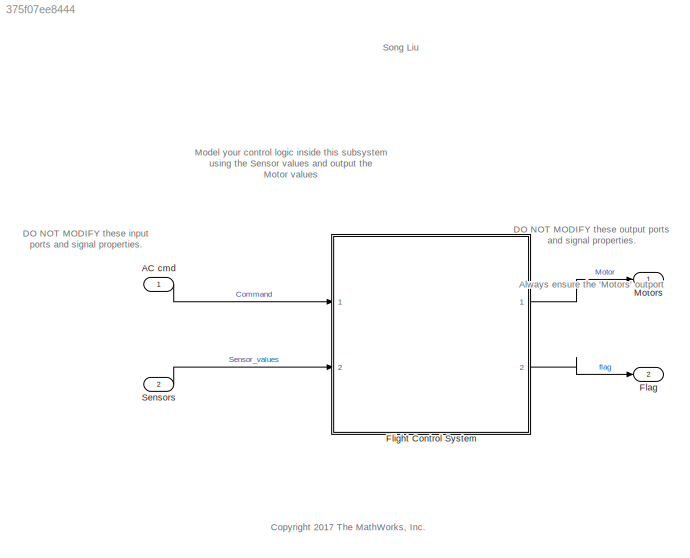
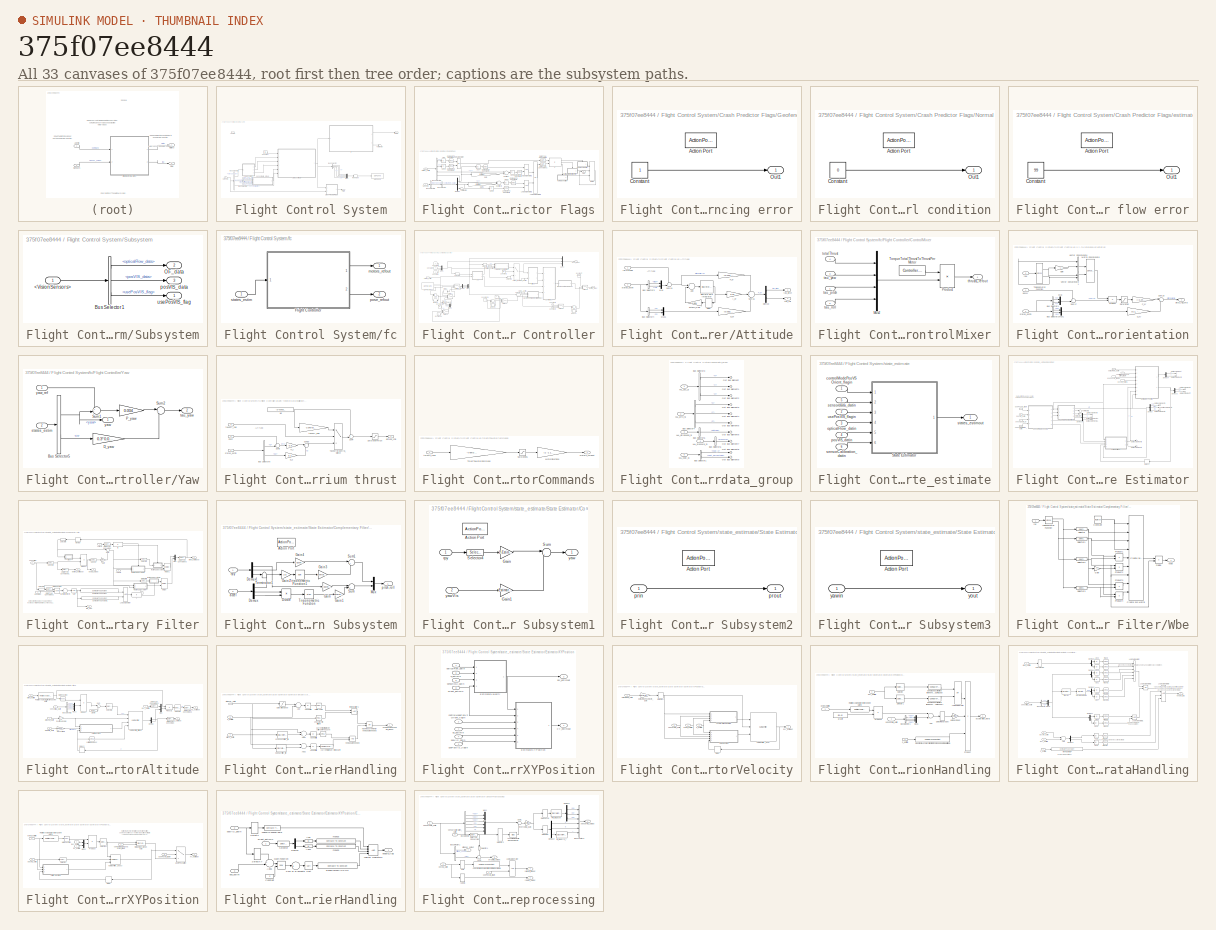
[diagram: thumbnail index - all 33 canvases of the model, root first then tree order]
MODEL slx_375f07ee8444
KIND model
CONFIG AbsTol = auto
CONFIG EnableMultiTasking = off
CONFIG FixedStep = Ts
CONFIG InitFcn = load('BusDefinitions.mat')
CONFIG MaxStep = auto
CONFIG MinStep = auto
CONFIG RelTol = 1e-3
CONFIG SampleTimeConstraint = Unconstrained
CONFIG Solver = FixedStepAuto
CONFIG SolverName = FixedStepAuto
CONFIG StartTime = 0.0
CONFIG StopTime = TFinal
BLOCK [Inport] AC cmd
  BusOutputAsStruct = on
  IconDisplay = Port number
  OutDataTypeStr = Bus: CommandBus
BLOCK [Outport] Flag
  IconDisplay = Port number
  OutDataTypeStr = uint8
  Port = 2
  PortDimensions = 1
BLOCK [SubSystem] Flight Control System
  Ports = [2, 2]
  RTWSystemCode = Reusable function
  RequestExecContextInheritance = off
BLOCK [Inport] Flight Control System/AC cmd
  IconDisplay = Port number
BLOCK [BusSelector] Flight Control System/Bus Selector
  OutputAsBus = off
  OutputSignals = X,Y,Z,yaw
  Ports = [1, 4]
BLOCK [BusSelector] Flight Control System/Bus Selector1
  OutputAsBus = off
  OutputSignals = VisionSensors,HALSensors,SensorCalibration
  Ports = [1, 3]
BLOCK [BusSelector] Flight Control System/Bus Selector2
  OutputAsBus = off
  OutputSignals = HAL_acc_SI,HAL_gyro_SI,HAL_ultrasound_SI,HAL_pressure_SI,HAL_vbat_SI
  Ports = [1, 5]
BLOCK [Constant] Flight Control System/Constant
  OutDataTypeStr = boolean
  Value = true
BLOCK [SubSystem] Flight Control System/Crash Predictor Flags
  Ports = [2, 1]
  RequestExecContextInheritance = off
BLOCK [Abs] Flight Control System/Crash Predictor Flags/Abs
  SaturateOnIntegerOverflow = off
BLOCK [Abs] Flight Control System/Crash Predictor Flags/Abs1
  SaturateOnIntegerOverflow = off
BLOCK [Abs] Flight Control System/Crash Predictor Flags/Abs2
  SaturateOnIntegerOverflow = off
BLOCK [Abs] Flight Control System/Crash Predictor Flags/Abs3
  SaturateOnIntegerOverflow = off
BLOCK [Abs] Flight Control System/Crash Predictor Flags/Abs4
  SaturateOnIntegerOverflow = off
BLOCK [Abs] Flight Control System/Crash Predictor Flags/Abs5
  SaturateOnIntegerOverflow = off
BLOCK [BusSelector] Flight Control System/Crash Predictor Flags/Bus Selector
  OutputAsBus = off
  OutputSignals = opticalFlow_data
  Ports = [1, 1]
BLOCK [BusSelector] Flight Control System/Crash Predictor Flags/Bus Selector1
  OutputAsBus = off
  OutputSignals = VisionSensors
  Ports = [1, 1]
BLOCK [BusSelector] Flight Control System/Crash Predictor Flags/Bus Selector4
  OutputAsBus = off
  OutputSignals = X,Y,dx,dy
  Ports = [1, 4]
BLOCK [Reference] Flight Control System/Crash Predictor Flags/Compare To Constant  REF=simulink/Logic and Bit
Operations/Compare
To Constant
  Ports = [1, 1]
  SourceBlock = simulink/Logic and Bit\nOperations/Compare\nTo Constant
  SourceProductBaseCode = SL
  SourceProductName = Simulink
  SourceType = Compare To Constant
BLOCK [Reference] Flight Control System/Crash Predictor Flags/Compare To Constant1  REF=simulink/Logic and Bit
Operations/Compare
To Constant
  Ports = [1, 1]
  SourceBlock = simulink/Logic and Bit\nOperations/Compare\nTo Constant
  SourceProductBaseCode = SL
  SourceProductName = Simulink
  SourceType = Compare To Constant
BLOCK [Reference] Flight Control System/Crash Predictor Flags/Compare To Constant2  REF=simulink/Logic and Bit
Operations/Compare
To Constant
  Ports = [1, 1]
  SourceBlock = simulink/Logic and Bit\nOperations/Compare\nTo Constant
  SourceProductBaseCode = SL
  SourceProductName = Simulink
  SourceType = Compare To Constant
BLOCK [Reference] Flight Control System/Crash Predictor Flags/Compare To Constant3  REF=simulink/Logic and Bit
Operations/Compare
To Constant
  Ports = [1, 1]
  SourceBlock = simulink/Logic and Bit\nOperations/Compare\nTo Constant
  SourceProductBaseCode = SL
  SourceProductName = Simulink
  SourceType = Compare To Constant
BLOCK [Reference] Flight Control System/Crash Predictor Flags/Compare To Constant4  REF=simulink/Logic and Bit
Operations/Compare
To Constant
  Ports = [1, 1]
  SourceBlock = simulink/Logic and Bit\nOperations/Compare\nTo Constant
  SourceProductBaseCode = SL
  SourceProductName = Simulink
  SourceType = Compare To Constant
BLOCK [Reference] Flight Control System/Crash Predictor Flags/Compare To Constant5  REF=simulink/Logic and Bit
Operations/Compare
To Constant
  Ports = [1, 1]
  SourceBlock = simulink/Logic and Bit\nOperations/Compare\nTo Constant
  SourceProductBaseCode = SL
  SourceProductName = Simulink
  SourceType = Compare To Constant
BLOCK [DataTypeConversion] Flight Control System/Crash Predictor Flags/Data Type Conversion
  OutDataTypeStr = uint8
  RndMeth = Nearest
  SaturateOnIntegerOverflow = off
BLOCK [DataTypeConversion] Flight Control System/Crash Predictor Flags/Data Type Conversion1
  OutDataTypeStr = uint8
  RndMeth = Nearest
  SaturateOnIntegerOverflow = off
BLOCK [Demux] Flight Control System/Crash Predictor Flags/Demux
  DisplayOption = bar
  Outputs = 3
  Ports = [1, 3]
BLOCK [Outport] Flight Control System/Crash Predictor Flags/Flag
  IconDisplay = Port number
BLOCK [Gain] Flight Control System/Crash Predictor Flags/Gain
  Gain = Estimator.pos.visDeltaXYMax
  OutDataTypeStr = Inherit: Inherit via internal rule
  ParamDataTypeStr = Inherit: Inherit via internal rule
  SaturateOnIntegerOverflow = off
BLOCK [Gain] Flight Control System/Crash Predictor Flags/Gain1
  Gain = Estimator.pos.visDeltaXYMax
  OutDataTypeStr = Inherit: Inherit via internal rule
  ParamDataTypeStr = Inherit: Inherit via internal rule
  SaturateOnIntegerOverflow = off
BLOCK [SubSystem] Flight Control System/Crash Predictor Flags/Geofencing error
  Ports = [0, 1, 0, 0, 0, 0, 0, 1]
  RequestExecContextInheritance = off
  TreatAsAtomicUnit = on
BLOCK [ActionPort] Flight Control System/Crash Predictor Flags/Geofencing error/Action Port
  ActionType = then
BLOCK [Constant] Flight Control System/Crash Predictor Flags/Geofencing error/Constant
  OutDataTypeStr = uint8
BLOCK [Outport] Flight Control System/Crash Predictor Flags/Geofencing error/Out1
  IconDisplay = Port number
BLOCK [If] Flight Control System/Crash Predictor Flags/If
  ElseIfExpressions = u2 > 0
  NumInputs = 2
  Ports = [2, 3]
BLOCK [Logic] Flight Control System/Crash Predictor Flags/Logical Operator
  AllPortsSameDT = off
  Operator = OR
  Ports = [2, 1]
BLOCK [Logic] Flight Control System/Crash Predictor Flags/Logical Operator1
  AllPortsSameDT = off
  OutDataTypeStr = boolean
  Ports = [2, 1]
BLOCK [Logic] Flight Control System/Crash Predictor Flags/Logical Operator2
  AllPortsSameDT = off
  OutDataTypeStr = boolean
  Ports = [2, 1]
BLOCK [Logic] Flight Control System/Crash Predictor Flags/Logical Operator3
  AllPortsSameDT = off
  Operator = OR
  Ports = [2, 1]
BLOCK [Merge] Flight Control System/Crash Predictor Flags/Merge
  InitialOutput = 0
  Inputs = 3
  Ports = [3, 1]
BLOCK [SubSystem] Flight Control System/Crash Predictor Flags/Normal condition
  Ports = [0, 1, 0, 0, 0, 0, 0, 1]
  RequestExecContextInheritance = off
  TreatAsAtomicUnit = on
BLOCK [ActionPort] Flight Control System/Crash Predictor Flags/Normal condition/Action Port
  ActionType = else
BLOCK [Constant] Flight Control System/Crash Predictor Flags/Normal condition/Constant
  OutDataTypeStr = uint8
  Value = 0
BLOCK [Outport] Flight Control System/Crash Predictor Flags/Normal condition/Out1
  IconDisplay = Port number
BLOCK [Inport] Flight Control System/Crash Predictor Flags/Sensors
  IconDisplay = Port number
  Port = 2
BLOCK [Sum] Flight Control System/Crash Predictor Flags/Subtract
  InputSameDT = off
  Inputs = -+
  OutDataTypeStr = Inherit: Inherit via internal rule
  Ports = [2, 1]
  SaturateOnIntegerOverflow = off
BLOCK [Sum] Flight Control System/Crash Predictor Flags/Subtract1
  InputSameDT = off
  Inputs = -+
  OutDataTypeStr = Inherit: Inherit via internal rule
  Ports = [2, 1]
  SaturateOnIntegerOverflow = off
BLOCK [Terminator] Flight Control System/Crash Predictor Flags/Terminator
BLOCK [SubSystem] Flight Control System/Crash Predictor Flags/estimator//Optical flow error
  Ports = [0, 1, 0, 0, 0, 0, 0, 1]
  RequestExecContextInheritance = off
  TreatAsAtomicUnit = on
BLOCK [ActionPort] Flight Control System/Crash Predictor Flags/estimator//Optical flow error/Action Port
  ActionType = elseif
BLOCK [Constant] Flight Control System/Crash Predictor Flags/estimator//Optical flow error/Constant
  OutDataTypeStr = uint8
  Value = 99
BLOCK [Outport] Flight Control System/Crash Predictor Flags/estimator//Optical flow error/Out1
  IconDisplay = Port number
BLOCK [Inport] Flight Control System/Crash Predictor Flags/states_estim
  IconDisplay = Port number
BLOCK [Outport] Flight Control System/Flag
  IconDisplay = Port number
  Port = 2
BLOCK [Outport] Flight Control System/Motors
  IconDisplay = Port number
BLOCK [Mux] Flight Control System/Mux
  DisplayOption = bar
  Ports = [4, 1]
BLOCK [Reshape] Flight Control System/Reshape
  OutputDimensionality = Column vector (2-D)
  Ports = [1, 1]
BLOCK [Inport] Flight Control System/Sensors
  IconDisplay = Port number
  Port = 2
BLOCK [SubSystem] Flight Control System/Subsystem
  Ports = [1, 3]
  RequestExecContextInheritance = off
BLOCK [Inport] Flight Control System/Subsystem/<VisionSensors>
  IconDisplay = Port number
BLOCK [BusSelector] Flight Control System/Subsystem/Bus Selector1
  OutputAsBus = off
  OutputSignals = opticalFlow_data,posVIS_data,usePosVIS_flag
  Ports = [1, 3]
BLOCK [Outport] Flight Control System/Subsystem/OF_data
  IconDisplay = Port number
  Port = 2
BLOCK [Outport] Flight Control System/Subsystem/posVIS_data
  IconDisplay = Port number
  Port = 3
BLOCK [Outport] Flight Control System/Subsystem/usePosVIS_flag
  IconDisplay = Port number
BLOCK [Terminator] Flight Control System/Terminator
BLOCK [Reference] Flight Control System/UDP Send  REF=dspnetwork/UDP Send
  Ports = [1]
  SourceBlock = dspnetwork/UDP Send
  SourceProductBaseCode = DS
  SourceProductName = DSP System Toolbox
  SourceType = UDP Send
BLOCK [SubSystem] Flight Control System/fc
  Ports = [1, 2]
  RequestExecContextInheritance = off
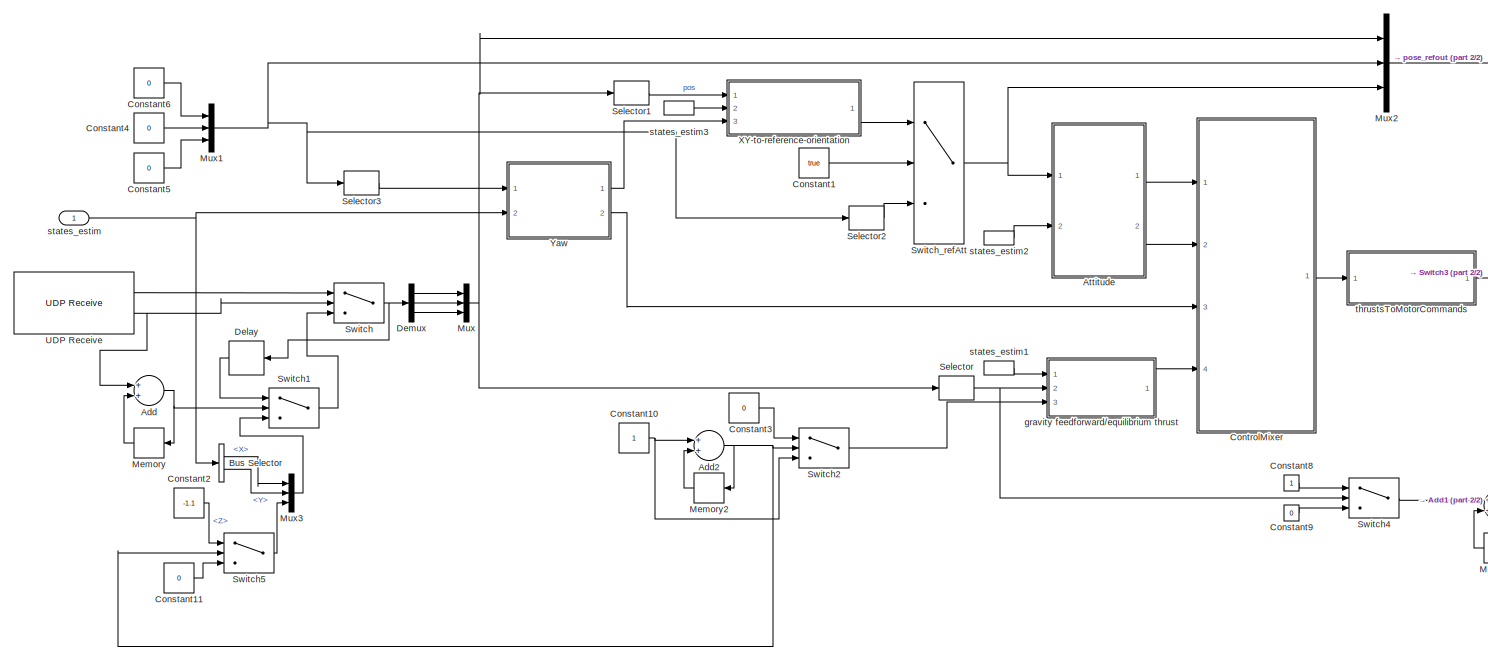
[diagram: Flight Control System/fc/Flight Controller - part 1/2, most of the canvas]
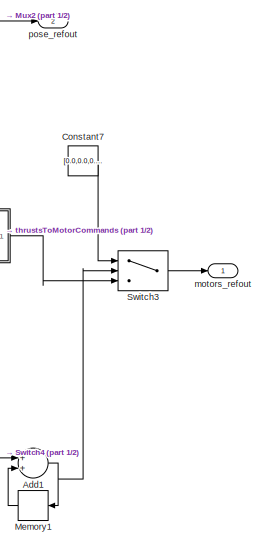
[diagram: Flight Control System/fc/Flight Controller - part 2/2, right side, full height]
BLOCK [SubSystem] Flight Control System/fc/Flight Controller
  Ports = [1, 2]
  RequestExecContextInheritance = off
BLOCK [Sum] Flight Control System/fc/Flight Controller/Add
  InputSameDT = off
  OutDataTypeStr = Inherit: Inherit via internal rule
  Ports = [2, 1]
  SaturateOnIntegerOverflow = off
BLOCK [Sum] Flight Control System/fc/Flight Controller/Add1
  InputSameDT = off
  OutDataTypeStr = Inherit: Inherit via internal rule
  Ports = [2, 1]
  SaturateOnIntegerOverflow = off
BLOCK [Sum] Flight Control System/fc/Flight Controller/Add2
  InputSameDT = off
  OutDataTypeStr = Inherit: Inherit via internal rule
  Ports = [2, 1]
  SaturateOnIntegerOverflow = off
BLOCK [SubSystem] Flight Control System/fc/Flight Controller/Attitude
  Ports = [2, 2]
  RequestExecContextInheritance = off
BLOCK [Sum] Flight Control System/fc/Flight Controller/Attitude/Add
  InputSameDT = off
  Inputs = +-
  OutDataTypeStr = Inherit: Inherit via internal rule
  Ports = [2, 1]
  SaturateOnIntegerOverflow = off
BLOCK [BusSelector] Flight Control System/fc/Flight Controller/Attitude/Bus Selector3
  OutputAsBus = off
  OutputSignals = pitch,roll
  Ports = [1, 2]
BLOCK [BusSelector] Flight Control System/fc/Flight Controller/Attitude/Bus Selector4
  OutputAsBus = off
  OutputSignals = q,p
  Ports = [1, 2]
BLOCK [Gain] Flight Control System/fc/Flight Controller/Attitude/D_pr
  Gain = [0.002;0.003]
  OutDataTypeStr = Inherit: Inherit via internal rule
  ParamDataTypeStr = Inherit: Inherit via internal rule
  SaturateOnIntegerOverflow = off
BLOCK [Delay] Flight Control System/fc/Flight Controller/Attitude/Delay
  DelayLength = 1
  InitialCondition = 0
  InputPortMap = u0
  Ports = [1, 1]
BLOCK [Demux] Flight Control System/fc/Flight Controller/Attitude/Demux
  DisplayOption = bar
  Outputs = 2
  Ports = [1, 2]
BLOCK [DiscreteIntegrator] Flight Control System/fc/Flight Controller/Attitude/Discrete-Time Integrator
  ICPrevOutput = DiscIntNeverNeededParam
  ICPrevScaledInput = DiscIntNeverNeededParam
  InitialConditionSetting = Auto
  LimitOutput = on
  LowerSaturationLimit = -2
  Ports = [1, 1]
  SampleTime = Ts
  UpperSaturationLimit = 2
BLOCK [Gain] Flight Control System/fc/Flight Controller/Attitude/I_pr
  Gain = 0.01
  OutDataTypeStr = Inherit: Inherit via internal rule
  ParamDataTypeStr = Inherit: Inherit via internal rule
  SaturateOnIntegerOverflow = off
BLOCK [Mux] Flight Control System/fc/Flight Controller/Attitude/Mux
  DisplayOption = bar
  Inputs = 2
  Ports = [2, 1]
BLOCK [Mux] Flight Control System/fc/Flight Controller/Attitude/Mux1
  DisplayOption = bar
  Inputs = 2
  Ports = [2, 1]
BLOCK [Gain] Flight Control System/fc/Flight Controller/Attitude/P_pr
  Gain = [0.013;0.02]
  OutDataTypeStr = Inherit: Inherit via internal rule
  ParamDataTypeStr = Inherit: Inherit via internal rule
  SaturateOnIntegerOverflow = off
BLOCK [Sum] Flight Control System/fc/Flight Controller/Attitude/Sum16
  AccumDataTypeStr = single
  IconShape = round
  InputSameDT = off
  Inputs = ++-
  OutDataTypeStr = single
  Ports = [3, 1]
BLOCK [Sum] Flight Control System/fc/Flight Controller/Attitude/Sum19
  IconShape = round
  InputSameDT = off
  Inputs = +-|
  OutDataTypeStr = Inherit: Inherit via internal rule
  Ports = [2, 1]
  SaturateOnIntegerOverflow = off
BLOCK [Gain] Flight Control System/fc/Flight Controller/Attitude/antiWU_Gain
  Gain = 0.001
  OutDataTypeStr = Inherit: Inherit via internal rule
  ParamDataTypeStr = Inherit: Inherit via internal rule
  SaturateOnIntegerOverflow = off
BLOCK [Inport] Flight Control System/fc/Flight Controller/Attitude/refAttitude
  IconDisplay = Port number
BLOCK [Inport] Flight Control System/fc/Flight Controller/Attitude/states_estim
  IconDisplay = Port number
  Port = 2
BLOCK [Outport] Flight Control System/fc/Flight Controller/Attitude/tau_pitch
  IconDisplay = Port number
BLOCK [Outport] Flight Control System/fc/Flight Controller/Attitude/tau_roll
  IconDisplay = Port number
  Port = 2
BLOCK [BusSelector] Flight Control System/fc/Flight Controller/Bus Selector
  OutputAsBus = off
  OutputSignals = X,Y
  Ports = [1, 2]
BLOCK [Constant] Flight Control System/fc/Flight Controller/Constant1
  OutDataTypeStr = boolean
  Value = true
BLOCK [Constant] Flight Control System/fc/Flight Controller/Constant10
  OutDataTypeStr = single
BLOCK [Constant] Flight Control System/fc/Flight Controller/Constant11
  OutDataTypeStr = boolean
  Value = 0
BLOCK [Constant] Flight Control System/fc/Flight Controller/Constant2
  OutDataTypeStr = single
  Value = -1.1
BLOCK [Constant] Flight Control System/fc/Flight Controller/Constant3
  OutDataTypeStr = boolean
  Value = 0
BLOCK [Constant] Flight Control System/fc/Flight Controller/Constant4
  OutDataTypeStr = single
  Value = 0
BLOCK [Constant] Flight Control System/fc/Flight Controller/Constant5
  OutDataTypeStr = single
  Value = 0
BLOCK [Constant] Flight Control System/fc/Flight Controller/Constant6
  OutDataTypeStr = single
  Value = 0
BLOCK [Constant] Flight Control System/fc/Flight Controller/Constant7
  OutDataTypeStr = single
  Value = [0.0,0.0,0.0,0.0]
BLOCK [Constant] Flight Control System/fc/Flight Controller/Constant8
  OutDataTypeStr = single
BLOCK [Constant] Flight Control System/fc/Flight Controller/Constant9
  OutDataTypeStr = single
  Value = 0
BLOCK [SubSystem] Flight Control System/fc/Flight Controller/ControlMixer
  Ports = [4, 1]
  RequestExecContextInheritance = off
BLOCK [Mux] Flight Control System/fc/Flight Controller/ControlMixer/Mux2
  DisplayOption = bar
  Ports = [4, 1]
BLOCK [Product] Flight Control System/fc/Flight Controller/ControlMixer/Product
  InputSameDT = off
  Multiplication = Matrix(*)
  OutDataTypeStr = Inherit: Inherit via internal rule
  Ports = [2, 1]
  SaturateOnIntegerOverflow = off
BLOCK [Constant] Flight Control System/fc/Flight Controller/ControlMixer/TorqueTotalThrustToThrustPerMotor
  OutDataTypeStr = single
  Value = Controller.Q2Ts
BLOCK [Inport] Flight Control System/fc/Flight Controller/ControlMixer/tau_pitch
  IconDisplay = Port number
BLOCK [Inport] Flight Control System/fc/Flight Controller/ControlMixer/tau_roll
  IconDisplay = Port number
  Port = 2
BLOCK [Inport] Flight Control System/fc/Flight Controller/ControlMixer/tau_yaw
  IconDisplay = Port number
  Port = 3
BLOCK [Outport] Flight Control System/fc/Flight Controller/ControlMixer/thrusts_refout
  IconDisplay = Port number
BLOCK [Inport] Flight Control System/fc/Flight Controller/ControlMixer/totalThrust
  IconDisplay = Port number
  Port = 4
BLOCK [Delay] Flight Control System/fc/Flight Controller/Delay
  DelayLength = 1
  InitialCondition = 0
  InputPortMap = u0
  Ports = [1, 1]
BLOCK [Demux] Flight Control System/fc/Flight Controller/Demux
  DisplayOption = bar
  Outputs = 3
  Ports = [1, 3]
BLOCK [Memory] Flight Control System/fc/Flight Controller/Memory
BLOCK [Memory] Flight Control System/fc/Flight Controller/Memory1
BLOCK [Memory] Flight Control System/fc/Flight Controller/Memory2
BLOCK [Mux] Flight Control System/fc/Flight Controller/Mux
  DisplayOption = bar
  Inputs = 3
  Ports = [3, 1]
BLOCK [Mux] Flight Control System/fc/Flight Controller/Mux1
  DisplayOption = bar
  Inputs = 3
  Ports = [3, 1]
BLOCK [Mux] Flight Control System/fc/Flight Controller/Mux2
  DisplayOption = bar
  Inputs = 3
  Ports = [3, 1]
BLOCK [Mux] Flight Control System/fc/Flight Controller/Mux3
  DisplayOption = bar
  Inputs = 3
  Ports = [3, 1]
BLOCK [Selector] Flight Control System/fc/Flight Controller/Selector
  IndexOptions = Index vector (dialog)
  Indices = 3
  InputPortWidth = 3
  OutputSizes = 1
  Ports = [1, 1]
BLOCK [Selector] Flight Control System/fc/Flight Controller/Selector1
  IndexOptions = Index vector (dialog)
  Indices = [1 2]
  InputPortWidth = 3
  OutputSizes = 1
  Ports = [1, 1]
BLOCK [Selector] Flight Control System/fc/Flight Controller/Selector2
  IndexOptions = Index vector (dialog)
  Indices = [2 3]
  InputPortWidth = 3
  OutputSizes = 1
  Ports = [1, 1]
BLOCK [Selector] Flight Control System/fc/Flight Controller/Selector3
  IndexOptions = Index vector (dialog)
  Indices = 1
  InputPortWidth = 3
  OutputSizes = 1
  Ports = [1, 1]
BLOCK [Switch] Flight Control System/fc/Flight Controller/Switch
  Criteria = u2 > Threshold
  InputSameDT = off
  OutDataTypeStr = single
  SaturateOnIntegerOverflow = off
  Threshold = 1
BLOCK [Switch] Flight Control System/fc/Flight Controller/Switch1
  Criteria = u2 > Threshold
  InputSameDT = off
  OutDataTypeStr = single
  SaturateOnIntegerOverflow = off
  Threshold = 1
BLOCK [Switch] Flight Control System/fc/Flight Controller/Switch2
  Criteria = u2 > Threshold
  InputSameDT = off
  OutDataTypeStr = single
  SaturateOnIntegerOverflow = off
  Threshold = 210
BLOCK [Switch] Flight Control System/fc/Flight Controller/Switch3
  Criteria = u2 > Threshold
  InputSameDT = off
  OutDataTypeStr = single
  SaturateOnIntegerOverflow = off
  Threshold = 0.5
BLOCK [Switch] Flight Control System/fc/Flight Controller/Switch4
  Criteria = u2 > Threshold
  InputSameDT = off
  OutDataTypeStr = single
  SaturateOnIntegerOverflow = off
  Threshold = 0.5
BLOCK [Switch] Flight Control System/fc/Flight Controller/Switch5
  Criteria = u2 > Threshold
  InputSameDT = off
  OutDataTypeStr = single
  SaturateOnIntegerOverflow = off
  Threshold = 210
BLOCK [Switch] Flight Control System/fc/Flight Controller/Switch_refAtt
  Criteria = u2 > Threshold
  InputSameDT = off
  SaturateOnIntegerOverflow = off
BLOCK [Reference] Flight Control System/fc/Flight Controller/UDP Receive  REF=parrotlib/UDP Receive
  Ports = [0, 2]
  SourceBlock = parrotlib/UDP Receive
  SourceProductBaseCode = MINIDRONES
  SourceProductName = Simulink Support Package for PARROT Minidrones
  SourceType = UDP Receive
BLOCK [SubSystem] Flight Control System/fc/Flight Controller/XY-to-reference-orientation
  Ports = [3, 1]
  RequestExecContextInheritance = off
BLOCK [BusSelector] Flight Control System/fc/Flight Controller/XY-to-reference-orientation/Bus Selector1
  OutputAsBus = off
  OutputSignals = X,Y
  Ports = [1, 2]
BLOCK [BusSelector] Flight Control System/fc/Flight Controller/XY-to-reference-orientation/Bus Selector2
  OutputAsBus = off
  OutputSignals = dx,dy
  Ports = [1, 2]
BLOCK [Gain] Flight Control System/fc/Flight Controller/XY-to-reference-orientation/D_xy
  Gain = [0.1, -0.1]
  OutDataTypeStr = single
  ParamDataTypeStr = single
BLOCK [Gain] Flight Control System/fc/Flight Controller/XY-to-reference-orientation/Gain
  Gain = -1
  OutDataTypeStr = Inherit: Inherit via internal rule
  ParamDataTypeStr = Inherit: Inherit via internal rule
  SaturateOnIntegerOverflow = off
BLOCK [Concatenate] Flight Control System/fc/Flight Controller/XY-to-reference-orientation/Matrix Concatenate
  ConcatenateDimension = 2
  Mode = Multidimensional array
  Ports = [2, 1]
BLOCK [Mux] Flight Control System/fc/Flight Controller/XY-to-reference-orientation/Mux
  DisplayOption = bar
  Inputs = 2
  Ports = [2, 1]
BLOCK [Mux] Flight Control System/fc/Flight Controller/XY-to-reference-orientation/Mux1
  DisplayOption = bar
  Inputs = 2
  Ports = [2, 1]
BLOCK [Gain] Flight Control System/fc/Flight Controller/XY-to-reference-orientation/P_xy
  Gain = [-0.24,0.24]
  OutDataTypeStr = single
  ParamDataTypeStr = single
BLOCK [Product] Flight Control System/fc/Flight Controller/XY-to-reference-orientation/Product
  InputSameDT = off
  Multiplication = Matrix(*)
  OutDataTypeStr = single
  Ports = [2, 1]
  SaturateOnIntegerOverflow = off
BLOCK [Saturate] Flight Control System/fc/Flight Controller/XY-to-reference-orientation/Saturation
  InputPortMap = u0
  LowerLimit = -3
  OutDataTypeStr = single
  Ports = [1, 1]
  UpperLimit = 3
BLOCK [Sum] Flight Control System/fc/Flight Controller/XY-to-reference-orientation/Sum17
  AccumDataTypeStr = single
  IconShape = round
  InputSameDT = off
  Inputs = +-|
  OutDataTypeStr = Inherit: Inherit via internal rule
  Ports = [2, 1]
  SaturateOnIntegerOverflow = off
BLOCK [Sum] Flight Control System/fc/Flight Controller/XY-to-reference-orientation/Sum18
  AccumDataTypeStr = single
  IconShape = round
  InputSameDT = off
  Inputs = |++
  OutDataTypeStr = single
  Ports = [2, 1]
BLOCK [Trigonometry] Flight Control System/fc/Flight Controller/XY-to-reference-orientation/Trigonometric Function
  Operator = sincos
  Ports = [1, 2]
BLOCK [Concatenate] Flight Control System/fc/Flight Controller/XY-to-reference-orientation/Vector Concatenate
  Ports = [2, 1]
BLOCK [Concatenate] Flight Control System/fc/Flight Controller/XY-to-reference-orientation/Vector Concatenate1
  Ports = [2, 1]
BLOCK [Outport] Flight Control System/fc/Flight Controller/XY-to-reference-orientation/pitch_roll_cmd
  IconDisplay = Port number
BLOCK [Inport] Flight Control System/fc/Flight Controller/XY-to-reference-orientation/posXY
  IconDisplay = Port number
BLOCK [Inport] Flight Control System/fc/Flight Controller/XY-to-reference-orientation/states_estim
  IconDisplay = Port number
  Port = 2
BLOCK [Inport] Flight Control System/fc/Flight Controller/XY-to-reference-orientation/yaw
  IconDisplay = Port number
  Port = 3
BLOCK [SubSystem] Flight Control System/fc/Flight Controller/Yaw
  Ports = [2, 2]
  RequestExecContextInheritance = off
BLOCK [BusSelector] Flight Control System/fc/Flight Controller/Yaw/Bus Selector5
  OutputAsBus = off
  OutputSignals = yaw,r
  Ports = [1, 2]
BLOCK [Gain] Flight Control System/fc/Flight Controller/Yaw/D_yaw
  Gain = 0.3*0.004
  OutDataTypeStr = Inherit: Inherit via internal rule
  ParamDataTypeStr = Inherit: Inherit via internal rule
  SaturateOnIntegerOverflow = off
BLOCK [Gain] Flight Control System/fc/Flight Controller/Yaw/P_yaw
  Gain = 0.004
  OutDataTypeStr = single
  ParamDataTypeStr = single
  SaturateOnIntegerOverflow = off
BLOCK [Sum] Flight Control System/fc/Flight Controller/Yaw/Sum1
  AccumDataTypeStr = single
  IconShape = round
  InputSameDT = off
  Inputs = +-|
  OutDataTypeStr = single
  Ports = [2, 1]
BLOCK [Sum] Flight Control System/fc/Flight Controller/Yaw/Sum2
  IconShape = round
  InputSameDT = off
  Inputs = |+-
  OutDataTypeStr = Inherit: Inherit via internal rule
  Ports = [2, 1]
  SaturateOnIntegerOverflow = off
BLOCK [Inport] Flight Control System/fc/Flight Controller/Yaw/states_estim
  IconDisplay = Port number
  Port = 2
BLOCK [Outport] Flight Control System/fc/Flight Controller/Yaw/tau_yaw
  IconDisplay = Port number
  Port = 2
BLOCK [Outport] Flight Control System/fc/Flight Controller/Yaw/yaw
  IconDisplay = Port number
BLOCK [Inport] Flight Control System/fc/Flight Controller/Yaw/yaw_ref
  IconDisplay = Port number
BLOCK [SubSystem] Flight Control System/fc/Flight Controller/gravity feedforward//equilibrium thrust
  Ports = [3, 1]
  RequestExecContextInheritance = off
BLOCK [BusSelector] Flight Control System/fc/Flight Controller/gravity feedforward//equilibrium thrust/Bus Selector6
  OutputAsBus = off
  OutputSignals = Z,dz
  Ports = [1, 2]
BLOCK [Gain] Flight Control System/fc/Flight Controller/gravity feedforward//equilibrium thrust/D_z
  Gain = 0.3
  OutDataTypeStr = single
  ParamDataTypeStr = single
BLOCK [Gain] Flight Control System/fc/Flight Controller/gravity feedforward//equilibrium thrust/P_z
  Gain = 0.8
  OutDataTypeStr = single
  ParamDataTypeStr = single
BLOCK [Inport] Flight Control System/fc/Flight Controller/gravity feedforward//equilibrium thrust/PosZ
  IconDisplay = Port number
  Port = 2
BLOCK [Saturate] Flight Control System/fc/Flight Controller/gravity feedforward//equilibrium thrust/SaturationThrust
  InputPortMap = u0
  LowerLimit = -4*Controller.totalThrustMaxRelative*Controller.motorsThrustPerMotorMax
  OutDataTypeStr = single
  Ports = [1, 1]
  UpperLimit = 4*Controller.totalThrustMaxRelative*Controller.motorsThrustPerMotorMax
BLOCK [Sum] Flight Control System/fc/Flight Controller/gravity feedforward//equilibrium thrust/Sum15
  AccumDataTypeStr = single
  IconShape = round
  InputSameDT = off
  Inputs = |+-
  OutDataTypeStr = single
  Ports = [2, 1]
BLOCK [Sum] Flight Control System/fc/Flight Controller/gravity feedforward//equilibrium thrust/Sum3
  AccumDataTypeStr = single
  IconShape = round
  InputSameDT = off
  Inputs = +-|
  OutDataTypeStr = single
  Ports = [2, 1]
BLOCK [Sum] Flight Control System/fc/Flight Controller/gravity feedforward//equilibrium thrust/Sum4
  AccumDataTypeStr = single
  IconShape = round
  InputSameDT = off
  Inputs = ++|
  OutDataTypeStr = single
  Ports = [2, 1]
BLOCK [Switch] Flight Control System/fc/Flight Controller/gravity feedforward//equilibrium thrust/TakeoffOrControl_Switch
  Criteria = u2 > Threshold
  InputSameDT = off
  SaturateOnIntegerOverflow = off
BLOCK [Outport] Flight Control System/fc/Flight Controller/gravity feedforward//equilibrium thrust/altitude_cmd
  IconDisplay = Port number
BLOCK [Inport] Flight Control System/fc/Flight Controller/gravity feedforward//equilibrium thrust/states_estim
  IconDisplay = Port number
BLOCK [Inport] Flight Control System/fc/Flight Controller/gravity feedforward//equilibrium thrust/takeoff_flag
  IconDisplay = Port number
  Port = 3
BLOCK [Gain] Flight Control System/fc/Flight Controller/gravity feedforward//equilibrium thrust/takeoff_gain
  Gain = Controller.takeoffGain
  OutDataTypeStr = single
  ParamDataTypeStr = single
BLOCK [Constant] Flight Control System/fc/Flight Controller/gravity feedforward//equilibrium thrust/w0
  OutDataTypeStr = single
  SampleTime = Ts
  Value = -g*Vehicle.Airframe.mass
BLOCK [Outport] Flight Control System/fc/Flight Controller/motors_refout
  IconDisplay = Port number
BLOCK [Outport] Flight Control System/fc/Flight Controller/pose_refout
  IconDisplay = Port number
  Port = 2
BLOCK [Inport] Flight Control System/fc/Flight Controller/states_estim
  IconDisplay = Port number
BLOCK [InportShadow] Flight Control System/fc/Flight Controller/states_estim1
  IconDisplay = Port number
BLOCK [InportShadow] Flight Control System/fc/Flight Controller/states_estim2
  IconDisplay = Port number
BLOCK [InportShadow] Flight Control System/fc/Flight Controller/states_estim3
  IconDisplay = Port number
BLOCK [SubSystem] Flight Control System/fc/Flight Controller/thrustsToMotorCommands
  Ports = [1, 1]
  RequestExecContextInheritance = off
BLOCK [Gain] Flight Control System/fc/Flight Controller/thrustsToMotorCommands/MotorDirections
  Gain = [1 -1 1 -1]
  OutDataTypeStr = Inherit: Inherit via internal rule
  ParamDataTypeStr = Inherit: Inherit via internal rule
  SaturateOnIntegerOverflow = off
BLOCK [Saturate] Flight Control System/fc/Flight Controller/thrustsToMotorCommands/Saturation5
  InputPortMap = u0
  LowerLimit = Vehicle.Motor.minLimit
  Ports = [1, 1]
  UpperLimit = Vehicle.Motor.maxLimit
BLOCK [Gain] Flight Control System/fc/Flight Controller/thrustsToMotorCommands/ThrustToMotorCommand
  Gain = -Vehicle.Motor.thrustToMotorCommand
  OutDataTypeStr = Inherit: Inherit via internal rule
  ParamDataTypeStr = Inherit: Inherit via internal rule
  SaturateOnIntegerOverflow = off
BLOCK [Outport] Flight Control System/fc/Flight Controller/thrustsToMotorCommands/motors_cmdout
  IconDisplay = Port number
BLOCK [Inport] Flight Control System/fc/Flight Controller/thrustsToMotorCommands/thrusts_refin
  IconDisplay = Port number
BLOCK [Outport] Flight Control System/fc/motors_refout
  IconDisplay = Port number
BLOCK [Outport] Flight Control System/fc/pose_refout
  IconDisplay = Port number
  Port = 2
BLOCK [Inport] Flight Control System/fc/states_estim
  BusOutputAsStruct = on
  IconDisplay = Port number
  OutDataTypeStr = Bus: statesEstim_t
BLOCK [SubSystem] Flight Control System/sensordata_group
  Ports = [5, 1]
  RequestExecContextInheritance = off
BLOCK [BusSelector] Flight Control System/sensordata_group/Bus Selector1
  OutputAsBus = off
  OutputSignals = vbat_V,vbat_percentage
  Ports = [1, 2]
BLOCK [BusSelector] Flight Control System/sensordata_group/Bus Selector3
  OutputAsBus = off
  OutputSignals = x,y,z
  Ports = [1, 3]
BLOCK [BusSelector] Flight Control System/sensordata_group/Bus Selector4
  OutputAsBus = off
  OutputSignals = x,y,z
  Ports = [1, 3]
BLOCK [BusSelector] Flight Control System/sensordata_group/Bus Selector5
  OutputAsBus = off
  OutputSignals = altitude
  Ports = [1, 1]
BLOCK [BusSelector] Flight Control System/sensordata_group/Bus Selector6
  OutputAsBus = off
  OutputSignals = pressure
  Ports = [1, 1]
BLOCK [Inport] Flight Control System/sensordata_group/HAL_acc_SI
  IconDisplay = Port number
  OutDataTypeStr = Bus: HAL_acc_SI_t
BLOCK [Inport] Flight Control System/sensordata_group/HAL_gyro_SI
  IconDisplay = Port number
  OutDataTypeStr = Bus: HAL_gyro_SI_t
  Port = 2
BLOCK [Inport] Flight Control System/sensordata_group/HAL_pressure_SI
  IconDisplay = Port number
  OutDataTypeStr = Bus: HAL_pressure_SI_t
  Port = 4
BLOCK [Inport] Flight Control System/sensordata_group/HAL_ultrasound_SI
  IconDisplay = Port number
  OutDataTypeStr = Bus: HAL_ultrasound_SI_t
  Port = 3
BLOCK [Inport] Flight Control System/sensordata_group/HAL_vbat_SI
  IconDisplay = Port number
  OutDataTypeStr = Bus: HAL_vbat_SI_t
  Port = 5
BLOCK [Outport] Flight Control System/sensordata_group/Out Bus Element
  IconDisplay = Port number
BLOCK [Outport] Flight Control System/sensordata_group/Out Bus Element1
  IconDisplay = Port number
BLOCK [Outport] Flight Control System/sensordata_group/Out Bus Element2
  IconDisplay = Port number
BLOCK [Outport] Flight Control System/sensordata_group/Out Bus Element3
  IconDisplay = Port number
BLOCK [Outport] Flight Control System/sensordata_group/Out Bus Element4
  IconDisplay = Port number
BLOCK [Outport] Flight Control System/sensordata_group/Out Bus Element5
  IconDisplay = Port number
BLOCK [Outport] Flight Control System/sensordata_group/Out Bus Element6
  IconDisplay = Port number
BLOCK [Outport] Flight Control System/sensordata_group/Out Bus Element7
  IconDisplay = Port number
BLOCK [Outport] Flight Control System/sensordata_group/Out Bus Element8
  IconDisplay = Port number
BLOCK [Outport] Flight Control System/sensordata_group/Out Bus Element9
  IconDisplay = Port number
BLOCK [SubSystem] Flight Control System/state_estimate
  Ports = [6, 1]
  RequestExecContextInheritance = off
BLOCK [SubSystem] Flight Control System/state_estimate/State Estimator
  Ports = [6, 1]
  RequestExecContextInheritance = off
BLOCK [SubSystem] Flight Control System/state_estimate/State Estimator/Complementary Filter
  Ports = [3, 4]
  RequestExecContextInheritance = off
BLOCK [Reference] Flight Control System/state_estimate/State Estimator/Complementary Filter/Compare To Constant  REF=simulink/Logic and Bit
Operations/Compare
To Constant
  Ports = [1, 1]
  SourceBlock = simulink/Logic and Bit\nOperations/Compare\nTo Constant
  SourceProductBaseCode = SL
  SourceProductName = Simulink
  SourceType = Compare To Constant
BLOCK [Reference] Flight Control System/state_estimate/State Estimator/Complementary Filter/Compare To Constant1  REF=simulink/Logic and Bit
Operations/Compare
To Constant
  Ports = [1, 1]
  SourceBlock = simulink/Logic and Bit\nOperations/Compare\nTo Constant
  SourceProductBaseCode = SL
  SourceProductName = Simulink
  SourceType = Compare To Constant
BLOCK [Constant] Flight Control System/state_estimate/State Estimator/Complementary Filter/Constant
  OutDataTypeStr = single
  Value = 2
BLOCK [DataTypeConversion] Flight Control System/state_estimate/State Estimator/Complementary Filter/Data Type Conversion
  OutDataTypeStr = single
  RndMeth = Floor
  SaturateOnIntegerOverflow = off
BLOCK [DataTypeConversion] Flight Control System/state_estimate/State Estimator/Complementary Filter/Data Type Conversion1
  OutDataTypeStr = single
  RndMeth = Floor
  SaturateOnIntegerOverflow = off
BLOCK [DataTypeConversion] Flight Control System/state_estimate/State Estimator/Complementary Filter/Data Type Conversion2
  OutDataTypeStr = single
  RndMeth = Floor
  SaturateOnIntegerOverflow = off
BLOCK [DataTypeConversion] Flight Control System/state_estimate/State Estimator/Complementary Filter/Data Type Conversion3
  OutDataTypeStr = single
  RndMeth = Floor
  SaturateOnIntegerOverflow = off
BLOCK [Gain] Flight Control System/state_estimate/State Estimator/Complementary Filter/Gain
  Gain = Ts/Estimator.gyroscopeSensitivity
  OutDataTypeStr = Inherit: Inherit via internal rule
  ParamDataTypeStr = Inherit: Inherit via internal rule
  SaturateOnIntegerOverflow = off
BLOCK [If] Flight Control System/state_estimate/State Estimator/Complementary Filter/If
  Ports = [1, 2]
BLOCK [SubSystem] Flight Control System/state_estimate/State Estimator/Complementary Filter/If Action Subsystem
  Ports = [2, 1, 0, 0, 0, 0, 0, 1]
  RequestExecContextInheritance = off
  TreatAsAtomicUnit = on
BLOCK [ActionPort] Flight Control System/state_estimate/State Estimator/Complementary Filter/If Action Subsystem/Action Port
  ActionType = then
BLOCK [Demux] Flight Control System/state_estimate/State Estimator/Complementary Filter/If Action Subsystem/Demux
  DisplayOption = bar
  Outputs = 3
  Ports = [1, 3]
BLOCK [Demux] Flight Control System/state_estimate/State Estimator/Complementary Filter/If Action Subsystem/Demux1
  DisplayOption = bar
  Outputs = 3
  Ports = [1, 3]
BLOCK [Product] Flight Control System/state_estimate/State Estimator/Complementary Filter/If Action Subsystem/Divide
  InputSameDT = off
  Inputs = */
  OutDataTypeStr = Inherit: Inherit via internal rule
  Ports = [2, 1]
  RndMeth = Floor
  SaturateOnIntegerOverflow = off
BLOCK [Gain] Flight Control System/state_estimate/State Estimator/Complementary Filter/If Action Subsystem/Gain
  Gain = 1-Estimator.gyroAngleUpdateAccWeight
  OutDataTypeStr = Inherit: Inherit via internal rule
  ParamDataTypeStr = Inherit: Inherit via internal rule
  SaturateOnIntegerOverflow = off
BLOCK [Gain] Flight Control System/state_estimate/State Estimator/Complementary Filter/If Action Subsystem/Gain1
  Gain = Estimator.gyroAngleUpdateAccWeight
  OutDataTypeStr = Inherit: Inherit via internal rule
  ParamDataTypeStr = Inherit: Inherit via internal rule
  SaturateOnIntegerOverflow = off
BLOCK [Gain] Flight Control System/state_estimate/State Estimator/Complementary Filter/If Action Subsystem/Gain2
  Gain = 1/g
  OutDataTypeStr = Inherit: Inherit via internal rule
  ParamDataTypeStr = Inherit: Inherit via internal rule
  SaturateOnIntegerOverflow = off
BLOCK [Gain] Flight Control System/state_estimate/State Estimator/Complementary Filter/If Action Subsystem/Gain3
  Gain = Estimator.gyroAngleUpdateAccWeight
  OutDataTypeStr = Inherit: Inherit via internal rule
  ParamDataTypeStr = Inherit: Inherit via internal rule
  SaturateOnIntegerOverflow = off
BLOCK [Gain] Flight Control System/state_estimate/State Estimator/Complementary Filter/If Action Subsystem/Gain4
  Gain = 1-Estimator.gyroAngleUpdateAccWeight
  OutDataTypeStr = Inherit: Inherit via internal rule
  ParamDataTypeStr = Inherit: Inherit via internal rule
  SaturateOnIntegerOverflow = off
BLOCK [Mux] Flight Control System/state_estimate/State Estimator/Complementary Filter/If Action Subsystem/Mux
  DisplayOption = bar
  Inputs = 2
  Ports = [2, 1]
BLOCK [Sum] Flight Control System/state_estimate/State Estimator/Complementary Filter/If Action Subsystem/Sum
  IconShape = round
  InputSameDT = off
  Inputs = |++
  OutDataTypeStr = Inherit: Inherit via internal rule
  Ports = [2, 1]
  SaturateOnIntegerOverflow = off
BLOCK [Sum] Flight Control System/state_estimate/State Estimator/Complementary Filter/If Action Subsystem/Sum1
  IconShape = round
  InputSameDT = off
  Inputs = |++
  OutDataTypeStr = Inherit: Inherit via internal rule
  Ports = [2, 1]
  SaturateOnIntegerOverflow = off
BLOCK [Terminator] Flight Control System/state_estimate/State Estimator/Complementary Filter/If Action Subsystem/Terminator1
BLOCK [Trigonometry] Flight Control System/state_estimate/State Estimator/Complementary Filter/If Action Subsystem/Trigonometric Function
  Operator = atan
  Ports = [1, 1]
BLOCK [Trigonometry] Flight Control System/state_estimate/State Estimator/Complementary Filter/If Action Subsystem/Trigonometric Function1
  Operator = asin
  Ports = [1, 1]
BLOCK [Inport] Flight Control System/state_estimate/State Estimator/Complementary Filter/If Action Subsystem/accel
  IconDisplay = Port number
  Port = 2
BLOCK [Outport] Flight Control System/state_estimate/State Estimator/Complementary Filter/If Action Subsystem/pitch,roll
  IconDisplay = Port number
BLOCK [Inport] Flight Control System/state_estimate/State Estimator/Complementary Filter/If Action Subsystem/rpy
  IconDisplay = Port number
BLOCK [SubSystem] Flight Control System/state_estimate/State Estimator/Complementary Filter/If Action Subsystem1
  Ports = [2, 1, 0, 0, 0, 0, 0, 1]
  RequestExecContextInheritance = off
  TreatAsAtomicUnit = on
BLOCK [ActionPort] Flight Control System/state_estimate/State Estimator/Complementary Filter/If Action Subsystem1/Action Port
  ActionType = then
BLOCK [Gain] Flight Control System/state_estimate/State Estimator/Complementary Filter/If Action Subsystem1/Gain
  Gain = 1-Estimator.gyroAngleUpdateVisWeight
  OutDataTypeStr = Inherit: Inherit via internal rule
  ParamDataTypeStr = Inherit: Inherit via internal rule
  SaturateOnIntegerOverflow = off
BLOCK [Gain] Flight Control System/state_estimate/State Estimator/Complementary Filter/If Action Subsystem1/Gain1
  Gain = Estimator.gyroAngleUpdateVisWeight
  OutDataTypeStr = Inherit: Inherit via internal rule
  ParamDataTypeStr = Inherit: Inherit via internal rule
  SaturateOnIntegerOverflow = off
BLOCK [Selector] Flight Control System/state_estimate/State Estimator/Complementary Filter/If Action Subsystem1/Selector4
  IndexOptions = Index vector (dialog)
  Indices = [3]
  InputPortWidth = 3
  OutputSizes = 1
  Ports = [1, 1]
BLOCK [Sum] Flight Control System/state_estimate/State Estimator/Complementary Filter/If Action Subsystem1/Sum
  IconShape = round
  InputSameDT = off
  Inputs = |++
  OutDataTypeStr = Inherit: Inherit via internal rule
  Ports = [2, 1]
  SaturateOnIntegerOverflow = off
BLOCK [Inport] Flight Control System/state_estimate/State Estimator/Complementary Filter/If Action Subsystem1/rpy
  IconDisplay = Port number
BLOCK [Outport] Flight Control System/state_estimate/State Estimator/Complementary Filter/If Action Subsystem1/yaw
  IconDisplay = Port number
BLOCK [Inport] Flight Control System/state_estimate/State Estimator/Complementary Filter/If Action Subsystem1/yawVis
  IconDisplay = Port number
  Port = 2
BLOCK [SubSystem] Flight Control System/state_estimate/State Estimator/Complementary Filter/If Action Subsystem2
  Ports = [1, 1, 0, 0, 0, 0, 0, 1]
  RequestExecContextInheritance = off
  TreatAsAtomicUnit = on
BLOCK [ActionPort] Flight Control System/state_estimate/State Estimator/Complementary Filter/If Action Subsystem2/Action Port
  ActionType = else
BLOCK [Inport] Flight Control System/state_estimate/State Estimator/Complementary Filter/If Action Subsystem2/prin
  IconDisplay = Port number
BLOCK [Outport] Flight Control System/state_estimate/State Estimator/Complementary Filter/If Action Subsystem2/prout
  IconDisplay = Port number
BLOCK [SubSystem] Flight Control System/state_estimate/State Estimator/Complementary Filter/If Action Subsystem3
  Ports = [1, 1, 0, 0, 0, 0, 0, 1]
  RequestExecContextInheritance = off
  TreatAsAtomicUnit = on
BLOCK [ActionPort] Flight Control System/state_estimate/State Estimator/Complementary Filter/If Action Subsystem3/Action Port
  ActionType = else
BLOCK [Inport] Flight Control System/state_estimate/State Estimator/Complementary Filter/If Action Subsystem3/yawin
  IconDisplay = Port number
BLOCK [Outport] Flight Control System/state_estimate/State Estimator/Complementary Filter/If Action Subsystem3/yout
  IconDisplay = Port number
BLOCK [If] Flight Control System/state_estimate/State Estimator/Complementary Filter/If1
  Ports = [1, 2]
BLOCK [Logic] Flight Control System/state_estimate/State Estimator/Complementary Filter/Logical Operator
  AllPortsSameDT = off
  OutDataTypeStr = fixdt(1,16)
  Ports = [2, 1]
BLOCK [Math] Flight Control System/state_estimate/State Estimator/Complementary Filter/Math Function
  Operator = pow
  Ports = [2, 1]
BLOCK [Memory] Flight Control System/state_estimate/State Estimator/Complementary Filter/Memory
  InheritSampleTime = on
  InitialCondition = single(Estimator.complementaryFilterInit)
BLOCK [Merge] Flight Control System/state_estimate/State Estimator/Complementary Filter/Merge
  Ports = [2, 1]
BLOCK [Merge] Flight Control System/state_estimate/State Estimator/Complementary Filter/Merge1
  Ports = [2, 1]
BLOCK [Mux] Flight Control System/state_estimate/State Estimator/Complementary Filter/Mux
  DisplayOption = bar
  Inputs = 2
  Ports = [2, 1]
BLOCK [Product] Flight Control System/state_estimate/State Estimator/Complementary Filter/Product
  InputSameDT = off
  Multiplication = Matrix(*)
  OutDataTypeStr = Inherit: Inherit via internal rule
  Ports = [2, 1]
  RndMeth = Floor
  SaturateOnIntegerOverflow = off
BLOCK [Selector] Flight Control System/state_estimate/State Estimator/Complementary Filter/Selector
  IndexOptions = Index vector (dialog)
  Indices = [3 2 1]
  InputPortWidth = 3
  OutputSizes = 1
  Ports = [1, 1]
BLOCK [Selector] Flight Control System/state_estimate/State Estimator/Complementary Filter/Selector1
  IndexOptions = Index vector (dialog)
  Indices = [4 5 6]
  InputPortWidth = 6
  OutputSizes = 1
  Ports = [1, 1]
BLOCK [Selector] Flight Control System/state_estimate/State Estimator/Complementary Filter/Selector2
  IndexOptions = Index vector (dialog)
  Indices = [1 2 3]
  InputPortWidth = 6
  OutputSizes = 1
  Ports = [1, 1]
BLOCK [Selector] Flight Control System/state_estimate/State Estimator/Complementary Filter/Selector3
  IndexOptions = Index vector (dialog)
  Indices = [2 1]
  InputPortWidth = 3
  OutputSizes = 1
  Ports = [1, 1]
BLOCK [Selector] Flight Control System/state_estimate/State Estimator/Complementary Filter/Selector4
  IndexOptions = Index vector (dialog)
  Indices = [3]
  InputPortWidth = 3
  OutputSizes = 1
  Ports = [1, 1]
BLOCK [Selector] Flight Control System/state_estimate/State Estimator/Complementary Filter/Selector5
  IndexOptions = Index vector (dialog)
  Indices = [3 2 1]
  InputPortWidth = 3
  OutputSizes = 1
  Ports = [1, 1]
BLOCK [Sqrt] Flight Control System/state_estimate/State Estimator/Complementary Filter/Sqrt
BLOCK [Sum] Flight Control System/state_estimate/State Estimator/Complementary Filter/Sum
  IconShape = round
  InputSameDT = off
  Inputs = |++
  OutDataTypeStr = Inherit: Inherit via internal rule
  Ports = [2, 1]
  SaturateOnIntegerOverflow = off
BLOCK [Sum] Flight Control System/state_estimate/State Estimator/Complementary Filter/Sum of Elements
  InputSameDT = off
  Inputs = +
  OutDataTypeStr = Inherit: Inherit via internal rule
  Ports = [1, 1]
  SaturateOnIntegerOverflow = off
BLOCK [SubSystem] Flight Control System/state_estimate/State Estimator/Complementary Filter/Wbe
  Ports = [1, 1]
  RequestExecContextInheritance = off
BLOCK [Constant] Flight Control System/state_estimate/State Estimator/Complementary Filter/Wbe/Constant
  Value = single(0)
BLOCK [Reference] Flight Control System/state_estimate/State Estimator/Complementary Filter/Wbe/Create 3x3 Matrix  REF=sharedutil/Create 3x3 Matrix
  Ports = [9, 1]
  SourceBlock = sharedutil/Create 3x3 Matrix
  SourceProductBaseCode = AE
  SourceProductName = Aerospace Blockset
  SourceType = Create 3x3 Matrix
BLOCK [Product] Flight Control System/state_estimate/State Estimator/Complementary Filter/Wbe/Divide
  InputSameDT = off
  Inputs = */
  OutDataTypeStr = Inherit: Inherit via internal rule
  Ports = [2, 1]
  RndMeth = Floor
  SaturateOnIntegerOverflow = off
BLOCK [Gain] Flight Control System/state_estimate/State Estimator/Complementary Filter/Wbe/Gain
  Gain = -1
  OutDataTypeStr = Inherit: Inherit via internal rule
  ParamDataTypeStr = Inherit: Inherit via internal rule
  SaturateOnIntegerOverflow = off
BLOCK [Product] Flight Control System/state_estimate/State Estimator/Complementary Filter/Wbe/Product1
  InputSameDT = off
  OutDataTypeStr = Inherit: Inherit via internal rule
  Ports = [2, 1]
  RndMeth = Floor
  SaturateOnIntegerOverflow = off
BLOCK [Product] Flight Control System/state_estimate/State Estimator/Complementary Filter/Wbe/Product2
  InputSameDT = off
  OutDataTypeStr = Inherit: Inherit via internal rule
  Ports = [2, 1]
  RndMeth = Floor
  SaturateOnIntegerOverflow = off
BLOCK [Product] Flight Control System/state_estimate/State Estimator/Complementary Filter/Wbe/Product3
  InputSameDT = off
  OutDataTypeStr = Inherit: Inherit via internal rule
  Ports = [2, 1]
  RndMeth = Floor
  SaturateOnIntegerOverflow = off
BLOCK [Product] Flight Control System/state_estimate/State Estimator/Complementary Filter/Wbe/Product4
  InputSameDT = off
  OutDataTypeStr = Inherit: Inherit via internal rule
  Ports = [2, 1]
  RndMeth = Floor
  SaturateOnIntegerOverflow = off
BLOCK [Selector] Flight Control System/state_estimate/State Estimator/Complementary Filter/Wbe/Selector
  IndexOptions = Index vector (dialog)
  Indices = [1]
  InputPortWidth = 3
  OutputSizes = 1
  Ports = [1, 1]
BLOCK [Selector] Flight Control System/state_estimate/State Estimator/Complementary Filter/Wbe/Selector1
  IndexOptions = Index vector (dialog)
  Indices = [1]
  InputPortWidth = 3
  OutputSizes = 1
  Ports = [1, 1]
BLOCK [Selector] Flight Control System/state_estimate/State Estimator/Complementary Filter/Wbe/Selector2
  IndexOptions = Index vector (dialog)
  Indices = [2]
  InputPortWidth = 3
  OutputSizes = 1
  Ports = [1, 1]
BLOCK [Selector] Flight Control System/state_estimate/State Estimator/Complementary Filter/Wbe/Selector3
  IndexOptions = Index vector (dialog)
  Indices = [2]
  InputPortWidth = 3
  OutputSizes = 1
  Ports = [1, 1]
BLOCK [Trigonometry] Flight Control System/state_estimate/State Estimator/Complementary Filter/Wbe/Trigonometric Function
  Operator = sincos
  Ports = [1, 2]
BLOCK [Outport] Flight Control System/state_estimate/State Estimator/Complementary Filter/Wbe/Wbe
  IconDisplay = Port number
BLOCK [Inport] Flight Control System/state_estimate/State Estimator/Complementary Filter/Wbe/rpy
  IconDisplay = Port number
  OutDataTypeStr = single
BLOCK [Outport] Flight Control System/state_estimate/State Estimator/Complementary Filter/deuler_datout
  IconDisplay = Port number
  Port = 2
BLOCK [Outport] Flight Control System/state_estimate/State Estimator/Complementary Filter/dorient_estimaout
  IconDisplay = Port number
  Port = 4
BLOCK [Outport] Flight Control System/state_estimate/State Estimator/Complementary Filter/imu_abs
  IconDisplay = Port number
  OutDataTypeStr = single
  Port = 3
BLOCK [Outport] Flight Control System/state_estimate/State Estimator/Complementary Filter/orient_estimaout
  IconDisplay = Port number
BLOCK [Inport] Flight Control System/state_estimate/State Estimator/Complementary Filter/sensorIMU
  IconDisplay = Port number
  OutDataTypeStr = single
BLOCK [Inport] Flight Control System/state_estimate/State Estimator/Complementary Filter/validVis
  IconDisplay = Port number
  Port = 3
BLOCK [Inport] Flight Control System/state_estimate/State Estimator/Complementary Filter/yawVIS
  IconDisplay = Port number
  Port = 2
BLOCK [Delay] Flight Control System/state_estimate/State Estimator/Delay1
  DelayLength = 1
  InitialCondition = 0
  InputPortMap = u0
  Ports = [1, 1]
BLOCK [Demux] Flight Control System/state_estimate/State Estimator/Demux
  DisplayOption = bar
  Outputs = 3
  Ports = [1, 3]
BLOCK [Demux] Flight Control System/state_estimate/State Estimator/Demux1
  DisplayOption = bar
  Outputs = 3
  Ports = [1, 3]
BLOCK [Demux] Flight Control System/state_estimate/State Estimator/Demux3
  DisplayOption = bar
  Outputs = 2
  Ports = [1, 2]
BLOCK [Demux] Flight Control System/state_estimate/State Estimator/Demux4
  DisplayOption = bar
  Outputs = 2
  Ports = [1, 2]
BLOCK [SubSystem] Flight Control System/state_estimate/State Estimator/EstimatorAltitude
  Ports = [5, 2]
  RequestExecContextInheritance = off
BLOCK [BusSelector] Flight Control System/state_estimate/State Estimator/EstimatorAltitude/Bus Selector2
  OutputAsBus = off
  OutputSignals = ddx,ddy,ddz
  Ports = [1, 3]
BLOCK [DataTypeConversion] Flight Control System/state_estimate/State Estimator/EstimatorAltitude/Data Type Conversion
  OutDataTypeStr = single
  RndMeth = Floor
BLOCK [DataTypeConversion] Flight Control System/state_estimate/State Estimator/EstimatorAltitude/Data Type Conversion1
  OutDataTypeStr = double
  RndMeth = Floor
BLOCK [DataTypeConversion] Flight Control System/state_estimate/State Estimator/EstimatorAltitude/Data Type Conversion2
  OutDataTypeStr = single
  RndMeth = Floor
BLOCK [Delay] Flight Control System/state_estimate/State Estimator/EstimatorAltitude/Delay2
  DelayLength = 1
  InitialCondition = 0
  InputPortMap = u0
  Ports = [1, 1]
BLOCK [Demux] Flight Control System/state_estimate/State Estimator/EstimatorAltitude/Demux
  DisplayOption = bar
  Outputs = 2
  Ports = [1, 2]
BLOCK [Reference] Flight Control System/state_estimate/State Estimator/EstimatorAltitude/KalmanFilter_altitude  REF=ctrlSharedLib/Kalman Filter
  Ports = [4, 1]
  SourceBlock = ctrlSharedLib/Kalman Filter
  SourceProductBaseCode = CT
  SourceProductName = Control System Toolbox
  SourceType = ctrlKalmanFilter
BLOCK [Math] Flight Control System/state_estimate/State Estimator/EstimatorAltitude/Math Function
  Operator = transpose
  Ports = [1, 1]
BLOCK [Mux] Flight Control System/state_estimate/State Estimator/EstimatorAltitude/Mux
  DisplayOption = bar
  Inputs = 2
  Ports = [2, 1]
BLOCK [Mux] Flight Control System/state_estimate/State Estimator/EstimatorAltitude/Mux2
  DisplayOption = bar
  Inputs = 3
  Ports = [3, 1]
BLOCK [SubSystem] Flight Control System/state_estimate/State Estimator/EstimatorAltitude/OutlierHandling
  Ports = [3, 1]
  RequestExecContextInheritance = off
BLOCK [Abs] Flight Control System/state_estimate/State Estimator/EstimatorAltitude/OutlierHandling/Absestdiff
  SaturateOnIntegerOverflow = off
BLOCK [Abs] Flight Control System/state_estimate/State Estimator/EstimatorAltitude/OutlierHandling/Absestdiff1
  SaturateOnIntegerOverflow = off
BLOCK [Abs] Flight Control System/state_estimate/State Estimator/EstimatorAltitude/OutlierHandling/Absestdiff2
  SaturateOnIntegerOverflow = off
BLOCK [Sum] Flight Control System/state_estimate/State Estimator/EstimatorAltitude/OutlierHandling/Add
  InputSameDT = off
  Inputs = -+
  OutDataTypeStr = Inherit: Inherit via internal rule
  Ports = [2, 1]
  SaturateOnIntegerOverflow = off
BLOCK [Sum] Flight Control System/state_estimate/State Estimator/EstimatorAltitude/OutlierHandling/Add1
  InputSameDT = off
  Inputs = -+
  OutDataTypeStr = Inherit: Inherit via internal rule
  Ports = [2, 1]
  SaturateOnIntegerOverflow = off
BLOCK [Sum] Flight Control System/state_estimate/State Estimator/EstimatorAltitude/OutlierHandling/Add2
  InputSameDT = off
  Inputs = -+
  OutDataTypeStr = Inherit: Inherit via internal rule
  Ports = [2, 1]
  SaturateOnIntegerOverflow = off
BLOCK [Saturate] Flight Control System/state_estimate/State Estimator/EstimatorAltitude/OutlierHandling/SaturationSonar
  InputPortMap = u0
  LowerLimit = -inf
  Ports = [1, 1]
  UpperLimit = -Sensors.altSensorMin
BLOCK [Inport] Flight Control System/state_estimate/State Estimator/EstimatorAltitude/OutlierHandling/Z_estimin
  IconDisplay = Port number
  Port = 3
BLOCK [Inport] Flight Control System/state_estimate/State Estimator/EstimatorAltitude/OutlierHandling/altPrs_datin
  IconDisplay = Port number
  Port = 2
BLOCK [Inport] Flight Control System/state_estimate/State Estimator/EstimatorAltitude/OutlierHandling/altSonar_datin
  IconDisplay = Port number
BLOCK [Reference] Flight Control System/state_estimate/State Estimator/EstimatorAltitude/OutlierHandling/check for min altitude  REF=simulink/Logic and Bit
Operations/Compare
To Constant
  Ports = [1, 1]
  SourceBlock = simulink/Logic and Bit\nOperations/Compare\nTo Constant
  SourceProductBaseCode = SL
  SourceProductName = Simulink
  SourceType = Compare To Constant
BLOCK [Reference] Flight Control System/state_estimate/State Estimator/EstimatorAltitude/OutlierHandling/currentEstimateVeryOffFromPressure  REF=simulink/Logic and Bit
Operations/Compare
To Constant
  Ports = [1, 1]
  SourceBlock = simulink/Logic and Bit\nOperations/Compare\nTo Constant
  SourceProductBaseCode = SL
  SourceProductName = Simulink
  SourceType = Compare To Constant
BLOCK [Reference] Flight Control System/state_estimate/State Estimator/EstimatorAltitude/OutlierHandling/currentStateVeryOffsonarflt  REF=simulink/Logic and Bit
Operations/Compare
To Constant
  Ports = [1, 1]
  SourceBlock = simulink/Logic and Bit\nOperations/Compare\nTo Constant
  SourceProductBaseCode = SL
  SourceProductName = Simulink
  SourceType = Compare To Constant
BLOCK [Outport] Flight Control System/state_estimate/State Estimator/EstimatorAltitude/OutlierHandling/enableKFmeasupdate_flagout
  IconDisplay = Port number
BLOCK [Logic] Flight Control System/state_estimate/State Estimator/EstimatorAltitude/OutlierHandling/findingoutliers
  AllPortsSameDT = off
  OutDataTypeStr = boolean
  Ports = [2, 1]
BLOCK [Logic] Flight Control System/state_estimate/State Estimator/EstimatorAltitude/OutlierHandling/newupdateneeded
  AllPortsSameDT = off
  OutDataTypeStr = boolean
  Ports = [2, 1]
BLOCK [Logic] Flight Control System/state_estimate/State Estimator/EstimatorAltitude/OutlierHandling/nicemeasurementor newupdateneeded
  AllPortsSameDT = off
  Operator = OR
  OutDataTypeStr = boolean
  Ports = [2, 1]
BLOCK [Reference] Flight Control System/state_estimate/State Estimator/EstimatorAltitude/OutlierHandling/outlierJump  REF=simulink/Logic and Bit
Operations/Compare
To Constant
  Ports = [1, 1]
  SourceBlock = simulink/Logic and Bit\nOperations/Compare\nTo Constant
  SourceProductBaseCode = SL
  SourceProductName = Simulink
  SourceType = Compare To Constant
BLOCK [DiscreteFilter] Flight Control System/state_estimate/State Estimator/EstimatorAltitude/OutlierHandling/pressureFilter_IIR
  Denominator = Estimator.alt.filterPrsDen
  InputPortMap = u0
  Numerator = Estimator.alt.filterPrsNum
  Ports = [1, 1]
BLOCK [DiscreteFilter] Flight Control System/state_estimate/State Estimator/EstimatorAltitude/OutlierHandling/soonarFilter_IIR
  Denominator = Estimator.alt.filterSonarDen
  InputPortMap = u0
  Numerator = Estimator.alt.filterSonarNum
  Ports = [1, 1]
BLOCK [Product] Flight Control System/state_estimate/State Estimator/EstimatorAltitude/Product
  InputSameDT = off
  Multiplication = Matrix(*)
  OutDataTypeStr = Inherit: Inherit via internal rule
  Ports = [2, 1]
  RndMeth = Floor
  SaturateOnIntegerOverflow = off
BLOCK [Product] Flight Control System/state_estimate/State Estimator/EstimatorAltitude/Product1
  InputSameDT = off
  Multiplication = Matrix(*)
  OutDataTypeStr = Inherit: Inherit via internal rule
  Ports = [2, 1]
  RndMeth = Floor
  SaturateOnIntegerOverflow = off
BLOCK [Reference] Flight Control System/state_estimate/State Estimator/EstimatorAltitude/Rotation Angles to Direction Cosine Matrix  REF=sharedtransform/Rotation Angles to
Direction Cosine Matrix
  AttributesFormatString = Rotation Order: %<rotationOrder>
  Ports = [1, 1]
  SourceBlock = sharedtransform/Rotation Angles to\nDirection Cosine Matrix
  SourceProductBaseCode = AE
  SourceProductName = Aerospace Blockset
  SourceType = Ang2DCM
BLOCK [Selector] Flight Control System/state_estimate/State Estimator/EstimatorAltitude/Selector4
  IndexOptions = Index vector (dialog)
  Indices = [3]
  InputPortWidth = 3
  OutputSizes = 1
  Ports = [1, 1]
BLOCK [Selector] Flight Control System/state_estimate/State Estimator/EstimatorAltitude/Selector5
  IndexOptions = Index vector (dialog)
  Indices = [3]
  InputPortWidth = 3
  OutputSizes = 1
  Ports = [1, 1]
BLOCK [Sum] Flight Control System/state_estimate/State Estimator/EstimatorAltitude/Sum
  IconShape = round
  InputSameDT = off
  Inputs = |++
  OutDataTypeStr = Inherit: Inherit via internal rule
  Ports = [2, 1]
  SaturateOnIntegerOverflow = off
BLOCK [Outport] Flight Control System/state_estimate/State Estimator/EstimatorAltitude/Z_estimout
  IconDisplay = Port number
  Port = 2
BLOCK [Inport] Flight Control System/state_estimate/State Estimator/EstimatorAltitude/altSonar_datin
  IconDisplay = Port number
  Port = 2
BLOCK [Inport] Flight Control System/state_estimate/State Estimator/EstimatorAltitude/dxy_estimin
  IconDisplay = Port number
  Port = 4
BLOCK [Outport] Flight Control System/state_estimate/State Estimator/EstimatorAltitude/dz_estimout
  IconDisplay = Port number
BLOCK [Constant] Flight Control System/state_estimate/State Estimator/EstimatorAltitude/gravity
  Value = [0 0 g]
BLOCK [Gain] Flight Control System/state_estimate/State Estimator/EstimatorAltitude/invertzaxisGain
  Gain = -1
  OutDataTypeStr = double
  ParamDataTypeStr = single
  SaturateOnIntegerOverflow = off
BLOCK [Inport] Flight Control System/state_estimate/State Estimator/EstimatorAltitude/orient_estimin
  IconDisplay = Port number
  Port = 5
BLOCK [Reference] Flight Control System/state_estimate/State Estimator/EstimatorAltitude/outlierBelowFloor  REF=simulink/Logic and Bit
Operations/Compare
To Constant
  Ports = [1, 1]
  SourceBlock = simulink/Logic and Bit\nOperations/Compare\nTo Constant
  SourceProductBaseCode = SL
  SourceProductName = Simulink
  SourceType = Compare To Constant
BLOCK [Inport] Flight Control System/state_estimate/State Estimator/EstimatorAltitude/prsDelta_datin
  IconDisplay = Port number
  Port = 3
BLOCK [Gain] Flight Control System/state_estimate/State Estimator/EstimatorAltitude/prsToAltGain
  Gain = 1/Sensors.altToPrsGain
  OutDataTypeStr = Inherit: Inherit via internal rule
  ParamDataTypeStr = Inherit: Inherit via internal rule
  SaturateOnIntegerOverflow = off
BLOCK [Inport] Flight Control System/state_estimate/State Estimator/EstimatorAltitude/sensorIMU_datin
  IconDisplay = Port number
BLOCK [SubSystem] Flight Control System/state_estimate/State Estimator/EstimatorXYPosition
  Ports = [8, 2]
  RequestExecContextInheritance = off
BLOCK [SubSystem] Flight Control System/state_estimate/State Estimator/EstimatorXYPosition/EstimatorVelocity
  Ports = [4, 1]
  RequestExecContextInheritance = off
BLOCK [SubSystem] Flight Control System/state_estimate/State Estimator/EstimatorXYPosition/EstimatorVelocity/AccelerationHandling
  Ports = [4, 1]
  RequestExecContextInheritance = off
BLOCK [Sum] Flight Control System/state_estimate/State Estimator/EstimatorXYPosition/EstimatorVelocity/AccelerationHandling/Add
  InputSameDT = off
  Inputs = -+
  OutDataTypeStr = Inherit: Inherit via internal rule
  Ports = [2, 1]
  SaturateOnIntegerOverflow = off
BLOCK [BusSelector] Flight Control System/state_estimate/State Estimator/EstimatorXYPosition/EstimatorVelocity/AccelerationHandling/Bus Selector1
  OutputAsBus = off
  OutputSignals = ddx,ddy,ddz
  Ports = [1, 3]
BLOCK [Reference] Flight Control System/state_estimate/State Estimator/EstimatorXYPosition/EstimatorVelocity/AccelerationHandling/Deactivate Acceleration If OF is not used due to low altitude  REF=simulink/Logic and Bit
Operations/Compare
To Constant
  Ports = [1, 1]
  SourceBlock = simulink/Logic and Bit\nOperations/Compare\nTo Constant
  SourceProductBaseCode = SL
  SourceProductName = Simulink
  SourceType = Compare To Constant
BLOCK [Logic] Flight Control System/state_estimate/State Estimator/EstimatorXYPosition/EstimatorVelocity/AccelerationHandling/Logical Operator
  AllPortsSameDT = off
  Operator = OR
  OutDataTypeStr = boolean
  Ports = [2, 1]
BLOCK [Mux] Flight Control System/state_estimate/State Estimator/EstimatorXYPosition/EstimatorVelocity/AccelerationHandling/Mux6
  DisplayOption = bar
  Inputs = 3
  Ports = [3, 1]
BLOCK [Product] Flight Control System/state_estimate/State Estimator/EstimatorXYPosition/EstimatorVelocity/AccelerationHandling/Product
  InputSameDT = off
  Inputs = 3
  OutDataTypeStr = Inherit: Inherit via internal rule
  Ports = [3, 1]
  RndMeth = Floor
  SaturateOnIntegerOverflow = off
BLOCK [Product] Flight Control System/state_estimate/State Estimator/EstimatorXYPosition/EstimatorVelocity/AccelerationHandling/Product1
  InputSameDT = off
  Multiplication = Matrix(*)
  OutDataTypeStr = Inherit: Inherit via internal rule
  Ports = [2, 1]
  RndMeth = Floor
  SaturateOnIntegerOverflow = off
BLOCK [Reference] Flight Control System/state_estimate/State Estimator/EstimatorXYPosition/EstimatorVelocity/AccelerationHandling/Rotation Angles to Direction Cosine Matrix  REF=sharedtransform/Rotation Angles to
Direction Cosine Matrix
  AttributesFormatString = Rotation Order: %<rotationOrder>
  Ports = [1, 1]
  SourceBlock = sharedtransform/Rotation Angles to\nDirection Cosine Matrix
  SourceProductBaseCode = AE
  SourceProductName = Aerospace Blockset
  SourceType = Ang2DCM
BLOCK [Selector] Flight Control System/state_estimate/State Estimator/EstimatorXYPosition/EstimatorVelocity/AccelerationHandling/SelectPlanarddxy
  IndexOptions = Index vector (dialog)
  Indices = [1 2]
  InputPortWidth = 3
  OutputSizes = 1
  Ports = [1, 1]
BLOCK [Selector] Flight Control System/state_estimate/State Estimator/EstimatorXYPosition/EstimatorVelocity/AccelerationHandling/Selector
  IndexOptions = Index vector (dialog)
  Indices = 1
  InputPortWidth = 2
  OutputSizes = 1
  Ports = [1, 1]
BLOCK [Selector] Flight Control System/state_estimate/State Estimator/EstimatorXYPosition/EstimatorVelocity/AccelerationHandling/Selector1
  IndexOptions = Index vector (dialog)
  Indices = 2
  InputPortWidth = 2
  OutputSizes = 1
  Ports = [1, 1]
BLOCK [Inport] Flight Control System/state_estimate/State Estimator/EstimatorXYPosition/EstimatorVelocity/AccelerationHandling/Z_estimin
  IconDisplay = Port number
  Port = 4
BLOCK [Outport] Flight Control System/state_estimate/State Estimator/EstimatorXYPosition/EstimatorVelocity/AccelerationHandling/acceleration_world
  IconDisplay = Port number
  OutDataTypeStr = single
BLOCK [Reference] Flight Control System/state_estimate/State Estimator/EstimatorXYPosition/EstimatorVelocity/AccelerationHandling/do not use acc if optical flow never available (Note OF@60Hz but ZOH to 200!)  REF=simulink/Logic and Bit
Operations/Compare
To Constant
  Ports = [1, 1]
  SourceBlock = simulink/Logic and Bit\nOperations/Compare\nTo Constant
  SourceProductBaseCode = SL
  SourceProductName = Simulink
  SourceType = Compare To Constant
BLOCK [Reference] Flight Control System/state_estimate/State Estimator/EstimatorXYPosition/EstimatorVelocity/AccelerationHandling/do not use acc if optical flow never available (Note OF@60Hz but ZOH to 200!)1  REF=simulink/Logic and Bit
Operations/Compare
To Constant
  Ports = [1, 1]
  SourceBlock = simulink/Logic and Bit\nOperations/Compare\nTo Constant
  SourceProductBaseCode = SL
  SourceProductName = Simulink
  SourceType = Compare To Constant
BLOCK [Inport] Flight Control System/state_estimate/State Estimator/EstimatorXYPosition/EstimatorVelocity/AccelerationHandling/dxy_estimin
  IconDisplay = Port number
BLOCK [Gain] Flight Control System/state_estimate/State Estimator/EstimatorXYPosition/EstimatorVelocity/AccelerationHandling/gainaccinput
  Gain = Estimator.pos.accelerationInputGain
  OutDataTypeStr = single
  ParamDataTypeStr = Inherit: Inherit via internal rule
  SaturateOnIntegerOverflow = off
BLOCK [Constant] Flight Control System/state_estimate/State Estimator/EstimatorXYPosition/EstimatorVelocity/AccelerationHandling/gravity
  Value = [0 0 -g]
BLOCK [Inport] Flight Control System/state_estimate/State Estimator/EstimatorXYPosition/EstimatorVelocity/AccelerationHandling/orient_estimin
  IconDisplay = Port number
  Port = 3
BLOCK [Inport] Flight Control System/state_estimate/State Estimator/EstimatorXYPosition/EstimatorVelocity/AccelerationHandling/sensorIMU_datin
  IconDisplay = Port number
  Port = 2
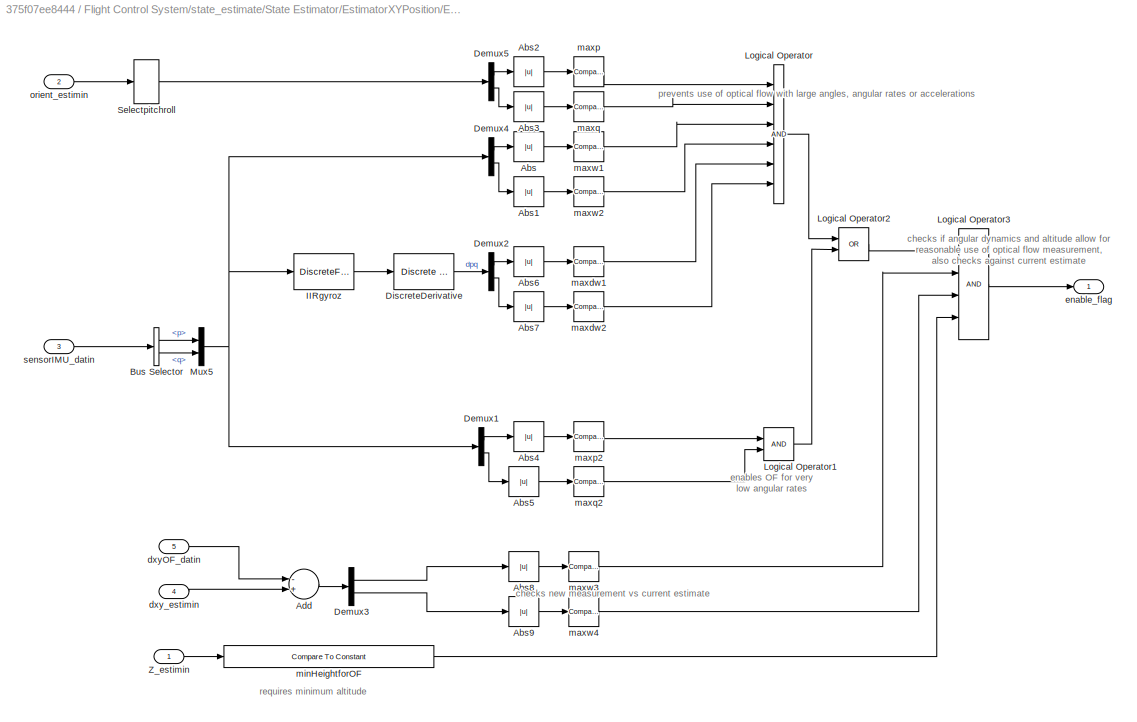
BLOCK [SubSystem] Flight Control System/state_estimate/State Estimator/EstimatorXYPosition/EstimatorVelocity/DataHandling
  Ports = [5, 1]
  RequestExecContextInheritance = off
BLOCK [Abs] Flight Control System/state_estimate/State Estimator/EstimatorXYPosition/EstimatorVelocity/DataHandling/Abs
  SaturateOnIntegerOverflow = off
BLOCK [Abs] Flight Control System/state_estimate/State Estimator/EstimatorXYPosition/EstimatorVelocity/DataHandling/Abs1
  SaturateOnIntegerOverflow = off
BLOCK [Abs] Flight Control System/state_estimate/State Estimator/EstimatorXYPosition/EstimatorVelocity/DataHandling/Abs2
  SaturateOnIntegerOverflow = off
BLOCK [Abs] Flight Control System/state_estimate/State Estimator/EstimatorXYPosition/EstimatorVelocity/DataHandling/Abs3
  SaturateOnIntegerOverflow = off
BLOCK [Abs] Flight Control System/state_estimate/State Estimator/EstimatorXYPosition/EstimatorVelocity/DataHandling/Abs4
  SaturateOnIntegerOverflow = off
BLOCK [Abs] Flight Control System/state_estimate/State Estimator/EstimatorXYPosition/EstimatorVelocity/DataHandling/Abs5
  SaturateOnIntegerOverflow = off
BLOCK [Abs] Flight Control System/state_estimate/State Estimator/EstimatorXYPosition/EstimatorVelocity/DataHandling/Abs6
  SaturateOnIntegerOverflow = off
BLOCK [Abs] Flight Control System/state_estimate/State Estimator/EstimatorXYPosition/EstimatorVelocity/DataHandling/Abs7
  SaturateOnIntegerOverflow = off
BLOCK [Abs] Flight Control System/state_estimate/State Estimator/EstimatorXYPosition/EstimatorVelocity/DataHandling/Abs8
  SaturateOnIntegerOverflow = off
BLOCK [Abs] Flight Control System/state_estimate/State Estimator/EstimatorXYPosition/EstimatorVelocity/DataHandling/Abs9
  SaturateOnIntegerOverflow = off
BLOCK [Sum] Flight Control System/state_estimate/State Estimator/EstimatorXYPosition/EstimatorVelocity/DataHandling/Add
  InputSameDT = off
  Inputs = -+
  OutDataTypeStr = Inherit: Inherit via internal rule
  Ports = [2, 1]
  SaturateOnIntegerOverflow = off
BLOCK [BusSelector] Flight Control System/state_estimate/State Estimator/EstimatorXYPosition/EstimatorVelocity/DataHandling/Bus Selector
  OutputAsBus = off
  OutputSignals = p,q
  Ports = [1, 2]
BLOCK [Demux] Flight Control System/state_estimate/State Estimator/EstimatorXYPosition/EstimatorVelocity/DataHandling/Demux1
  DisplayOption = bar
  Outputs = 2
  Ports = [1, 2]
BLOCK [Demux] Flight Control System/state_estimate/State Estimator/EstimatorXYPosition/EstimatorVelocity/DataHandling/Demux2
  DisplayOption = bar
  Outputs = 2
  Ports = [1, 2]
BLOCK [Demux] Flight Control System/state_estimate/State Estimator/EstimatorXYPosition/EstimatorVelocity/DataHandling/Demux3
  DisplayOption = bar
  Outputs = 2
  Ports = [1, 2]
BLOCK [Demux] Flight Control System/state_estimate/State Estimator/EstimatorXYPosition/EstimatorVelocity/DataHandling/Demux4
  DisplayOption = bar
  Outputs = 2
  Ports = [1, 2]
BLOCK [Demux] Flight Control System/state_estimate/State Estimator/EstimatorXYPosition/EstimatorVelocity/DataHandling/Demux5
  DisplayOption = bar
  Outputs = 2
  Ports = [1, 2]
BLOCK [Reference] Flight Control System/state_estimate/State Estimator/EstimatorXYPosition/EstimatorVelocity/DataHandling/DiscreteDerivative  REF=simulink/Discrete/Discrete Derivative
  Ports = [1, 1]
  SourceBlock = simulink/Discrete/Discrete Derivative
  SourceProductBaseCode = SL
  SourceProductName = Simulink
  SourceType = Discrete Derivative
BLOCK [DiscreteFilter] Flight Control System/state_estimate/State Estimator/EstimatorXYPosition/EstimatorVelocity/DataHandling/IIRgyroz
  Denominator = Estimator.IMU.filterGyroDen
  InputPortMap = u0
  Numerator = Estimator.IMU.filterGyroNum
  Ports = [1, 1]
BLOCK [Logic] Flight Control System/state_estimate/State Estimator/EstimatorXYPosition/EstimatorVelocity/DataHandling/Logical Operator
  AllPortsSameDT = off
  Inputs = 6
  OutDataTypeStr = boolean
  Ports = [6, 1]
BLOCK [Logic] Flight Control System/state_estimate/State Estimator/EstimatorXYPosition/EstimatorVelocity/DataHandling/Logical Operator1
  AllPortsSameDT = off
  OutDataTypeStr = boolean
  Ports = [2, 1]
BLOCK [Logic] Flight Control System/state_estimate/State Estimator/EstimatorXYPosition/EstimatorVelocity/DataHandling/Logical Operator2
  AllPortsSameDT = off
  Operator = OR
  OutDataTypeStr = boolean
  Ports = [2, 1]
BLOCK [Logic] Flight Control System/state_estimate/State Estimator/EstimatorXYPosition/EstimatorVelocity/DataHandling/Logical Operator3
  AllPortsSameDT = off
  Inputs = 4
  OutDataTypeStr = boolean
  Ports = [4, 1]
BLOCK [Mux] Flight Control System/state_estimate/State Estimator/EstimatorXYPosition/EstimatorVelocity/DataHandling/Mux5
  DisplayOption = bar
  Inputs = 2
  Ports = [2, 1]
BLOCK [Selector] Flight Control System/state_estimate/State Estimator/EstimatorXYPosition/EstimatorVelocity/DataHandling/Selectpitchroll
  IndexOptions = Index vector (dialog)
  Indices = [2 3]
  InputPortWidth = 3
  OutputSizes = 1
  Ports = [1, 1]
BLOCK [Inport] Flight Control System/state_estimate/State Estimator/EstimatorXYPosition/EstimatorVelocity/DataHandling/Z_estimin
  IconDisplay = Port number
BLOCK [Inport] Flight Control System/state_estimate/State Estimator/EstimatorXYPosition/EstimatorVelocity/DataHandling/dxyOF_datin
  IconDisplay = Port number
  Port = 5
BLOCK [Inport] Flight Control System/state_estimate/State Estimator/EstimatorXYPosition/EstimatorVelocity/DataHandling/dxy_estimin
  IconDisplay = Port number
  Port = 4
BLOCK [Outport] Flight Control System/state_estimate/State Estimator/EstimatorXYPosition/EstimatorVelocity/DataHandling/enable_flag
  IconDisplay = Port number
BLOCK [Reference] Flight Control System/state_estimate/State Estimator/EstimatorXYPosition/EstimatorVelocity/DataHandling/maxdw1  REF=simulink/Logic and Bit
Operations/Compare
To Constant
  Ports = [1, 1]
  SourceBlock = simulink/Logic and Bit\nOperations/Compare\nTo Constant
  SourceProductBaseCode = SL
  SourceProductName = Simulink
  SourceType = Compare To Constant
BLOCK [Reference] Flight Control System/state_estimate/State Estimator/EstimatorXYPosition/EstimatorVelocity/DataHandling/maxdw2  REF=simulink/Logic and Bit
Operations/Compare
To Constant
  Ports = [1, 1]
  SourceBlock = simulink/Logic and Bit\nOperations/Compare\nTo Constant
  SourceProductBaseCode = SL
  SourceProductName = Simulink
  SourceType = Compare To Constant
BLOCK [Reference] Flight Control System/state_estimate/State Estimator/EstimatorXYPosition/EstimatorVelocity/DataHandling/maxp  REF=simulink/Logic and Bit
Operations/Compare
To Constant
  Ports = [1, 1]
  SourceBlock = simulink/Logic and Bit\nOperations/Compare\nTo Constant
  SourceProductBaseCode = SL
  SourceProductName = Simulink
  SourceType = Compare To Constant
BLOCK [Reference] Flight Control System/state_estimate/State Estimator/EstimatorXYPosition/EstimatorVelocity/DataHandling/maxp2  REF=simulink/Logic and Bit
Operations/Compare
To Constant
  Ports = [1, 1]
  SourceBlock = simulink/Logic and Bit\nOperations/Compare\nTo Constant
  SourceProductBaseCode = SL
  SourceProductName = Simulink
  SourceType = Compare To Constant
BLOCK [Reference] Flight Control System/state_estimate/State Estimator/EstimatorXYPosition/EstimatorVelocity/DataHandling/maxq  REF=simulink/Logic and Bit
Operations/Compare
To Constant
  Ports = [1, 1]
  SourceBlock = simulink/Logic and Bit\nOperations/Compare\nTo Constant
  SourceProductBaseCode = SL
  SourceProductName = Simulink
  SourceType = Compare To Constant
BLOCK [Reference] Flight Control System/state_estimate/State Estimator/EstimatorXYPosition/EstimatorVelocity/DataHandling/maxq2  REF=simulink/Logic and Bit
Operations/Compare
To Constant
  Ports = [1, 1]
  SourceBlock = simulink/Logic and Bit\nOperations/Compare\nTo Constant
  SourceProductBaseCode = SL
  SourceProductName = Simulink
  SourceType = Compare To Constant
BLOCK [Reference] Flight Control System/state_estimate/State Estimator/EstimatorXYPosition/EstimatorVelocity/DataHandling/maxw1  REF=simulink/Logic and Bit
Operations/Compare
To Constant
  Ports = [1, 1]
  SourceBlock = simulink/Logic and Bit\nOperations/Compare\nTo Constant
  SourceProductBaseCode = SL
  SourceProductName = Simulink
  SourceType = Compare To Constant
BLOCK [Reference] Flight Control System/state_estimate/State Estimator/EstimatorXYPosition/EstimatorVelocity/DataHandling/maxw2  REF=simulink/Logic and Bit
Operations/Compare
To Constant
  Ports = [1, 1]
  SourceBlock = simulink/Logic and Bit\nOperations/Compare\nTo Constant
  SourceProductBaseCode = SL
  SourceProductName = Simulink
  SourceType = Compare To Constant
BLOCK [Reference] Flight Control System/state_estimate/State Estimator/EstimatorXYPosition/EstimatorVelocity/DataHandling/maxw3  REF=simulink/Logic and Bit
Operations/Compare
To Constant
  Ports = [1, 1]
  SourceBlock = simulink/Logic and Bit\nOperations/Compare\nTo Constant
  SourceProductBaseCode = SL
  SourceProductName = Simulink
  SourceType = Compare To Constant
BLOCK [Reference] Flight Control System/state_estimate/State Estimator/EstimatorXYPosition/EstimatorVelocity/DataHandling/maxw4  REF=simulink/Logic and Bit
Operations/Compare
To Constant
  Ports = [1, 1]
  SourceBlock = simulink/Logic and Bit\nOperations/Compare\nTo Constant
  SourceProductBaseCode = SL
  SourceProductName = Simulink
  SourceType = Compare To Constant
BLOCK [Reference] Flight Control System/state_estimate/State Estimator/EstimatorXYPosition/EstimatorVelocity/DataHandling/minHeightforOF  REF=simulink/Logic and Bit
Operations/Compare
To Constant
  Ports = [1, 1]
  SourceBlock = simulink/Logic and Bit\nOperations/Compare\nTo Constant
  SourceProductBaseCode = SL
  SourceProductName = Simulink
  SourceType = Compare To Constant
BLOCK [Inport] Flight Control System/state_estimate/State Estimator/EstimatorXYPosition/EstimatorVelocity/DataHandling/orient_estimin
  IconDisplay = Port number
  Port = 2
BLOCK [Inport] Flight Control System/state_estimate/State Estimator/EstimatorXYPosition/EstimatorVelocity/DataHandling/sensorIMU_datin
  IconDisplay = Port number
  Port = 3
BLOCK [Delay] Flight Control System/state_estimate/State Estimator/EstimatorXYPosition/EstimatorVelocity/Delay
  DelayLength = 1
  InitialCondition = 0
  InputPortMap = u0
  Ports = [1, 1]
BLOCK [Reference] Flight Control System/state_estimate/State Estimator/EstimatorXYPosition/EstimatorVelocity/KalmanFilter_dxdy  REF=ctrlSharedLib/Kalman Filter
  Ports = [3, 1]
  SourceBlock = ctrlSharedLib/Kalman Filter
  SourceProductBaseCode = CT
  SourceProductName = Control System Toolbox
  SourceType = ctrlKalmanFilter
BLOCK [Selector] Flight Control System/state_estimate/State Estimator/EstimatorXYPosition/EstimatorVelocity/Select dxy
  IndexOptions = Index vector (dialog)
  Indices = [1 2]
  InputPortWidth = 3
  OutputSizes = 1
  Ports = [1, 1]
BLOCK [Inport] Flight Control System/state_estimate/State Estimator/EstimatorXYPosition/EstimatorVelocity/Z_estimin
  IconDisplay = Port number
  Port = 2
  SampleTime = Ts
BLOCK [Outport] Flight Control System/state_estimate/State Estimator/EstimatorXYPosition/EstimatorVelocity/dxy_estimout
  IconDisplay = Port number
BLOCK [Gain] Flight Control System/state_estimate/State Estimator/EstimatorXYPosition/EstimatorVelocity/opticalFlowToVelocity_gain
  Gain = Estimator.pos.opticalFlowToVelocityGain
  OutDataTypeStr = Inherit: Inherit via internal rule
  ParamDataTypeStr = Inherit: Inherit via internal rule
  SaturateOnIntegerOverflow = off
BLOCK [Inport] Flight Control System/state_estimate/State Estimator/EstimatorXYPosition/EstimatorVelocity/opticalFlow_datin
  IconDisplay = Port number
BLOCK [Inport] Flight Control System/state_estimate/State Estimator/EstimatorXYPosition/EstimatorVelocity/orient_estimin
  IconDisplay = Port number
  Port = 4
BLOCK [Inport] Flight Control System/state_estimate/State Estimator/EstimatorXYPosition/EstimatorVelocity/sensorIMU_datin
  IconDisplay = Port number
  Port = 3
BLOCK [SubSystem] Flight Control System/state_estimate/State Estimator/EstimatorXYPosition/EstimatorXYPosition
  Ports = [6, 1]
  RequestExecContextInheritance = off
BLOCK [Delay] Flight Control System/state_estimate/State Estimator/EstimatorXYPosition/EstimatorXYPosition/Delay
  DelayLength = 1
  InitialCondition = 0
  InputPortMap = u0
  Ports = [1, 1]
BLOCK [Reference] Flight Control System/state_estimate/State Estimator/EstimatorXYPosition/EstimatorXYPosition/KalmanFilter_posxy  REF=ctrlSharedLib/Kalman Filter
  Ports = [3, 1]
  SourceBlock = ctrlSharedLib/Kalman Filter
  SourceProductBaseCode = CT
  SourceProductName = Control System Toolbox
  SourceType = ctrlKalmanFilter
BLOCK [Math] Flight Control System/state_estimate/State Estimator/EstimatorXYPosition/EstimatorXYPosition/Math Function
  Operator = transpose
  Ports = [1, 1]
BLOCK [Mux] Flight Control System/state_estimate/State Estimator/EstimatorXYPosition/EstimatorXYPosition/Mux2
  DisplayOption = bar
  Inputs = 2
  Ports = [2, 1]
BLOCK [SubSystem] Flight Control System/state_estimate/State Estimator/EstimatorXYPosition/EstimatorXYPosition/OutlierHandling
  Ports = [3, 1]
  RequestExecContextInheritance = off
BLOCK [Abs] Flight Control System/state_estimate/State Estimator/EstimatorXYPosition/EstimatorXYPosition/OutlierHandling/Abs
  SaturateOnIntegerOverflow = off
BLOCK [Abs] Flight Control System/state_estimate/State Estimator/EstimatorXYPosition/EstimatorXYPosition/OutlierHandling/Abs1
  SaturateOnIntegerOverflow = off
BLOCK [Sum] Flight Control System/state_estimate/State Estimator/EstimatorXYPosition/EstimatorXYPosition/OutlierHandling/Add1
  AccumDataTypeStr = single
  IconShape = round
  InputSameDT = off
  Inputs = +-
  OutDataTypeStr = Inherit: Inherit via internal rule
  Ports = [2, 1]
  SaturateOnIntegerOverflow = off
BLOCK [Constant] Flight Control System/state_estimate/State Estimator/EstimatorXYPosition/EstimatorXYPosition/OutlierHandling/Constant
  OutDataTypeStr = single
  Value = 2
BLOCK [Demux] Flight Control System/state_estimate/State Estimator/EstimatorXYPosition/EstimatorXYPosition/OutlierHandling/Demux
  DisplayOption = bar
  Outputs = 2
  Ports = [1, 2]
BLOCK [Logic] Flight Control System/state_estimate/State Estimator/EstimatorXYPosition/EstimatorXYPosition/OutlierHandling/Logical Operator3
  AllPortsSameDT = off
  Inputs = 4
  OutDataTypeStr = boolean
  Ports = [4, 1]
BLOCK [Math] Flight Control System/state_estimate/State Estimator/EstimatorXYPosition/EstimatorXYPosition/OutlierHandling/Math Function
  Operator = pow
  Ports = [2, 1]
BLOCK [Selector] Flight Control System/state_estimate/State Estimator/EstimatorXYPosition/EstimatorXYPosition/OutlierHandling/SelectX
  IndexOptions = Index vector (dialog)
  Indices = [1]
  InputPortWidth = 4
  OutputSizes = 1
  Ports = [1, 1]
BLOCK [Selector] Flight Control System/state_estimate/State Estimator/EstimatorXYPosition/EstimatorXYPosition/OutlierHandling/SelectXY
  IndexOptions = Index vector (dialog)
  Indices = [1 2]
  InputPortWidth = 4
  OutputSizes = 1
  Ports = [1, 1]
BLOCK [Selector] Flight Control System/state_estimate/State Estimator/EstimatorXYPosition/EstimatorXYPosition/OutlierHandling/Selector
  IndexOptions = Index vector (dialog)
  Indices = [2 3]
  InputPortWidth = 3
  OutputSizes = 1
  Ports = [1, 1]
BLOCK [Sqrt] Flight Control System/state_estimate/State Estimator/EstimatorXYPosition/EstimatorXYPosition/OutlierHandling/Sqrt
BLOCK [Sum] Flight Control System/state_estimate/State Estimator/EstimatorXYPosition/EstimatorXYPosition/OutlierHandling/Sum of Elements
  InputSameDT = off
  Inputs = +
  OutDataTypeStr = Inherit: Inherit via internal rule
  Ports = [1, 1]
  SaturateOnIntegerOverflow = off
BLOCK [Reference] Flight Control System/state_estimate/State Estimator/EstimatorXYPosition/EstimatorXYPosition/OutlierHandling/checkifPosavailable  REF=simulink/Logic and Bit
Operations/Compare
To Constant
  Ports = [1, 1]
  SourceBlock = simulink/Logic and Bit\nOperations/Compare\nTo Constant
  SourceProductBaseCode = SL
  SourceProductName = Simulink
  SourceType = Compare To Constant
BLOCK [Outport] Flight Control System/state_estimate/State Estimator/EstimatorXYPosition/EstimatorXYPosition/OutlierHandling/enable_flag
  IconDisplay = Port number
BLOCK [Reference] Flight Control System/state_estimate/State Estimator/EstimatorXYPosition/EstimatorXYPosition/OutlierHandling/maxp3  REF=simulink/Logic and Bit
Operations/Compare
To Constant
  Ports = [1, 1]
  SourceBlock = simulink/Logic and Bit\nOperations/Compare\nTo Constant
  SourceProductBaseCode = SL
  SourceProductName = Simulink
  SourceType = Compare To Constant
BLOCK [Reference] Flight Control System/state_estimate/State Estimator/EstimatorXYPosition/EstimatorXYPosition/OutlierHandling/maxq3  REF=simulink/Logic and Bit
Operations/Compare
To Constant
  Ports = [1, 1]
  SourceBlock = simulink/Logic and Bit\nOperations/Compare\nTo Constant
  SourceProductBaseCode = SL
  SourceProductName = Simulink
  SourceType = Compare To Constant
BLOCK [Inport] Flight Control System/state_estimate/State Estimator/EstimatorXYPosition/EstimatorXYPosition/OutlierHandling/orient_estimin
  IconDisplay = Port number
BLOCK [Reference] Flight Control System/state_estimate/State Estimator/EstimatorXYPosition/EstimatorXYPosition/OutlierHandling/planarjumpsVISPOS  REF=simulink/Logic and Bit
Operations/Compare
To Constant
  Ports = [1, 1]
  SourceBlock = simulink/Logic and Bit\nOperations/Compare\nTo Constant
  SourceProductBaseCode = SL
  SourceProductName = Simulink
  SourceType = Compare To Constant
BLOCK [Inport] Flight Control System/state_estimate/State Estimator/EstimatorXYPosition/EstimatorXYPosition/OutlierHandling/posVIS_datin
  IconDisplay = Port number
  Port = 2
BLOCK [Inport] Flight Control System/state_estimate/State Estimator/EstimatorXYPosition/EstimatorXYPosition/OutlierHandling/pos_estim
  IconDisplay = Port number
  Port = 3
BLOCK [Product] Flight Control System/state_estimate/State Estimator/EstimatorXYPosition/EstimatorXYPosition/Product
  InputSameDT = off
  Multiplication = Matrix(*)
  OutDataTypeStr = Inherit: Inherit via internal rule
  Ports = [2, 1]
  RndMeth = Floor
  SaturateOnIntegerOverflow = off
BLOCK [Reference] Flight Control System/state_estimate/State Estimator/EstimatorXYPosition/EstimatorXYPosition/Rotation Angles to Direction Cosine Matrix  REF=sharedtransform/Rotation Angles to
Direction Cosine Matrix
  AttributesFormatString = Rotation Order: %<rotationOrder>
  Ports = [1, 1]
  SourceBlock = sharedtransform/Rotation Angles to\nDirection Cosine Matrix
  SourceProductBaseCode = AE
  SourceProductName = Aerospace Blockset
  SourceType = Ang2DCM
BLOCK [Selector] Flight Control System/state_estimate/State Estimator/EstimatorXYPosition/EstimatorXYPosition/SelectXY
  IndexOptions = Index vector (dialog)
  Indices = [1 2]
  InputPortWidth = 4
  OutputSizes = 1
  Ports = [1, 1]
BLOCK [Selector] Flight Control System/state_estimate/State Estimator/EstimatorXYPosition/EstimatorXYPosition/SelectdXY
  IndexOptions = Index vector (dialog)
  Indices = [1 2]
  InputPortWidth = 3
  OutputSizes = 1
  Ports = [1, 1]
BLOCK [DiscreteIntegrator] Flight Control System/state_estimate/State Estimator/EstimatorXYPosition/EstimatorXYPosition/SimplyIntegrateVelocity
  ExternalReset = rising
  ICPrevOutput = DiscIntNeverNeededParam
  ICPrevScaledInput = DiscIntNeverNeededParam
  InitialConditionSetting = Auto
  Ports = [2, 1]
  SampleTime = Ts
BLOCK [Switch] Flight Control System/state_estimate/State Estimator/EstimatorXYPosition/EstimatorXYPosition/UseIPPosSwitch
  Criteria = u2 > Threshold
  InputSameDT = off
  SaturateOnIntegerOverflow = off
BLOCK [Outport] Flight Control System/state_estimate/State Estimator/EstimatorXYPosition/EstimatorXYPosition/XY_estimout
  IconDisplay = Port number
BLOCK [Inport] Flight Control System/state_estimate/State Estimator/EstimatorXYPosition/EstimatorXYPosition/controlModePosVSOrient_flagin
  IconDisplay = Port number
  Port = 3
BLOCK [Inport] Flight Control System/state_estimate/State Estimator/EstimatorXYPosition/EstimatorXYPosition/dxy_estimin
  IconDisplay = Port number
BLOCK [Inport] Flight Control System/state_estimate/State Estimator/EstimatorXYPosition/EstimatorXYPosition/dz_estimin
  IconDisplay = Port number
  Port = 4
BLOCK [Inport] Flight Control System/state_estimate/State Estimator/EstimatorXYPosition/EstimatorXYPosition/orient_estimin
  IconDisplay = Port number
  Port = 2
  SampleTime = Ts
BLOCK [Inport] Flight Control System/state_estimate/State Estimator/EstimatorXYPosition/EstimatorXYPosition/posVIS_datin
  IconDisplay = Port number
  Port = 5
BLOCK [Inport] Flight Control System/state_estimate/State Estimator/EstimatorXYPosition/EstimatorXYPosition/usePosVIS_flagin
  IconDisplay = Port number
  Port = 6
BLOCK [Outport] Flight Control System/state_estimate/State Estimator/EstimatorXYPosition/XY_estimout
  IconDisplay = Port number
BLOCK [Inport] Flight Control System/state_estimate/State Estimator/EstimatorXYPosition/Z_estimin
  IconDisplay = Port number
  Port = 6
BLOCK [Inport] Flight Control System/state_estimate/State Estimator/EstimatorXYPosition/controlModePosVSOrient_flagin
  IconDisplay = Port number
  Port = 2
BLOCK [Outport] Flight Control System/state_estimate/State Estimator/EstimatorXYPosition/dxy_estimout
  IconDisplay = Port number
  Port = 2
BLOCK [Inport] Flight Control System/state_estimate/State Estimator/EstimatorXYPosition/dz_estimin
  IconDisplay = Port number
  Port = 7
BLOCK [Inport] Flight Control System/state_estimate/State Estimator/EstimatorXYPosition/opticalFlow_datin
  IconDisplay = Port number
BLOCK [Inport] Flight Control System/state_estimate/State Estimator/EstimatorXYPosition/orient_estimin
  IconDisplay = Port number
  Port = 8
BLOCK [Inport] Flight Control System/state_estimate/State Estimator/EstimatorXYPosition/posVIS_datin
  IconDisplay = Port number
  Port = 4
BLOCK [Inport] Flight Control System/state_estimate/State Estimator/EstimatorXYPosition/sensorIMU_datin
  IconDisplay = Port number
  Port = 5
BLOCK [Inport] Flight Control System/state_estimate/State Estimator/EstimatorXYPosition/usePosVIS_flagin
  IconDisplay = Port number
  Port = 3
BLOCK [Outport] Flight Control System/state_estimate/State Estimator/Out Bus Element
  IconDisplay = Port number
BLOCK [Outport] Flight Control System/state_estimate/State Estimator/Out Bus Element1
  IconDisplay = Port number
BLOCK [Outport] Flight Control System/state_estimate/State Estimator/Out Bus Element10
  IconDisplay = Port number
BLOCK [Outport] Flight Control System/state_estimate/State Estimator/Out Bus Element11
  IconDisplay = Port number
BLOCK [Outport] Flight Control System/state_estimate/State Estimator/Out Bus Element2
  IconDisplay = Port number
BLOCK [Outport] Flight Control System/state_estimate/State Estimator/Out Bus Element3
  IconDisplay = Port number
BLOCK [Outport] Flight Control System/state_estimate/State Estimator/Out Bus Element4
  IconDisplay = Port number
BLOCK [Outport] Flight Control System/state_estimate/State Estimator/Out Bus Element5
  IconDisplay = Port number
BLOCK [Outport] Flight Control System/state_estimate/State Estimator/Out Bus Element6
  IconDisplay = Port number
BLOCK [Outport] Flight Control System/state_estimate/State Estimator/Out Bus Element7
  IconDisplay = Port number
BLOCK [Outport] Flight Control System/state_estimate/State Estimator/Out Bus Element8
  IconDisplay = Port number
BLOCK [Outport] Flight Control System/state_estimate/State Estimator/Out Bus Element9
  IconDisplay = Port number
BLOCK [SubSystem] Flight Control System/state_estimate/State Estimator/SensorPreprocessing
  Ports = [4, 5]
  RequestExecContextInheritance = off
BLOCK [Bias] Flight Control System/state_estimate/State Estimator/SensorPreprocessing/Assuming that calib was done level!
  Bias = [0 0 +g 0 0 0]
  SaturateOnIntegerOverflow = off
BLOCK [BusCreator] Flight Control System/state_estimate/State Estimator/SensorPreprocessing/Bus Creator3
  DisplayOption = bar
  InheritFromInputs = on
  Inputs = 6
  Ports = [6, 1]
BLOCK [BusSelector] Flight Control System/state_estimate/State Estimator/SensorPreprocessing/Bus Selector
  OutputAsBus = off
  OutputSignals = ddx,ddy,ddz,p,q,r
  Ports = [1, 6]
BLOCK [BusSelector] Flight Control System/state_estimate/State Estimator/SensorPreprocessing/Bus Selector1
  OutputAsBus = off
  OutputSignals = altitude_sonar,prs
  Ports = [1, 2]
BLOCK [Reference] Flight Control System/state_estimate/State Estimator/SensorPreprocessing/Check if valid visual position estimate available  REF=simulink/Logic and Bit
Operations/Compare
To Constant
  Ports = [1, 1]
  SourceBlock = simulink/Logic and Bit\nOperations/Compare\nTo Constant
  SourceProductBaseCode = SL
  SourceProductName = Simulink
  SourceType = Compare To Constant
BLOCK [DataTypeConversion] Flight Control System/state_estimate/State Estimator/SensorPreprocessing/Data Type Conversion
  RndMeth = Floor
  SaturateOnIntegerOverflow = off
BLOCK [Demux] Flight Control System/state_estimate/State Estimator/SensorPreprocessing/Demux1
  DisplayOption = bar
  Outputs = 3
  Ports = [1, 3]
BLOCK [Demux] Flight Control System/state_estimate/State Estimator/SensorPreprocessing/Demux2
  DisplayOption = bar
  Outputs = 3
  Ports = [1, 3]
BLOCK [DiscreteFir] Flight Control System/state_estimate/State Estimator/SensorPreprocessing/FIR_IMUaccel
  Coefficients = Estimator.IMU.filterAccel.Coefficients
  InputPortMap = u0
  OutputPortMap = o0
  Ports = [1, 1]
BLOCK [DiscreteFilter] Flight Control System/state_estimate/State Estimator/SensorPreprocessing/IIR_IMUgyro_r
  Denominator = Estimator.IMU.filterGyroDen
  InputPortMap = u0
  Numerator = Estimator.IMU.filterGyroNum
  Ports = [1, 1]
BLOCK [Logic] Flight Control System/state_estimate/State Estimator/SensorPreprocessing/Logical Operator
  AllPortsSameDT = off
  OutDataTypeStr = boolean
  Ports = [2, 1]
BLOCK [Mux] Flight Control System/state_estimate/State Estimator/SensorPreprocessing/Mux1
  DisplayOption = bar
  Inputs = 6
  Ports = [6, 1]
BLOCK [Selector] Flight Control System/state_estimate/State Estimator/SensorPreprocessing/Select Accel
  IndexOptions = Index vector (dialog)
  Indices = [1 2 3]
  InputPortWidth = 6
  OutputSizes = 1
  Ports = [1, 1]
BLOCK [Selector] Flight Control System/state_estimate/State Estimator/SensorPreprocessing/Select pqr
  IndexOptions = Index vector (dialog)
  Indices = [4 5 6]
  InputPortWidth = 6
  OutputSizes = 1
  Ports = [1, 1]
BLOCK [Selector] Flight Control System/state_estimate/State Estimator/SensorPreprocessing/Selector2
  IndexOptions = Index vector (dialog)
  Indices = [1:6]
  InputPortWidth = 8
  OutputSizes = 1
  Ports = [1, 1]
BLOCK [Selector] Flight Control System/state_estimate/State Estimator/SensorPreprocessing/Selector4
  IndexOptions = Index vector (dialog)
  Indices = [7]
  InputPortWidth = 8
  OutputSizes = 1
  Ports = [1, 1]
BLOCK [Sum] Flight Control System/state_estimate/State Estimator/SensorPreprocessing/Sum1
  IconShape = round
  InputSameDT = off
  Inputs = |+-
  OutDataTypeStr = Inherit: Inherit via internal rule
  Ports = [2, 1]
  SaturateOnIntegerOverflow = off
BLOCK [Sum] Flight Control System/state_estimate/State Estimator/SensorPreprocessing/Sum2
  IconShape = round
  InputSameDT = off
  Inputs = -+|
  OutDataTypeStr = Inherit: Inherit via internal rule
  Ports = [2, 1]
  SaturateOnIntegerOverflow = off
BLOCK [Selector] Flight Control System/state_estimate/State Estimator/SensorPreprocessing/XVIS
  IndexOptions = Index vector (dialog)
  Indices = 1
  InputPortWidth = 4
  OutputSizes = 1
  Ports = [1, 1]
BLOCK [Outport] Flight Control System/state_estimate/State Estimator/SensorPreprocessing/altSonar_datout
  IconDisplay = Port number
  Port = 4
BLOCK [Gain] Flight Control System/state_estimate/State Estimator/SensorPreprocessing/inverseIMU_gain
  Gain = Estimator.inverseIMUGain
  OutDataTypeStr = single
  ParamDataTypeStr = single
  SaturateOnIntegerOverflow = off
BLOCK [Inport] Flight Control System/state_estimate/State Estimator/SensorPreprocessing/posVIS_datin
  IconDisplay = Port number
  Port = 2
BLOCK [Outport] Flight Control System/state_estimate/State Estimator/SensorPreprocessing/prsDelta_datout
  IconDisplay = Port number
  Port = 5
BLOCK [Inport] Flight Control System/state_estimate/State Estimator/SensorPreprocessing/sensorCalibration_datin
  IconDisplay = Port number
  Port = 4
BLOCK [Outport] Flight Control System/state_estimate/State Estimator/SensorPreprocessing/sensorIMU_datout
  IconDisplay = Port number
BLOCK [Inport] Flight Control System/state_estimate/State Estimator/SensorPreprocessing/sensordata_datin
  IconDisplay = Port number
  Port = 3
BLOCK [Inport] Flight Control System/state_estimate/State Estimator/SensorPreprocessing/usePosVIS_flagin
  IconDisplay = Port number
BLOCK [Outport] Flight Control System/state_estimate/State Estimator/SensorPreprocessing/validVIS_flagout
  IconDisplay = Port number
  Port = 3
BLOCK [Selector] Flight Control System/state_estimate/State Estimator/SensorPreprocessing/yawVIS
  IndexOptions = Index vector (dialog)
  Indices = 4
  InputPortWidth = 4
  OutputSizes = 1
  Ports = [1, 1]
BLOCK [Outport] Flight Control System/state_estimate/State Estimator/SensorPreprocessing/yawVis_datout
  IconDisplay = Port number
  Port = 2
BLOCK [Terminator] Flight Control System/state_estimate/State Estimator/Terminator
BLOCK [Terminator] Flight Control System/state_estimate/State Estimator/Terminator1
BLOCK [Inport] Flight Control System/state_estimate/State Estimator/controlModePosVSOrient_flagin
  IconDisplay = Port number
  OutDataTypeStr = boolean
BLOCK [Inport] Flight Control System/state_estimate/State Estimator/opticalFlow_datin
  IconDisplay = Port number
  Port = 4
BLOCK [Inport] Flight Control System/state_estimate/State Estimator/posVIS_datin
  IconDisplay = Port number
  Port = 5
BLOCK [InportShadow] Flight Control System/state_estimate/State Estimator/posVIS_datin1
  IconDisplay = Port number
  Port = 5
BLOCK [Inport] Flight Control System/state_estimate/State Estimator/sensorCalibration_datin
  IconDisplay = Port number
  Port = 6
BLOCK [Inport] Flight Control System/state_estimate/State Estimator/sensor_data_in
  IconDisplay = Port number
  Port = 2
BLOCK [Inport] Flight Control System/state_estimate/State Estimator/usePosVIS_flagin
  IconDisplay = Port number
  Port = 3
BLOCK [InportShadow] Flight Control System/state_estimate/State Estimator/usePosVIS_flagin1
  IconDisplay = Port number
  Port = 3
BLOCK [Inport] Flight Control System/state_estimate/controlModePosVSOrient_flagin
  IconDisplay = Port number
  OutDataTypeStr = boolean
  SampleTime = Ts
BLOCK [Inport] Flight Control System/state_estimate/opticalFlow_datin
  IconDisplay = Port number
  OutDataTypeStr = single
  Port = 3
  SampleTime = Ts
BLOCK [Inport] Flight Control System/state_estimate/posVIS_datin
  IconDisplay = Port number
  OutDataTypeStr = single
  Port = 4
  SampleTime = Ts
BLOCK [Inport] Flight Control System/state_estimate/sensorCalibration_datin
  IconDisplay = Port number
  OutDataTypeStr = single
  Port = 6
  SampleTime = Ts
BLOCK [Inport] Flight Control System/state_estimate/sensordata_datin
  BusOutputAsStruct = on
  IconDisplay = Port number
  OutDataTypeStr = Bus: sensordata_t
  Port = 5
  SampleTime = Ts
BLOCK [Outport] Flight Control System/state_estimate/states_estimout
  BusOutputAsStruct = on
  IconDisplay = Port number
  OutDataTypeStr = Bus: statesEstim_t
BLOCK [Inport] Flight Control System/state_estimate/usePosVIS_flagin
  IconDisplay = Port number
  OutDataTypeStr = single
  Port = 2
  SampleTime = Ts
BLOCK [Outport] Motors
  IconDisplay = Port number
  OutDataTypeStr = single
  PortDimensions = [1 4]
BLOCK [Inport] Sensors
  BusOutputAsStruct = on
  IconDisplay = Port number
  OutDataTypeStr = Bus: SensorsBus
  Port = 2
ANNOTATION (root): <copyright redacted>
ANNOTATION (root): DO NOT MODIFY these input ports and signal properties.
ANNOTATION (root): DO NOT MODIFY these output ports and signal properties. Always ensure the 'Motors' outport is fed with a 1 x 4 single vector. Always ensure the 'Flag' outport is fed with a 1 x 1 uint8 value.
ANNOTATION (root): Model your control logic inside this subsystem using the Sensor values and output the Motor values
ANNOTATION (root): Song Liu
ANNOTATION Flight Control System/fc/Flight Controller/Attitude: ATTITUDE
ANNOTATION Flight Control System/fc/Flight Controller/gravity feedforward//equilibrium thrust: ALTITUDE
ANNOTATION Flight Control System/state_estimate/State Estimator: Derived frrom the work by Sertac Karaman and Fabian Riether
ANNOTATION Flight Control System/state_estimate/State Estimator/Complementary Filter: Derived from the work by Fabian Riether Inspired by http://www.pieter-jan.com/node/11
ANNOTATION Flight Control System/state_estimate/State Estimator/EstimatorXYPosition/EstimatorVelocity/DataHandling: checks if angular dynamics and altitude allow for reasonable use of optical flow measurement, also checks against current estimate
ANNOTATION Flight Control System/state_estimate/State Estimator/EstimatorXYPosition/EstimatorVelocity/DataHandling: checks new measurement vs current estimate
ANNOTATION Flight Control System/state_estimate/State Estimator/EstimatorXYPosition/EstimatorVelocity/DataHandling: enables OF for very low angular rates
ANNOTATION Flight Control System/state_estimate/State Estimator/EstimatorXYPosition/EstimatorVelocity/DataHandling: prevents use of optical flow with large angles, angular rates or accelerations
ANNOTATION Flight Control System/state_estimate/State Estimator/EstimatorXYPosition/EstimatorVelocity/DataHandling: requires minimum altitude
ANNOTATION Flight Control System/state_estimate/State Estimator/EstimatorXYPosition/EstimatorXYPosition: Switching from orientationControl to Position control reset the current world position estimate (happens when using no markers)
ANNOTATION Flight Control System/state_estimate/State Estimator/SensorPreprocessing: IMU
LINE AC cmd:1 -> Flight Control System:1
LINE Flight Control System/Bus Selector1:1 -> Flight Control System/Subsystem:1
LINE Flight Control System/Bus Selector1:2 -> Flight Control System/Bus Selector2:1
LINE Flight Control System/Bus Selector1:3 -> Flight Control System/state_estimate:6
LINE Flight Control System/Bus Selector2:1 -> Flight Control System/sensordata_group:1
LINE Flight Control System/Bus Selector2:2 -> Flight Control System/sensordata_group:2
LINE Flight Control System/Bus Selector2:3 -> Flight Control System/sensordata_group:3
LINE Flight Control System/Bus Selector2:4 -> Flight Control System/sensordata_group:4
LINE Flight Control System/Bus Selector2:5 -> Flight Control System/sensordata_group:5
LINE Flight Control System/Bus Selector:1 -> Flight Control System/Mux:1
LINE Flight Control System/Bus Selector:2 -> Flight Control System/Mux:2
LINE Flight Control System/Bus Selector:3 -> Flight Control System/Mux:3
LINE Flight Control System/Bus Selector:4 -> Flight Control System/Mux:4
LINE Flight Control System/Constant:1 -> Flight Control System/state_estimate:1
LINE Flight Control System/Crash Predictor Flags/Abs1:1 -> Flight Control System/Crash Predictor Flags/Compare To Constant1:1
LINE Flight Control System/Crash Predictor Flags/Abs2:1 -> Flight Control System/Crash Predictor Flags/Compare To Constant2:1
LINE Flight Control System/Crash Predictor Flags/Abs3:1 -> Flight Control System/Crash Predictor Flags/Compare To Constant3:1
LINE Flight Control System/Crash Predictor Flags/Abs4:1 -> Flight Control System/Crash Predictor Flags/Compare To Constant4:1
LINE Flight Control System/Crash Predictor Flags/Abs5:1 -> Flight Control System/Crash Predictor Flags/Compare To Constant5:1
LINE Flight Control System/Crash Predictor Flags/Abs:1 -> Flight Control System/Crash Predictor Flags/Compare To Constant:1
LINE Flight Control System/Crash Predictor Flags/Bus Selector1:1 -> Flight Control System/Crash Predictor Flags/Bus Selector:1
LINE Flight Control System/Crash Predictor Flags/Bus Selector4:1 -> Flight Control System/Crash Predictor Flags/Abs:1
LINE Flight Control System/Crash Predictor Flags/Bus Selector4:2 -> Flight Control System/Crash Predictor Flags/Abs1:1
LINE Flight Control System/Crash Predictor Flags/Bus Selector4:3 -> Flight Control System/Crash Predictor Flags/Subtract:1
LINE Flight Control System/Crash Predictor Flags/Bus Selector4:4 -> Flight Control System/Crash Predictor Flags/Subtract1:1
LINE Flight Control System/Crash Predictor Flags/Bus Selector:1 -> Flight Control System/Crash Predictor Flags/Demux:1
LINE Flight Control System/Crash Predictor Flags/Compare To Constant1:1 -> Flight Control System/Crash Predictor Flags/Logical Operator:2
LINE Flight Control System/Crash Predictor Flags/Compare To Constant2:1 -> Flight Control System/Crash Predictor Flags/Logical Operator1:2
LINE Flight Control System/Crash Predictor Flags/Compare To Constant3:1 -> Flight Control System/Crash Predictor Flags/Logical Operator2:1
LINE Flight Control System/Crash Predictor Flags/Compare To Constant4:1 -> Flight Control System/Crash Predictor Flags/Logical Operator1:1
LINE Flight Control System/Crash Predictor Flags/Compare To Constant5:1 -> Flight Control System/Crash Predictor Flags/Logical Operator2:2
LINE Flight Control System/Crash Predictor Flags/Compare To Constant:1 -> Flight Control System/Crash Predictor Flags/Logical Operator:1
LINE Flight Control System/Crash Predictor Flags/Data Type Conversion1:1 -> Flight Control System/Crash Predictor Flags/If:2
LINE Flight Control System/Crash Predictor Flags/Data Type Conversion:1 -> Flight Control System/Crash Predictor Flags/If:1
NET Flight Control System/Crash Predictor Flags/Demux:1 -> Flight Control System/Crash Predictor Flags/Abs4:1, Flight Control System/Crash Predictor Flags/Gain:1
NET Flight Control System/Crash Predictor Flags/Demux:2 -> Flight Control System/Crash Predictor Flags/Abs5:1, Flight Control System/Crash Predictor Flags/Gain1:1
LINE Flight Control System/Crash Predictor Flags/Demux:3 -> Flight Control System/Crash Predictor Flags/Terminator:1
LINE Flight Control System/Crash Predictor Flags/Gain1:1 -> Flight Control System/Crash Predictor Flags/Subtract1:2
LINE Flight Control System/Crash Predictor Flags/Gain:1 -> Flight Control System/Crash Predictor Flags/Subtract:2
LINE Flight Control System/Crash Predictor Flags/Geofencing error/Constant:1 -> Flight Control System/Crash Predictor Flags/Geofencing error/Out1:1
LINE Flight Control System/Crash Predictor Flags/Geofencing error:1 -> Flight Control System/Crash Predictor Flags/Merge:1
LINE Flight Control System/Crash Predictor Flags/If:1 -> Flight Control System/Crash Predictor Flags/Geofencing error:ifaction
LINE Flight Control System/Crash Predictor Flags/If:2 -> Flight Control System/Crash Predictor Flags/estimator//Optical flow error:ifaction
LINE Flight Control System/Crash Predictor Flags/If:3 -> Flight Control System/Crash Predictor Flags/Normal condition:ifaction
LINE Flight Control System/Crash Predictor Flags/Logical Operator1:1 -> Flight Control System/Crash Predictor Flags/Logical Operator3:1
LINE Flight Control System/Crash Predictor Flags/Logical Operator2:1 -> Flight Control System/Crash Predictor Flags/Logical Operator3:2
LINE Flight Control System/Crash Predictor Flags/Logical Operator3:1 -> Flight Control System/Crash Predictor Flags/Data Type Conversion1:1
LINE Flight Control System/Crash Predictor Flags/Logical Operator:1 -> Flight Control System/Crash Predictor Flags/Data Type Conversion:1
LINE Flight Control System/Crash Predictor Flags/Merge:1 -> Flight Control System/Crash Predictor Flags/Flag:1
LINE Flight Control System/Crash Predictor Flags/Normal condition/Constant:1 -> Flight Control System/Crash Predictor Flags/Normal condition/Out1:1
LINE Flight Control System/Crash Predictor Flags/Normal condition:1 -> Flight Control System/Crash Predictor Flags/Merge:3
LINE Flight Control System/Crash Predictor Flags/Sensors:1 -> Flight Control System/Crash Predictor Flags/Bus Selector1:1
LINE Flight Control System/Crash Predictor Flags/Subtract1:1 -> Flight Control System/Crash Predictor Flags/Abs3:1
LINE Flight Control System/Crash Predictor Flags/Subtract:1 -> Flight Control System/Crash Predictor Flags/Abs2:1
LINE Flight Control System/Crash Predictor Flags/estimator//Optical flow error/Constant:1 -> Flight Control System/Crash Predictor Flags/estimator//Optical flow error/Out1:1
LINE Flight Control System/Crash Predictor Flags/estimator//Optical flow error:1 -> Flight Control System/Crash Predictor Flags/Merge:2
LINE Flight Control System/Crash Predictor Flags/states_estim:1 -> Flight Control System/Crash Predictor Flags/Bus Selector4:1
LINE Flight Control System/Crash Predictor Flags:1 -> Flight Control System/Flag:1
LINE Flight Control System/Mux:1 -> Flight Control System/Reshape:1
LINE Flight Control System/Reshape:1 -> Flight Control System/UDP Send:1
NET Flight Control System/Sensors:1 -> Flight Control System/Bus Selector1:1, Flight Control System/Crash Predictor Flags:2
LINE Flight Control System/Subsystem/<VisionSensors>:1 -> Flight Control System/Subsystem/Bus Selector1:1
LINE Flight Control System/Subsystem/Bus Selector1:1 -> Flight Control System/Subsystem/OF_data:1
LINE Flight Control System/Subsystem/Bus Selector1:2 -> Flight Control System/Subsystem/posVIS_data:1
LINE Flight Control System/Subsystem/Bus Selector1:3 -> Flight Control System/Subsystem/usePosVIS_flag:1
LINE Flight Control System/Subsystem:1 -> Flight Control System/state_estimate:2
LINE Flight Control System/Subsystem:2 -> Flight Control System/state_estimate:3
LINE Flight Control System/Subsystem:3 -> Flight Control System/state_estimate:4
NET Flight Control System/fc/Flight Controller/Add1:1 -> Flight Control System/fc/Flight Controller/Memory1:1, Flight Control System/fc/Flight Controller/Switch3:2
NET Flight Control System/fc/Flight Controller/Add2:1 -> Flight Control System/fc/Flight Controller/Memory2:1, Flight Control System/fc/Flight Controller/Switch2:2, Flight Control System/fc/Flight Controller/Switch5:2
NET Flight Control System/fc/Flight Controller/Add:1 -> Flight Control System/fc/Flight Controller/Memory:1, Flight Control System/fc/Flight Controller/Switch1:2
LINE Flight Control System/fc/Flight Controller/Attitude/Add:1 -> Flight Control System/fc/Flight Controller/Attitude/Discrete-Time Integrator:1
LINE Flight Control System/fc/Flight Controller/Attitude/Bus Selector3:1 -> Flight Control System/fc/Flight Controller/Attitude/Mux:1
LINE Flight Control System/fc/Flight Controller/Attitude/Bus Selector3:2 -> Flight Control System/fc/Flight Controller/Attitude/Mux:2
LINE Flight Control System/fc/Flight Controller/Attitude/Bus Selector4:1 -> Flight Control System/fc/Flight Controller/Attitude/Mux1:1
LINE Flight Control System/fc/Flight Controller/Attitude/Bus Selector4:2 -> Flight Control System/fc/Flight Controller/Attitude/Mux1:2
LINE Flight Control System/fc/Flight Controller/Attitude/D_pr:1 -> Flight Control System/fc/Flight Controller/Attitude/Sum16:3
LINE Flight Control System/fc/Flight Controller/Attitude/Delay:1 -> Flight Control System/fc/Flight Controller/Attitude/antiWU_Gain:1
LINE Flight Control System/fc/Flight Controller/Attitude/Demux:1 -> Flight Control System/fc/Flight Controller/Attitude/tau_pitch:1
LINE Flight Control System/fc/Flight Controller/Attitude/Demux:2 -> Flight Control System/fc/Flight Controller/Attitude/tau_roll:1
NET Flight Control System/fc/Flight Controller/Attitude/Discrete-Time Integrator:1 -> Flight Control System/fc/Flight Controller/Attitude/Delay:1, Flight Control System/fc/Flight Controller/Attitude/I_pr:1
LINE Flight Control System/fc/Flight Controller/Attitude/I_pr:1 -> Flight Control System/fc/Flight Controller/Attitude/Sum16:2
LINE Flight Control System/fc/Flight Controller/Attitude/Mux1:1 -> Flight Control System/fc/Flight Controller/Attitude/D_pr:1
LINE Flight Control System/fc/Flight Controller/Attitude/Mux:1 -> Flight Control System/fc/Flight Controller/Attitude/Sum19:2
LINE Flight Control System/fc/Flight Controller/Attitude/P_pr:1 -> Flight Control System/fc/Flight Controller/Attitude/Sum16:1
LINE Flight Control System/fc/Flight Controller/Attitude/Sum16:1 -> Flight Control System/fc/Flight Controller/Attitude/Demux:1
NET Flight Control System/fc/Flight Controller/Attitude/Sum19:1 -> Flight Control System/fc/Flight Controller/Attitude/Add:1, Flight Control System/fc/Flight Controller/Attitude/P_pr:1
LINE Flight Control System/fc/Flight Controller/Attitude/antiWU_Gain:1 -> Flight Control System/fc/Flight Controller/Attitude/Add:2
LINE Flight Control System/fc/Flight Controller/Attitude/refAttitude:1 -> Flight Control System/fc/Flight Controller/Attitude/Sum19:1
NET Flight Control System/fc/Flight Controller/Attitude/states_estim:1 -> Flight Control System/fc/Flight Controller/Attitude/Bus Selector3:1, Flight Control System/fc/Flight Controller/Attitude/Bus Selector4:1
LINE Flight Control System/fc/Flight Controller/Attitude:1 -> Flight Control System/fc/Flight Controller/ControlMixer:1
LINE Flight Control System/fc/Flight Controller/Attitude:2 -> Flight Control System/fc/Flight Controller/ControlMixer:2
LINE Flight Control System/fc/Flight Controller/Bus Selector:1 -> Flight Control System/fc/Flight Controller/Mux3:1
LINE Flight Control System/fc/Flight Controller/Bus Selector:2 -> Flight Control System/fc/Flight Controller/Mux3:2
NET Flight Control System/fc/Flight Controller/Constant10:1 -> Flight Control System/fc/Flight Controller/Add2:1, Flight Control System/fc/Flight Controller/Switch2:3
LINE Flight Control System/fc/Flight Controller/Constant11:1 -> Flight Control System/fc/Flight Controller/Switch5:3
LINE Flight Control System/fc/Flight Controller/Constant1:1 -> Flight Control System/fc/Flight Controller/Switch_refAtt:2
LINE Flight Control System/fc/Flight Controller/Constant2:1 -> Flight Control System/fc/Flight Controller/Switch5:1
LINE Flight Control System/fc/Flight Controller/Constant3:1 -> Flight Control System/fc/Flight Controller/Switch2:1
LINE Flight Control System/fc/Flight Controller/Constant4:1 -> Flight Control System/fc/Flight Controller/Mux1:2
LINE Flight Control System/fc/Flight Controller/Constant5:1 -> Flight Control System/fc/Flight Controller/Mux1:3
LINE Flight Control System/fc/Flight Controller/Constant6:1 -> Flight Control System/fc/Flight Controller/Mux1:1
LINE Flight Control System/fc/Flight Controller/Constant7:1 -> Flight Control System/fc/Flight Controller/Switch3:1
LINE Flight Control System/fc/Flight Controller/Constant8:1 -> Flight Control System/fc/Flight Controller/Switch4:1
LINE Flight Control System/fc/Flight Controller/Constant9:1 -> Flight Control System/fc/Flight Controller/Switch4:3
LINE Flight Control System/fc/Flight Controller/ControlMixer/Mux2:1 -> Flight Control System/fc/Flight Controller/ControlMixer/Product:2
LINE Flight Control System/fc/Flight Controller/ControlMixer/Product:1 -> Flight Control System/fc/Flight Controller/ControlMixer/thrusts_refout:1
LINE Flight Control System/fc/Flight Controller/ControlMixer/TorqueTotalThrustToThrustPerMotor:1 -> Flight Control System/fc/Flight Controller/ControlMixer/Product:1
LINE Flight Control System/fc/Flight Controller/ControlMixer/tau_pitch:1 -> Flight Control System/fc/Flight Controller/ControlMixer/Mux2:3
LINE Flight Control System/fc/Flight Controller/ControlMixer/tau_roll:1 -> Flight Control System/fc/Flight Controller/ControlMixer/Mux2:4
LINE Flight Control System/fc/Flight Controller/ControlMixer/tau_yaw:1 -> Flight Control System/fc/Flight Controller/ControlMixer/Mux2:2
LINE Flight Control System/fc/Flight Controller/ControlMixer/totalThrust:1 -> Flight Control System/fc/Flight Controller/ControlMixer/Mux2:1
LINE Flight Control System/fc/Flight Controller/ControlMixer:1 -> Flight Control System/fc/Flight Controller/thrustsToMotorCommands:1
LINE Flight Control System/fc/Flight Controller/Delay:1 -> Flight Control System/fc/Flight Controller/Switch1:1
LINE Flight Control System/fc/Flight Controller/Demux:1 -> Flight Control System/fc/Flight Controller/Mux:1
LINE Flight Control System/fc/Flight Controller/Demux:2 -> Flight Control System/fc/Flight Controller/Mux:2
LINE Flight Control System/fc/Flight Controller/Demux:3 -> Flight Control System/fc/Flight Controller/Mux:3
LINE Flight Control System/fc/Flight Controller/Memory1:1 -> Flight Control System/fc/Flight Controller/Add1:2
LINE Flight Control System/fc/Flight Controller/Memory2:1 -> Flight Control System/fc/Flight Controller/Add2:2
LINE Flight Control System/fc/Flight Controller/Memory:1 -> Flight Control System/fc/Flight Controller/Add:2
NET Flight Control System/fc/Flight Controller/Mux1:1 -> Flight Control System/fc/Flight Controller/Mux2:2, Flight Control System/fc/Flight Controller/Selector2:1, Flight Control System/fc/Flight Controller/Selector3:1
LINE Flight Control System/fc/Flight Controller/Mux2:1 -> Flight Control System/fc/Flight Controller/pose_refout:1
LINE Flight Control System/fc/Flight Controller/Mux3:1 -> Flight Control System/fc/Flight Controller/Switch1:3
NET Flight Control System/fc/Flight Controller/Mux:1 -> Flight Control System/fc/Flight Controller/Mux2:1, Flight Control System/fc/Flight Controller/Selector1:1, Flight Control System/fc/Flight Controller/Selector:1
LINE Flight Control System/fc/Flight Controller/Selector1:1 -> Flight Control System/fc/Flight Controller/XY-to-reference-orientation:1
LINE Flight Control System/fc/Flight Controller/Selector2:1 -> Flight Control System/fc/Flight Controller/Switch_refAtt:3
LINE Flight Control System/fc/Flight Controller/Selector3:1 -> Flight Control System/fc/Flight Controller/Yaw:1
NET Flight Control System/fc/Flight Controller/Selector:1 -> Flight Control System/fc/Flight Controller/Switch4:2, Flight Control System/fc/Flight Controller/gravity feedforward//equilibrium thrust:2
LINE Flight Control System/fc/Flight Controller/Switch1:1 -> Flight Control System/fc/Flight Controller/Switch:3
LINE Flight Control System/fc/Flight Controller/Switch2:1 -> Flight Control System/fc/Flight Controller/gravity feedforward//equilibrium thrust:3
LINE Flight Control System/fc/Flight Controller/Switch3:1 -> Flight Control System/fc/Flight Controller/motors_refout:1
LINE Flight Control System/fc/Flight Controller/Switch4:1 -> Flight Control System/fc/Flight Controller/Add1:1
LINE Flight Control System/fc/Flight Controller/Switch5:1 -> Flight Control System/fc/Flight Controller/Mux3:3
NET Flight Control System/fc/Flight Controller/Switch:1 -> Flight Control System/fc/Flight Controller/Delay:1, Flight Control System/fc/Flight Controller/Demux:1
NET Flight Control System/fc/Flight Controller/Switch_refAtt:1 -> Flight Control System/fc/Flight Controller/Attitude:1, Flight Control System/fc/Flight Controller/Mux2:3
LINE Flight Control System/fc/Flight Controller/UDP Receive:1 -> Flight Control System/fc/Flight Controller/Switch:1
NET Flight Control System/fc/Flight Controller/UDP Receive:2 -> Flight Control System/fc/Flight Controller/Add:1, Flight Control System/fc/Flight Controller/Switch:2
LINE Flight Control System/fc/Flight Controller/XY-to-reference-orientation/Bus Selector1:1 -> Flight Control System/fc/Flight Controller/XY-to-reference-orientation/Mux:1
LINE Flight Control System/fc/Flight Controller/XY-to-reference-orientation/Bus Selector1:2 -> Flight Control System/fc/Flight Controller/XY-to-reference-orientation/Mux:2
LINE Flight Control System/fc/Flight Controller/XY-to-reference-orientation/Bus Selector2:1 -> Flight Control System/fc/Flight Controller/XY-to-reference-orientation/Mux1:1
LINE Flight Control System/fc/Flight Controller/XY-to-reference-orientation/Bus Selector2:2 -> Flight Control System/fc/Flight Controller/XY-to-reference-orientation/Mux1:2
LINE Flight Control System/fc/Flight Controller/XY-to-reference-orientation/D_xy:1 -> Flight Control System/fc/Flight Controller/XY-to-reference-orientation/Sum18:2
LINE Flight Control System/fc/Flight Controller/XY-to-reference-orientation/Gain:1 -> Flight Control System/fc/Flight Controller/XY-to-reference-orientation/Vector Concatenate:2
LINE Flight Control System/fc/Flight Controller/XY-to-reference-orientation/Matrix Concatenate:1 -> Flight Control System/fc/Flight Controller/XY-to-reference-orientation/Product:1
LINE Flight Control System/fc/Flight Controller/XY-to-reference-orientation/Mux1:1 -> Flight Control System/fc/Flight Controller/XY-to-reference-orientation/D_xy:1
LINE Flight Control System/fc/Flight Controller/XY-to-reference-orientation/Mux:1 -> Flight Control System/fc/Flight Controller/XY-to-reference-orientation/Sum17:2
LINE Flight Control System/fc/Flight Controller/XY-to-reference-orientation/P_xy:1 -> Flight Control System/fc/Flight Controller/XY-to-reference-orientation/Sum18:1
LINE Flight Control System/fc/Flight Controller/XY-to-reference-orientation/Product:1 -> Flight Control System/fc/Flight Controller/XY-to-reference-orientation/Saturation:1
LINE Flight Control System/fc/Flight Controller/XY-to-reference-orientation/Saturation:1 -> Flight Control System/fc/Flight Controller/XY-to-reference-orientation/P_xy:1
LINE Flight Control System/fc/Flight Controller/XY-to-reference-orientation/Sum17:1 -> Flight Control System/fc/Flight Controller/XY-to-reference-orientation/Product:2
LINE Flight Control System/fc/Flight Controller/XY-to-reference-orientation/Sum18:1 -> Flight Control System/fc/Flight Controller/XY-to-reference-orientation/pitch_roll_cmd:1
NET Flight Control System/fc/Flight Controller/XY-to-reference-orientation/Trigonometric Function:1 -> Flight Control System/fc/Flight Controller/XY-to-reference-orientation/Gain:1, Flight Control System/fc/Flight Controller/XY-to-reference-orientation/Vector Concatenate1:1
NET Flight Control System/fc/Flight Controller/XY-to-reference-orientation/Trigonometric Function:2 -> Flight Control System/fc/Flight Controller/XY-to-reference-orientation/Vector Concatenate1:2, Flight Control System/fc/Flight Controller/XY-to-reference-orientation/Vector Concatenate:1
LINE Flight Control System/fc/Flight Controller/XY-to-reference-orientation/Vector Concatenate1:1 -> Flight Control System/fc/Flight Controller/XY-to-reference-orientation/Matrix Concatenate:2
LINE Flight Control System/fc/Flight Controller/XY-to-reference-orientation/Vector Concatenate:1 -> Flight Control System/fc/Flight Controller/XY-to-reference-orientation/Matrix Concatenate:1
LINE Flight Control System/fc/Flight Controller/XY-to-reference-orientation/posXY:1 -> Flight Control System/fc/Flight Controller/XY-to-reference-orientation/Sum17:1
NET Flight Control System/fc/Flight Controller/XY-to-reference-orientation/states_estim:1 -> Flight Control System/fc/Flight Controller/XY-to-reference-orientation/Bus Selector1:1, Flight Control System/fc/Flight Controller/XY-to-reference-orientation/Bus Selector2:1
LINE Flight Control System/fc/Flight Controller/XY-to-reference-orientation/yaw:1 -> Flight Control System/fc/Flight Controller/XY-to-reference-orientation/Trigonometric Function:1
LINE Flight Control System/fc/Flight Controller/XY-to-reference-orientation:1 -> Flight Control System/fc/Flight Controller/Switch_refAtt:1
NET Flight Control System/fc/Flight Controller/Yaw/Bus Selector5:1 -> Flight Control System/fc/Flight Controller/Yaw/Sum1:2, Flight Control System/fc/Flight Controller/Yaw/yaw:1
LINE Flight Control System/fc/Flight Controller/Yaw/Bus Selector5:2 -> Flight Control System/fc/Flight Controller/Yaw/D_yaw:1
LINE Flight Control System/fc/Flight Controller/Yaw/D_yaw:1 -> Flight Control System/fc/Flight Controller/Yaw/Sum2:2
LINE Flight Control System/fc/Flight Controller/Yaw/P_yaw:1 -> Flight Control System/fc/Flight Controller/Yaw/Sum2:1
LINE Flight Control System/fc/Flight Controller/Yaw/Sum1:1 -> Flight Control System/fc/Flight Controller/Yaw/P_yaw:1
LINE Flight Control System/fc/Flight Controller/Yaw/Sum2:1 -> Flight Control System/fc/Flight Controller/Yaw/tau_yaw:1
LINE Flight Control System/fc/Flight Controller/Yaw/states_estim:1 -> Flight Control System/fc/Flight Controller/Yaw/Bus Selector5:1
LINE Flight Control System/fc/Flight Controller/Yaw/yaw_ref:1 -> Flight Control System/fc/Flight Controller/Yaw/Sum1:1
LINE Flight Control System/fc/Flight Controller/Yaw:1 -> Flight Control System/fc/Flight Controller/XY-to-reference-orientation:3
LINE Flight Control System/fc/Flight Controller/Yaw:2 -> Flight Control System/fc/Flight Controller/ControlMixer:3
LINE Flight Control System/fc/Flight Controller/gravity feedforward//equilibrium thrust/Bus Selector6:1 -> Flight Control System/fc/Flight Controller/gravity feedforward//equilibrium thrust/Sum3:2
LINE Flight Control System/fc/Flight Controller/gravity feedforward//equilibrium thrust/Bus Selector6:2 -> Flight Control System/fc/Flight Controller/gravity feedforward//equilibrium thrust/D_z:1
LINE Flight Control System/fc/Flight Controller/gravity feedforward//equilibrium thrust/D_z:1 -> Flight Control System/fc/Flight Controller/gravity feedforward//equilibrium thrust/Sum15:2
LINE Flight Control System/fc/Flight Controller/gravity feedforward//equilibrium thrust/P_z:1 -> Flight Control System/fc/Flight Controller/gravity feedforward//equilibrium thrust/Sum15:1
LINE Flight Control System/fc/Flight Controller/gravity feedforward//equilibrium thrust/PosZ:1 -> Flight Control System/fc/Flight Controller/gravity feedforward//equilibrium thrust/Sum3:1
LINE Flight Control System/fc/Flight Controller/gravity feedforward//equilibrium thrust/SaturationThrust:1 -> Flight Control System/fc/Flight Controller/gravity feedforward//equilibrium thrust/altitude_cmd:1
LINE Flight Control System/fc/Flight Controller/gravity feedforward//equilibrium thrust/Sum15:1 -> Flight Control System/fc/Flight Controller/gravity feedforward//equilibrium thrust/TakeoffOrControl_Switch:3
LINE Flight Control System/fc/Flight Controller/gravity feedforward//equilibrium thrust/Sum3:1 -> Flight Control System/fc/Flight Controller/gravity feedforward//equilibrium thrust/P_z:1
LINE Flight Control System/fc/Flight Controller/gravity feedforward//equilibrium thrust/Sum4:1 -> Flight Control System/fc/Flight Controller/gravity feedforward//equilibrium thrust/SaturationThrust:1
LINE Flight Control System/fc/Flight Controller/gravity feedforward//equilibrium thrust/TakeoffOrControl_Switch:1 -> Flight Control System/fc/Flight Controller/gravity feedforward//equilibrium thrust/Sum4:2
LINE Flight Control System/fc/Flight Controller/gravity feedforward//equilibrium thrust/states_estim:1 -> Flight Control System/fc/Flight Controller/gravity feedforward//equilibrium thrust/Bus Selector6:1
LINE Flight Control System/fc/Flight Controller/gravity feedforward//equilibrium thrust/takeoff_flag:1 -> Flight Control System/fc/Flight Controller/gravity feedforward//equilibrium thrust/TakeoffOrControl_Switch:2
LINE Flight Control System/fc/Flight Controller/gravity feedforward//equilibrium thrust/takeoff_gain:1 -> Flight Control System/fc/Flight Controller/gravity feedforward//equilibrium thrust/TakeoffOrControl_Switch:1
NET Flight Control System/fc/Flight Controller/gravity feedforward//equilibrium thrust/w0:1 -> Flight Control System/fc/Flight Controller/gravity feedforward//equilibrium thrust/Sum4:1, Flight Control System/fc/Flight Controller/gravity feedforward//equilibrium thrust/takeoff_gain:1
LINE Flight Control System/fc/Flight Controller/gravity feedforward//equilibrium thrust:1 -> Flight Control System/fc/Flight Controller/ControlMixer:4
LINE Flight Control System/fc/Flight Controller/states_estim1:1 -> Flight Control System/fc/Flight Controller/gravity feedforward//equilibrium thrust:1
LINE Flight Control System/fc/Flight Controller/states_estim2:1 -> Flight Control System/fc/Flight Controller/Attitude:2
LINE Flight Control System/fc/Flight Controller/states_estim3:1 -> Flight Control System/fc/Flight Controller/XY-to-reference-orientation:2
NET Flight Control System/fc/Flight Controller/states_estim:1 -> Flight Control System/fc/Flight Controller/Bus Selector:1, Flight Control System/fc/Flight Controller/Yaw:2
LINE Flight Control System/fc/Flight Controller/thrustsToMotorCommands/MotorDirections:1 -> Flight Control System/fc/Flight Controller/thrustsToMotorCommands/motors_cmdout:1
LINE Flight Control System/fc/Flight Controller/thrustsToMotorCommands/Saturation5:1 -> Flight Control System/fc/Flight Controller/thrustsToMotorCommands/MotorDirections:1
LINE Flight Control System/fc/Flight Controller/thrustsToMotorCommands/ThrustToMotorCommand:1 -> Flight Control System/fc/Flight Controller/thrustsToMotorCommands/Saturation5:1
LINE Flight Control System/fc/Flight Controller/thrustsToMotorCommands/thrusts_refin:1 -> Flight Control System/fc/Flight Controller/thrustsToMotorCommands/ThrustToMotorCommand:1
LINE Flight Control System/fc/Flight Controller/thrustsToMotorCommands:1 -> Flight Control System/fc/Flight Controller/Switch3:3
LINE Flight Control System/fc/Flight Controller:1 -> Flight Control System/fc/motors_refout:1
LINE Flight Control System/fc/Flight Controller:2 -> Flight Control System/fc/pose_refout:1
LINE Flight Control System/fc/states_estim:1 -> Flight Control System/fc/Flight Controller:1
LINE Flight Control System/fc:1 -> Flight Control System/Motors:1
LINE Flight Control System/fc:2 -> Flight Control System/Terminator:1
LINE Flight Control System/sensordata_group/Bus Selector1:1 -> Flight Control System/sensordata_group/Out Bus Element8:1
LINE Flight Control System/sensordata_group/Bus Selector1:2 -> Flight Control System/sensordata_group/Out Bus Element9:1
LINE Flight Control System/sensordata_group/Bus Selector3:1 -> Flight Control System/sensordata_group/Out Bus Element:1
LINE Flight Control System/sensordata_group/Bus Selector3:2 -> Flight Control System/sensordata_group/Out Bus Element1:1
LINE Flight Control System/sensordata_group/Bus Selector3:3 -> Flight Control System/sensordata_group/Out Bus Element2:1
LINE Flight Control System/sensordata_group/Bus Selector4:1 -> Flight Control System/sensordata_group/Out Bus Element3:1
LINE Flight Control System/sensordata_group/Bus Selector4:2 -> Flight Control System/sensordata_group/Out Bus Element4:1
LINE Flight Control System/sensordata_group/Bus Selector4:3 -> Flight Control System/sensordata_group/Out Bus Element5:1
LINE Flight Control System/sensordata_group/Bus Selector5:1 -> Flight Control System/sensordata_group/Out Bus Element6:1
LINE Flight Control System/sensordata_group/Bus Selector6:1 -> Flight Control System/sensordata_group/Out Bus Element7:1
LINE Flight Control System/sensordata_group/HAL_acc_SI:1 -> Flight Control System/sensordata_group/Bus Selector3:1
LINE Flight Control System/sensordata_group/HAL_gyro_SI:1 -> Flight Control System/sensordata_group/Bus Selector4:1
LINE Flight Control System/sensordata_group/HAL_pressure_SI:1 -> Flight Control System/sensordata_group/Bus Selector6:1
LINE Flight Control System/sensordata_group/HAL_ultrasound_SI:1 -> Flight Control System/sensordata_group/Bus Selector5:1
LINE Flight Control System/sensordata_group/HAL_vbat_SI:1 -> Flight Control System/sensordata_group/Bus Selector1:1
LINE Flight Control System/sensordata_group:1 -> Flight Control System/state_estimate:5
LINE Flight Control System/state_estimate/State Estimator/Complementary Filter/Compare To Constant1:1 -> Flight Control System/state_estimate/State Estimator/Complementary Filter/Logical Operator:2
LINE Flight Control System/state_estimate/State Estimator/Complementary Filter/Compare To Constant:1 -> Flight Control System/state_estimate/State Estimator/Complementary Filter/Logical Operator:1
LINE Flight Control System/state_estimate/State Estimator/Complementary Filter/Constant:1 -> Flight Control System/state_estimate/State Estimator/Complementary Filter/Math Function:2
LINE Flight Control System/state_estimate/State Estimator/Complementary Filter/Data Type Conversion1:1 -> Flight Control System/state_estimate/State Estimator/Complementary Filter/dorient_estimaout:1
LINE Flight Control System/state_estimate/State Estimator/Complementary Filter/Data Type Conversion2:1 -> Flight Control System/state_estimate/State Estimator/Complementary Filter/Math Function:1
NET Flight Control System/state_estimate/State Estimator/Complementary Filter/Data Type Conversion3:1 -> Flight Control System/state_estimate/State Estimator/Complementary Filter/Memory:1, Flight Control System/state_estimate/State Estimator/Complementary Filter/orient_estimaout:1
LINE Flight Control System/state_estimate/State Estimator/Complementary Filter/Data Type Conversion:1 -> Flight Control System/state_estimate/State Estimator/Complementary Filter/If1:1
LINE Flight Control System/state_estimate/State Estimator/Complementary Filter/Gain:1 -> Flight Control System/state_estimate/State Estimator/Complementary Filter/Sum:2
LINE Flight Control System/state_estimate/State Estimator/Complementary Filter/If Action Subsystem/Demux1:1 -> Flight Control System/state_estimate/State Estimator/Complementary Filter/If Action Subsystem/Gain:1
LINE Flight Control System/state_estimate/State Estimator/Complementary Filter/If Action Subsystem/Demux1:2 -> Flight Control System/state_estimate/State Estimator/Complementary Filter/If Action Subsystem/Gain4:1
LINE Flight Control System/state_estimate/State Estimator/Complementary Filter/If Action Subsystem/Demux1:3 -> Flight Control System/state_estimate/State Estimator/Complementary Filter/If Action Subsystem/Terminator1:1
LINE Flight Control System/state_estimate/State Estimator/Complementary Filter/If Action Subsystem/Demux:1 -> Flight Control System/state_estimate/State Estimator/Complementary Filter/If Action Subsystem/Gain2:1
LINE Flight Control System/state_estimate/State Estimator/Complementary Filter/If Action Subsystem/Demux:2 -> Flight Control System/state_estimate/State Estimator/Complementary Filter/If Action Subsystem/Divide:1
LINE Flight Control System/state_estimate/State Estimator/Complementary Filter/If Action Subsystem/Demux:3 -> Flight Control System/state_estimate/State Estimator/Complementary Filter/If Action Subsystem/Divide:2
LINE Flight Control System/state_estimate/State Estimator/Complementary Filter/If Action Subsystem/Divide:1 -> Flight Control System/state_estimate/State Estimator/Complementary Filter/If Action Subsystem/Trigonometric Function:1
LINE Flight Control System/state_estimate/State Estimator/Complementary Filter/If Action Subsystem/Gain1:1 -> Flight Control System/state_estimate/State Estimator/Complementary Filter/If Action Subsystem/Sum:2
LINE Flight Control System/state_estimate/State Estimator/Complementary Filter/If Action Subsystem/Gain2:1 -> Flight Control System/state_estimate/State Estimator/Complementary Filter/If Action Subsystem/Trigonometric Function1:1
LINE Flight Control System/state_estimate/State Estimator/Complementary Filter/If Action Subsystem/Gain3:1 -> Flight Control System/state_estimate/State Estimator/Complementary Filter/If Action Subsystem/Sum1:2
LINE Flight Control System/state_estimate/State Estimator/Complementary Filter/If Action Subsystem/Gain4:1 -> Flight Control System/state_estimate/State Estimator/Complementary Filter/If Action Subsystem/Sum1:1
LINE Flight Control System/state_estimate/State Estimator/Complementary Filter/If Action Subsystem/Gain:1 -> Flight Control System/state_estimate/State Estimator/Complementary Filter/If Action Subsystem/Sum:1
LINE Flight Control System/state_estimate/State Estimator/Complementary Filter/If Action Subsystem/Mux:1 -> Flight Control System/state_estimate/State Estimator/Complementary Filter/If Action Subsystem/pitch,roll:1
LINE Flight Control System/state_estimate/State Estimator/Complementary Filter/If Action Subsystem/Sum1:1 -> Flight Control System/state_estimate/State Estimator/Complementary Filter/If Action Subsystem/Mux:1
LINE Flight Control System/state_estimate/State Estimator/Complementary Filter/If Action Subsystem/Sum:1 -> Flight Control System/state_estimate/State Estimator/Complementary Filter/If Action Subsystem/Mux:2
LINE Flight Control System/state_estimate/State Estimator/Complementary Filter/If Action Subsystem/Trigonometric Function1:1 -> Flight Control System/state_estimate/State Estimator/Complementary Filter/If Action Subsystem/Gain3:1
LINE Flight Control System/state_estimate/State Estimator/Complementary Filter/If Action Subsystem/Trigonometric Function:1 -> Flight Control System/state_estimate/State Estimator/Complementary Filter/If Action Subsystem/Gain1:1
LINE Flight Control System/state_estimate/State Estimator/Complementary Filter/If Action Subsystem/accel:1 -> Flight Control System/state_estimate/State Estimator/Complementary Filter/If Action Subsystem/Demux:1
LINE Flight Control System/state_estimate/State Estimator/Complementary Filter/If Action Subsystem/rpy:1 -> Flight Control System/state_estimate/State Estimator/Complementary Filter/If Action Subsystem/Demux1:1
LINE Flight Control System/state_estimate/State Estimator/Complementary Filter/If Action Subsystem1/Gain1:1 -> Flight Control System/state_estimate/State Estimator/Complementary Filter/If Action Subsystem1/Sum:2
LINE Flight Control System/state_estimate/State Estimator/Complementary Filter/If Action Subsystem1/Gain:1 -> Flight Control System/state_estimate/State Estimator/Complementary Filter/If Action Subsystem1/Sum:1
LINE Flight Control System/state_estimate/State Estimator/Complementary Filter/If Action Subsystem1/Selector4:1 -> Flight Control System/state_estimate/State Estimator/Complementary Filter/If Action Subsystem1/Gain:1
LINE Flight Control System/state_estimate/State Estimator/Complementary Filter/If Action Subsystem1/Sum:1 -> Flight Control System/state_estimate/State Estimator/Complementary Filter/If Action Subsystem1/yaw:1
LINE Flight Control System/state_estimate/State Estimator/Complementary Filter/If Action Subsystem1/rpy:1 -> Flight Control System/state_estimate/State Estimator/Complementary Filter/If Action Subsystem1/Selector4:1
LINE Flight Control System/state_estimate/State Estimator/Complementary Filter/If Action Subsystem1/yawVis:1 -> Flight Control System/state_estimate/State Estimator/Complementary Filter/If Action Subsystem1/Gain1:1
LINE Flight Control System/state_estimate/State Estimator/Complementary Filter/If Action Subsystem1:1 -> Flight Control System/state_estimate/State Estimator/Complementary Filter/Merge1:2
LINE Flight Control System/state_estimate/State Estimator/Complementary Filter/If Action Subsystem2/prin:1 -> Flight Control System/state_estimate/State Estimator/Complementary Filter/If Action Subsystem2/prout:1
LINE Flight Control System/state_estimate/State Estimator/Complementary Filter/If Action Subsystem2:1 -> Flight Control System/state_estimate/State Estimator/Complementary Filter/Merge:1
LINE Flight Control System/state_estimate/State Estimator/Complementary Filter/If Action Subsystem3/yawin:1 -> Flight Control System/state_estimate/State Estimator/Complementary Filter/If Action Subsystem3/yout:1
LINE Flight Control System/state_estimate/State Estimator/Complementary Filter/If Action Subsystem3:1 -> Flight Control System/state_estimate/State Estimator/Complementary Filter/Merge1:1
LINE Flight Control System/state_estimate/State Estimator/Complementary Filter/If Action Subsystem:1 -> Flight Control System/state_estimate/State Estimator/Complementary Filter/Merge:2
LINE Flight Control System/state_estimate/State Estimator/Complementary Filter/If1:1 -> Flight Control System/state_estimate/State Estimator/Complementary Filter/If Action Subsystem1:ifaction
LINE Flight Control System/state_estimate/State Estimator/Complementary Filter/If1:2 -> Flight Control System/state_estimate/State Estimator/Complementary Filter/If Action Subsystem3:ifaction
LINE Flight Control System/state_estimate/State Estimator/Complementary Filter/If:1 -> Flight Control System/state_estimate/State Estimator/Complementary Filter/If Action Subsystem:ifaction
LINE Flight Control System/state_estimate/State Estimator/Complementary Filter/If:2 -> Flight Control System/state_estimate/State Estimator/Complementary Filter/If Action Subsystem2:ifaction
LINE Flight Control System/state_estimate/State Estimator/Complementary Filter/Logical Operator:1 -> Flight Control System/state_estimate/State Estimator/Complementary Filter/If:1
LINE Flight Control System/state_estimate/State Estimator/Complementary Filter/Math Function:1 -> Flight Control System/state_estimate/State Estimator/Complementary Filter/Sum of Elements:1
LINE Flight Control System/state_estimate/State Estimator/Complementary Filter/Memory:1 -> Flight Control System/state_estimate/State Estimator/Complementary Filter/Selector5:1
LINE Flight Control System/state_estimate/State Estimator/Complementary Filter/Merge1:1 -> Flight Control System/state_estimate/State Estimator/Complementary Filter/Mux:1
LINE Flight Control System/state_estimate/State Estimator/Complementary Filter/Merge:1 -> Flight Control System/state_estimate/State Estimator/Complementary Filter/Mux:2
LINE Flight Control System/state_estimate/State Estimator/Complementary Filter/Mux:1 -> Flight Control System/state_estimate/State Estimator/Complementary Filter/Data Type Conversion3:1
NET Flight Control System/state_estimate/State Estimator/Complementary Filter/Product:1 -> Flight Control System/state_estimate/State Estimator/Complementary Filter/Selector:1, Flight Control System/state_estimate/State Estimator/Complementary Filter/deuler_datout:1
NET Flight Control System/state_estimate/State Estimator/Complementary Filter/Selector1:1 -> Flight Control System/state_estimate/State Estimator/Complementary Filter/Data Type Conversion1:1, Flight Control System/state_estimate/State Estimator/Complementary Filter/Product:2
NET Flight Control System/state_estimate/State Estimator/Complementary Filter/Selector2:1 -> Flight Control System/state_estimate/State Estimator/Complementary Filter/Data Type Conversion2:1, Flight Control System/state_estimate/State Estimator/Complementary Filter/If Action Subsystem:2
LINE Flight Control System/state_estimate/State Estimator/Complementary Filter/Selector3:1 -> Flight Control System/state_estimate/State Estimator/Complementary Filter/If Action Subsystem2:1
LINE Flight Control System/state_estimate/State Estimator/Complementary Filter/Selector4:1 -> Flight Control System/state_estimate/State Estimator/Complementary Filter/If Action Subsystem3:1
NET Flight Control System/state_estimate/State Estimator/Complementary Filter/Selector5:1 -> Flight Control System/state_estimate/State Estimator/Complementary Filter/Sum:1, Flight Control System/state_estimate/State Estimator/Complementary Filter/Wbe:1
LINE Flight Control System/state_estimate/State Estimator/Complementary Filter/Selector:1 -> Flight Control System/state_estimate/State Estimator/Complementary Filter/Gain:1
NET Flight Control System/state_estimate/State Estimator/Complementary Filter/Sqrt:1 -> Flight Control System/state_estimate/State Estimator/Complementary Filter/Compare To Constant1:1, Flight Control System/state_estimate/State Estimator/Complementary Filter/Compare To Constant:1, Flight Control System/state_estimate/State Estimator/Complementary Filter/imu_abs:1
LINE Flight Control System/state_estimate/State Estimator/Complementary Filter/Sum of Elements:1 -> Flight Control System/state_estimate/State Estimator/Complementary Filter/Sqrt:1
NET Flight Control System/state_estimate/State Estimator/Complementary Filter/Sum:1 -> Flight Control System/state_estimate/State Estimator/Complementary Filter/If Action Subsystem1:1, Flight Control System/state_estimate/State Estimator/Complementary Filter/If Action Subsystem:1, Flight Control System/state_estimate/State Estimator/Complementary Filter/Selector3:1, Flight Control System/state_estimate/State Estimator/Complementary Filter/Selector4:1
NET Flight Control System/state_estimate/State Estimator/Complementary Filter/Wbe/Constant:1 -> Flight Control System/state_estimate/State Estimator/Complementary Filter/Wbe/Create 3x3 Matrix:1, Flight Control System/state_estimate/State Estimator/Complementary Filter/Wbe/Create 3x3 Matrix:4
LINE Flight Control System/state_estimate/State Estimator/Complementary Filter/Wbe/Create 3x3 Matrix:1 -> Flight Control System/state_estimate/State Estimator/Complementary Filter/Wbe/Divide:1
LINE Flight Control System/state_estimate/State Estimator/Complementary Filter/Wbe/Divide:1 -> Flight Control System/state_estimate/State Estimator/Complementary Filter/Wbe/Wbe:1
LINE Flight Control System/state_estimate/State Estimator/Complementary Filter/Wbe/Gain:1 -> Flight Control System/state_estimate/State Estimator/Complementary Filter/Wbe/Product2:2
LINE Flight Control System/state_estimate/State Estimator/Complementary Filter/Wbe/Product1:1 -> Flight Control System/state_estimate/State Estimator/Complementary Filter/Wbe/Create 3x3 Matrix:5
LINE Flight Control System/state_estimate/State Estimator/Complementary Filter/Wbe/Product2:1 -> Flight Control System/state_estimate/State Estimator/Complementary Filter/Wbe/Create 3x3 Matrix:6
LINE Flight Control System/state_estimate/State Estimator/Complementary Filter/Wbe/Product3:1 -> Flight Control System/state_estimate/State Estimator/Complementary Filter/Wbe/Create 3x3 Matrix:8
LINE Flight Control System/state_estimate/State Estimator/Complementary Filter/Wbe/Product4:1 -> Flight Control System/state_estimate/State Estimator/Complementary Filter/Wbe/Create 3x3 Matrix:9
NET Flight Control System/state_estimate/State Estimator/Complementary Filter/Wbe/Selector1:1 -> Flight Control System/state_estimate/State Estimator/Complementary Filter/Wbe/Create 3x3 Matrix:3, Flight Control System/state_estimate/State Estimator/Complementary Filter/Wbe/Product1:1, Flight Control System/state_estimate/State Estimator/Complementary Filter/Wbe/Product4:1
NET Flight Control System/state_estimate/State Estimator/Complementary Filter/Wbe/Selector2:1 -> Flight Control System/state_estimate/State Estimator/Complementary Filter/Wbe/Create 3x3 Matrix:7, Flight Control System/state_estimate/State Estimator/Complementary Filter/Wbe/Divide:2, Flight Control System/state_estimate/State Estimator/Complementary Filter/Wbe/Product1:2, Flight Control System/state_estimate/State Estimator/Complementary Filter/Wbe/Product2:1
NET Flight Control System/state_estimate/State Estimator/Complementary Filter/Wbe/Selector3:1 -> Flight Control System/state_estimate/State Estimator/Complementary Filter/Wbe/Product3:2, Flight Control System/state_estimate/State Estimator/Complementary Filter/Wbe/Product4:2
NET Flight Control System/state_estimate/State Estimator/Complementary Filter/Wbe/Selector:1 -> Flight Control System/state_estimate/State Estimator/Complementary Filter/Wbe/Create 3x3 Matrix:2, Flight Control System/state_estimate/State Estimator/Complementary Filter/Wbe/Gain:1, Flight Control System/state_estimate/State Estimator/Complementary Filter/Wbe/Product3:1
NET Flight Control System/state_estimate/State Estimator/Complementary Filter/Wbe/Trigonometric Function:1 -> Flight Control System/state_estimate/State Estimator/Complementary Filter/Wbe/Selector3:1, Flight Control System/state_estimate/State Estimator/Complementary Filter/Wbe/Selector:1
NET Flight Control System/state_estimate/State Estimator/Complementary Filter/Wbe/Trigonometric Function:2 -> Flight Control System/state_estimate/State Estimator/Complementary Filter/Wbe/Selector1:1, Flight Control System/state_estimate/State Estimator/Complementary Filter/Wbe/Selector2:1
LINE Flight Control System/state_estimate/State Estimator/Complementary Filter/Wbe/rpy:1 -> Flight Control System/state_estimate/State Estimator/Complementary Filter/Wbe/Trigonometric Function:1
LINE Flight Control System/state_estimate/State Estimator/Complementary Filter/Wbe:1 -> Flight Control System/state_estimate/State Estimator/Complementary Filter/Product:1
NET Flight Control System/state_estimate/State Estimator/Complementary Filter/sensorIMU:1 -> Flight Control System/state_estimate/State Estimator/Complementary Filter/Selector1:1, Flight Control System/state_estimate/State Estimator/Complementary Filter/Selector2:1
LINE Flight Control System/state_estimate/State Estimator/Complementary Filter/validVis:1 -> Flight Control System/state_estimate/State Estimator/Complementary Filter/Data Type Conversion:1
LINE Flight Control System/state_estimate/State Estimator/Complementary Filter/yawVIS:1 -> Flight Control System/state_estimate/State Estimator/Complementary Filter/If Action Subsystem1:2
NET Flight Control System/state_estimate/State Estimator/Complementary Filter:1 -> Flight Control System/state_estimate/State Estimator/Demux:1, Flight Control System/state_estimate/State Estimator/EstimatorAltitude:5, Flight Control System/state_estimate/State Estimator/EstimatorXYPosition:8
LINE Flight Control System/state_estimate/State Estimator/Complementary Filter:2 -> Flight Control System/state_estimate/State Estimator/Terminator1:1
LINE Flight Control System/state_estimate/State Estimator/Complementary Filter:3 -> Flight Control System/state_estimate/State Estimator/Terminator:1
LINE Flight Control System/state_estimate/State Estimator/Complementary Filter:4 -> Flight Control System/state_estimate/State Estimator/Demux1:1
LINE Flight Control System/state_estimate/State Estimator/Delay1:1 -> Flight Control System/state_estimate/State Estimator/EstimatorAltitude:4
LINE Flight Control System/state_estimate/State Estimator/Demux1:1 -> Flight Control System/state_estimate/State Estimator/Out Bus Element9:1
LINE Flight Control System/state_estimate/State Estimator/Demux1:2 -> Flight Control System/state_estimate/State Estimator/Out Bus Element10:1
LINE Flight Control System/state_estimate/State Estimator/Demux1:3 -> Flight Control System/state_estimate/State Estimator/Out Bus Element11:1
LINE Flight Control System/state_estimate/State Estimator/Demux3:1 -> Flight Control System/state_estimate/State Estimator/Out Bus Element6:1
LINE Flight Control System/state_estimate/State Estimator/Demux3:2 -> Flight Control System/state_estimate/State Estimator/Out Bus Element7:1
LINE Flight Control System/state_estimate/State Estimator/Demux4:1 -> Flight Control System/state_estimate/State Estimator/Out Bus Element:1
LINE Flight Control System/state_estimate/State Estimator/Demux4:2 -> Flight Control System/state_estimate/State Estimator/Out Bus Element1:1
LINE Flight Control System/state_estimate/State Estimator/Demux:1 -> Flight Control System/state_estimate/State Estimator/Out Bus Element3:1
LINE Flight Control System/state_estimate/State Estimator/Demux:2 -> Flight Control System/state_estimate/State Estimator/Out Bus Element4:1
LINE Flight Control System/state_estimate/State Estimator/Demux:3 -> Flight Control System/state_estimate/State Estimator/Out Bus Element5:1
LINE Flight Control System/state_estimate/State Estimator/EstimatorAltitude/Bus Selector2:1 -> Flight Control System/state_estimate/State Estimator/EstimatorAltitude/Mux2:1
LINE Flight Control System/state_estimate/State Estimator/EstimatorAltitude/Bus Selector2:2 -> Flight Control System/state_estimate/State Estimator/EstimatorAltitude/Mux2:2
LINE Flight Control System/state_estimate/State Estimator/EstimatorAltitude/Bus Selector2:3 -> Flight Control System/state_estimate/State Estimator/EstimatorAltitude/Mux2:3
LINE Flight Control System/state_estimate/State Estimator/EstimatorAltitude/Data Type Conversion1:1 -> Flight Control System/state_estimate/State Estimator/EstimatorAltitude/Mux:1
LINE Flight Control System/state_estimate/State Estimator/EstimatorAltitude/Data Type Conversion2:1 -> Flight Control System/state_estimate/State Estimator/EstimatorAltitude/dz_estimout:1
LINE Flight Control System/state_estimate/State Estimator/EstimatorAltitude/Data Type Conversion:1 -> Flight Control System/state_estimate/State Estimator/EstimatorAltitude/Z_estimout:1
NET Flight Control System/state_estimate/State Estimator/EstimatorAltitude/Delay2:1 -> Flight Control System/state_estimate/State Estimator/EstimatorAltitude/OutlierHandling:3, Flight Control System/state_estimate/State Estimator/EstimatorAltitude/outlierBelowFloor:1
NET Flight Control System/state_estimate/State Estimator/EstimatorAltitude/Demux:1 -> Flight Control System/state_estimate/State Estimator/EstimatorAltitude/Data Type Conversion:1, Flight Control System/state_estimate/State Estimator/EstimatorAltitude/Delay2:1
LINE Flight Control System/state_estimate/State Estimator/EstimatorAltitude/Demux:2 -> Flight Control System/state_estimate/State Estimator/EstimatorAltitude/Mux:2
LINE Flight Control System/state_estimate/State Estimator/EstimatorAltitude/KalmanFilter_altitude:1 -> Flight Control System/state_estimate/State Estimator/EstimatorAltitude/Demux:1
LINE Flight Control System/state_estimate/State Estimator/EstimatorAltitude/Math Function:1 -> Flight Control System/state_estimate/State Estimator/EstimatorAltitude/Product:1
LINE Flight Control System/state_estimate/State Estimator/EstimatorAltitude/Mux2:1 -> Flight Control System/state_estimate/State Estimator/EstimatorAltitude/Product:2
LINE Flight Control System/state_estimate/State Estimator/EstimatorAltitude/Mux:1 -> Flight Control System/state_estimate/State Estimator/EstimatorAltitude/Product1:2
LINE Flight Control System/state_estimate/State Estimator/EstimatorAltitude/OutlierHandling/Absestdiff1:1 -> Flight Control System/state_estimate/State Estimator/EstimatorAltitude/OutlierHandling/currentEstimateVeryOffFromPressure:1
LINE Flight Control System/state_estimate/State Estimator/EstimatorAltitude/OutlierHandling/Absestdiff2:1 -> Flight Control System/state_estimate/State Estimator/EstimatorAltitude/OutlierHandling/currentStateVeryOffsonarflt:1
LINE Flight Control System/state_estimate/State Estimator/EstimatorAltitude/OutlierHandling/Absestdiff:1 -> Flight Control System/state_estimate/State Estimator/EstimatorAltitude/OutlierHandling/outlierJump:1
LINE Flight Control System/state_estimate/State Estimator/EstimatorAltitude/OutlierHandling/Add1:1 -> Flight Control System/state_estimate/State Estimator/EstimatorAltitude/OutlierHandling/Absestdiff1:1
LINE Flight Control System/state_estimate/State Estimator/EstimatorAltitude/OutlierHandling/Add2:1 -> Flight Control System/state_estimate/State Estimator/EstimatorAltitude/OutlierHandling/Absestdiff2:1
LINE Flight Control System/state_estimate/State Estimator/EstimatorAltitude/OutlierHandling/Add:1 -> Flight Control System/state_estimate/State Estimator/EstimatorAltitude/OutlierHandling/Absestdiff:1
LINE Flight Control System/state_estimate/State Estimator/EstimatorAltitude/OutlierHandling/SaturationSonar:1 -> Flight Control System/state_estimate/State Estimator/EstimatorAltitude/OutlierHandling/Add:1
NET Flight Control System/state_estimate/State Estimator/EstimatorAltitude/OutlierHandling/Z_estimin:1 -> Flight Control System/state_estimate/State Estimator/EstimatorAltitude/OutlierHandling/Add1:1, Flight Control System/state_estimate/State Estimator/EstimatorAltitude/OutlierHandling/Add2:1, Flight Control System/state_estimate/State Estimator/EstimatorAltitude/OutlierHandling/Add:2
LINE Flight Control System/state_estimate/State Estimator/EstimatorAltitude/OutlierHandling/altPrs_datin:1 -> Flight Control System/state_estimate/State Estimator/EstimatorAltitude/OutlierHandling/pressureFilter_IIR:1
NET Flight Control System/state_estimate/State Estimator/EstimatorAltitude/OutlierHandling/altSonar_datin:1 -> Flight Control System/state_estimate/State Estimator/EstimatorAltitude/OutlierHandling/SaturationSonar:1, Flight Control System/state_estimate/State Estimator/EstimatorAltitude/OutlierHandling/check for min altitude:1, Flight Control System/state_estimate/State Estimator/EstimatorAltitude/OutlierHandling/soonarFilter_IIR:1
LINE Flight Control System/state_estimate/State Estimator/EstimatorAltitude/OutlierHandling/check for min altitude:1 -> Flight Control System/state_estimate/State Estimator/EstimatorAltitude/OutlierHandling/findingoutliers:2
LINE Flight Control System/state_estimate/State Estimator/EstimatorAltitude/OutlierHandling/currentEstimateVeryOffFromPressure:1 -> Flight Control System/state_estimate/State Estimator/EstimatorAltitude/OutlierHandling/newupdateneeded:1
LINE Flight Control System/state_estimate/State Estimator/EstimatorAltitude/OutlierHandling/currentStateVeryOffsonarflt:1 -> Flight Control System/state_estimate/State Estimator/EstimatorAltitude/OutlierHandling/newupdateneeded:2
LINE Flight Control System/state_estimate/State Estimator/EstimatorAltitude/OutlierHandling/findingoutliers:1 -> Flight Control System/state_estimate/State Estimator/EstimatorAltitude/OutlierHandling/nicemeasurementor newupdateneeded:1
LINE Flight Control System/state_estimate/State Estimator/EstimatorAltitude/OutlierHandling/newupdateneeded:1 -> Flight Control System/state_estimate/State Estimator/EstimatorAltitude/OutlierHandling/nicemeasurementor newupdateneeded:2
LINE Flight Control System/state_estimate/State Estimator/EstimatorAltitude/OutlierHandling/nicemeasurementor newupdateneeded:1 -> Flight Control System/state_estimate/State Estimator/EstimatorAltitude/OutlierHandling/enableKFmeasupdate_flagout:1
LINE Flight Control System/state_estimate/State Estimator/EstimatorAltitude/OutlierHandling/outlierJump:1 -> Flight Control System/state_estimate/State Estimator/EstimatorAltitude/OutlierHandling/findingoutliers:1
LINE Flight Control System/state_estimate/State Estimator/EstimatorAltitude/OutlierHandling/pressureFilter_IIR:1 -> Flight Control System/state_estimate/State Estimator/EstimatorAltitude/OutlierHandling/Add1:2
LINE Flight Control System/state_estimate/State Estimator/EstimatorAltitude/OutlierHandling/soonarFilter_IIR:1 -> Flight Control System/state_estimate/State Estimator/EstimatorAltitude/OutlierHandling/Add2:2
LINE Flight Control System/state_estimate/State Estimator/EstimatorAltitude/OutlierHandling:1 -> Flight Control System/state_estimate/State Estimator/EstimatorAltitude/KalmanFilter_altitude:3
LINE Flight Control System/state_estimate/State Estimator/EstimatorAltitude/Product1:1 -> Flight Control System/state_estimate/State Estimator/EstimatorAltitude/Selector4:1
LINE Flight Control System/state_estimate/State Estimator/EstimatorAltitude/Product:1 -> Flight Control System/state_estimate/State Estimator/EstimatorAltitude/Sum:1
NET Flight Control System/state_estimate/State Estimator/EstimatorAltitude/Rotation Angles to Direction Cosine Matrix:1 -> Flight Control System/state_estimate/State Estimator/EstimatorAltitude/Math Function:1, Flight Control System/state_estimate/State Estimator/EstimatorAltitude/Product1:1
LINE Flight Control System/state_estimate/State Estimator/EstimatorAltitude/Selector4:1 -> Flight Control System/state_estimate/State Estimator/EstimatorAltitude/Data Type Conversion2:1
LINE Flight Control System/state_estimate/State Estimator/EstimatorAltitude/Selector5:1 -> Flight Control System/state_estimate/State Estimator/EstimatorAltitude/KalmanFilter_altitude:1
LINE Flight Control System/state_estimate/State Estimator/EstimatorAltitude/Sum:1 -> Flight Control System/state_estimate/State Estimator/EstimatorAltitude/Selector5:1
LINE Flight Control System/state_estimate/State Estimator/EstimatorAltitude/altSonar_datin:1 -> Flight Control System/state_estimate/State Estimator/EstimatorAltitude/invertzaxisGain:1
LINE Flight Control System/state_estimate/State Estimator/EstimatorAltitude/dxy_estimin:1 -> Flight Control System/state_estimate/State Estimator/EstimatorAltitude/Data Type Conversion1:1
LINE Flight Control System/state_estimate/State Estimator/EstimatorAltitude/gravity:1 -> Flight Control System/state_estimate/State Estimator/EstimatorAltitude/Sum:2
NET Flight Control System/state_estimate/State Estimator/EstimatorAltitude/invertzaxisGain:1 -> Flight Control System/state_estimate/State Estimator/EstimatorAltitude/KalmanFilter_altitude:2, Flight Control System/state_estimate/State Estimator/EstimatorAltitude/OutlierHandling:1
LINE Flight Control System/state_estimate/State Estimator/EstimatorAltitude/orient_estimin:1 -> Flight Control System/state_estimate/State Estimator/EstimatorAltitude/Rotation Angles to Direction Cosine Matrix:1
LINE Flight Control System/state_estimate/State Estimator/EstimatorAltitude/outlierBelowFloor:1 -> Flight Control System/state_estimate/State Estimator/EstimatorAltitude/KalmanFilter_altitude:4
LINE Flight Control System/state_estimate/State Estimator/EstimatorAltitude/prsDelta_datin:1 -> Flight Control System/state_estimate/State Estimator/EstimatorAltitude/prsToAltGain:1
LINE Flight Control System/state_estimate/State Estimator/EstimatorAltitude/prsToAltGain:1 -> Flight Control System/state_estimate/State Estimator/EstimatorAltitude/OutlierHandling:2
LINE Flight Control System/state_estimate/State Estimator/EstimatorAltitude/sensorIMU_datin:1 -> Flight Control System/state_estimate/State Estimator/EstimatorAltitude/Bus Selector2:1
NET Flight Control System/state_estimate/State Estimator/EstimatorAltitude:1 -> Flight Control System/state_estimate/State Estimator/EstimatorXYPosition:7, Flight Control System/state_estimate/State Estimator/Out Bus Element8:1
NET Flight Control System/state_estimate/State Estimator/EstimatorAltitude:2 -> Flight Control System/state_estimate/State Estimator/EstimatorXYPosition:6, Flight Control System/state_estimate/State Estimator/Out Bus Element2:1
LINE Flight Control System/state_estimate/State Estimator/EstimatorXYPosition/EstimatorVelocity/AccelerationHandling/Add:1 -> Flight Control System/state_estimate/State Estimator/EstimatorXYPosition/EstimatorVelocity/AccelerationHandling/SelectPlanarddxy:1
LINE Flight Control System/state_estimate/State Estimator/EstimatorXYPosition/EstimatorVelocity/AccelerationHandling/Bus Selector1:1 -> Flight Control System/state_estimate/State Estimator/EstimatorXYPosition/EstimatorVelocity/AccelerationHandling/Mux6:1
LINE Flight Control System/state_estimate/State Estimator/EstimatorXYPosition/EstimatorVelocity/AccelerationHandling/Bus Selector1:2 -> Flight Control System/state_estimate/State Estimator/EstimatorXYPosition/EstimatorVelocity/AccelerationHandling/Mux6:2
LINE Flight Control System/state_estimate/State Estimator/EstimatorXYPosition/EstimatorVelocity/AccelerationHandling/Bus Selector1:3 -> Flight Control System/state_estimate/State Estimator/EstimatorXYPosition/EstimatorVelocity/AccelerationHandling/Mux6:3
LINE Flight Control System/state_estimate/State Estimator/EstimatorXYPosition/EstimatorVelocity/AccelerationHandling/Deactivate Acceleration If OF is not used due to low altitude:1 -> Flight Control System/state_estimate/State Estimator/EstimatorXYPosition/EstimatorVelocity/AccelerationHandling/Product:3
LINE Flight Control System/state_estimate/State Estimator/EstimatorXYPosition/EstimatorVelocity/AccelerationHandling/Logical Operator:1 -> Flight Control System/state_estimate/State Estimator/EstimatorXYPosition/EstimatorVelocity/AccelerationHandling/Product:1
LINE Flight Control System/state_estimate/State Estimator/EstimatorXYPosition/EstimatorVelocity/AccelerationHandling/Mux6:1 -> Flight Control System/state_estimate/State Estimator/EstimatorXYPosition/EstimatorVelocity/AccelerationHandling/Add:2
LINE Flight Control System/state_estimate/State Estimator/EstimatorXYPosition/EstimatorVelocity/AccelerationHandling/Product1:1 -> Flight Control System/state_estimate/State Estimator/EstimatorXYPosition/EstimatorVelocity/AccelerationHandling/Add:1
LINE Flight Control System/state_estimate/State Estimator/EstimatorXYPosition/EstimatorVelocity/AccelerationHandling/Product:1 -> Flight Control System/state_estimate/State Estimator/EstimatorXYPosition/EstimatorVelocity/AccelerationHandling/acceleration_world:1
LINE Flight Control System/state_estimate/State Estimator/EstimatorXYPosition/EstimatorVelocity/AccelerationHandling/Rotation Angles to Direction Cosine Matrix:1 -> Flight Control System/state_estimate/State Estimator/EstimatorXYPosition/EstimatorVelocity/AccelerationHandling/Product1:1
LINE Flight Control System/state_estimate/State Estimator/EstimatorXYPosition/EstimatorVelocity/AccelerationHandling/SelectPlanarddxy:1 -> Flight Control System/state_estimate/State Estimator/EstimatorXYPosition/EstimatorVelocity/AccelerationHandling/gainaccinput:1
LINE Flight Control System/state_estimate/State Estimator/EstimatorXYPosition/EstimatorVelocity/AccelerationHandling/Selector1:1 -> Flight Control System/state_estimate/State Estimator/EstimatorXYPosition/EstimatorVelocity/AccelerationHandling/do not use acc if optical flow never available (Note OF@60Hz but ZOH to 200!)1:1
LINE Flight Control System/state_estimate/State Estimator/EstimatorXYPosition/EstimatorVelocity/AccelerationHandling/Selector:1 -> Flight Control System/state_estimate/State Estimator/EstimatorXYPosition/EstimatorVelocity/AccelerationHandling/do not use acc if optical flow never available (Note OF@60Hz but ZOH to 200!):1
LINE Flight Control System/state_estimate/State Estimator/EstimatorXYPosition/EstimatorVelocity/AccelerationHandling/Z_estimin:1 -> Flight Control System/state_estimate/State Estimator/EstimatorXYPosition/EstimatorVelocity/AccelerationHandling/Deactivate Acceleration If OF is not used due to low altitude:1
LINE Flight Control System/state_estimate/State Estimator/EstimatorXYPosition/EstimatorVelocity/AccelerationHandling/do not use acc if optical flow never available (Note OF@60Hz but ZOH to 200!)1:1 -> Flight Control System/state_estimate/State Estimator/EstimatorXYPosition/EstimatorVelocity/AccelerationHandling/Logical Operator:2
LINE Flight Control System/state_estimate/State Estimator/EstimatorXYPosition/EstimatorVelocity/AccelerationHandling/do not use acc if optical flow never available (Note OF@60Hz but ZOH to 200!):1 -> Flight Control System/state_estimate/State Estimator/EstimatorXYPosition/EstimatorVelocity/AccelerationHandling/Logical Operator:1
NET Flight Control System/state_estimate/State Estimator/EstimatorXYPosition/EstimatorVelocity/AccelerationHandling/dxy_estimin:1 -> Flight Control System/state_estimate/State Estimator/EstimatorXYPosition/EstimatorVelocity/AccelerationHandling/Selector1:1, Flight Control System/state_estimate/State Estimator/EstimatorXYPosition/EstimatorVelocity/AccelerationHandling/Selector:1
LINE Flight Control System/state_estimate/State Estimator/EstimatorXYPosition/EstimatorVelocity/AccelerationHandling/gainaccinput:1 -> Flight Control System/state_estimate/State Estimator/EstimatorXYPosition/EstimatorVelocity/AccelerationHandling/Product:2
LINE Flight Control System/state_estimate/State Estimator/EstimatorXYPosition/EstimatorVelocity/AccelerationHandling/gravity:1 -> Flight Control System/state_estimate/State Estimator/EstimatorXYPosition/EstimatorVelocity/AccelerationHandling/Product1:2
LINE Flight Control System/state_estimate/State Estimator/EstimatorXYPosition/EstimatorVelocity/AccelerationHandling/orient_estimin:1 -> Flight Control System/state_estimate/State Estimator/EstimatorXYPosition/EstimatorVelocity/AccelerationHandling/Rotation Angles to Direction Cosine Matrix:1
LINE Flight Control System/state_estimate/State Estimator/EstimatorXYPosition/EstimatorVelocity/AccelerationHandling/sensorIMU_datin:1 -> Flight Control System/state_estimate/State Estimator/EstimatorXYPosition/EstimatorVelocity/AccelerationHandling/Bus Selector1:1
LINE Flight Control System/state_estimate/State Estimator/EstimatorXYPosition/EstimatorVelocity/AccelerationHandling:1 -> Flight Control System/state_estimate/State Estimator/EstimatorXYPosition/EstimatorVelocity/KalmanFilter_dxdy:1
LINE Flight Control System/state_estimate/State Estimator/EstimatorXYPosition/EstimatorVelocity/DataHandling/Abs1:1 -> Flight Control System/state_estimate/State Estimator/EstimatorXYPosition/EstimatorVelocity/DataHandling/maxw2:1
LINE Flight Control System/state_estimate/State Estimator/EstimatorXYPosition/EstimatorVelocity/DataHandling/Abs2:1 -> Flight Control System/state_estimate/State Estimator/EstimatorXYPosition/EstimatorVelocity/DataHandling/maxp:1
LINE Flight Control System/state_estimate/State Estimator/EstimatorXYPosition/EstimatorVelocity/DataHandling/Abs3:1 -> Flight Control System/state_estimate/State Estimator/EstimatorXYPosition/EstimatorVelocity/DataHandling/maxq:1
LINE Flight Control System/state_estimate/State Estimator/EstimatorXYPosition/EstimatorVelocity/DataHandling/Abs4:1 -> Flight Control System/state_estimate/State Estimator/EstimatorXYPosition/EstimatorVelocity/DataHandling/maxp2:1
LINE Flight Control System/state_estimate/State Estimator/EstimatorXYPosition/EstimatorVelocity/DataHandling/Abs5:1 -> Flight Control System/state_estimate/State Estimator/EstimatorXYPosition/EstimatorVelocity/DataHandling/maxq2:1
LINE Flight Control System/state_estimate/State Estimator/EstimatorXYPosition/EstimatorVelocity/DataHandling/Abs6:1 -> Flight Control System/state_estimate/State Estimator/EstimatorXYPosition/EstimatorVelocity/DataHandling/maxdw1:1
LINE Flight Control System/state_estimate/State Estimator/EstimatorXYPosition/EstimatorVelocity/DataHandling/Abs7:1 -> Flight Control System/state_estimate/State Estimator/EstimatorXYPosition/EstimatorVelocity/DataHandling/maxdw2:1
LINE Flight Control System/state_estimate/State Estimator/EstimatorXYPosition/EstimatorVelocity/DataHandling/Abs8:1 -> Flight Control System/state_estimate/State Estimator/EstimatorXYPosition/EstimatorVelocity/DataHandling/maxw3:1
LINE Flight Control System/state_estimate/State Estimator/EstimatorXYPosition/EstimatorVelocity/DataHandling/Abs9:1 -> Flight Control System/state_estimate/State Estimator/EstimatorXYPosition/EstimatorVelocity/DataHandling/maxw4:1
LINE Flight Control System/state_estimate/State Estimator/EstimatorXYPosition/EstimatorVelocity/DataHandling/Abs:1 -> Flight Control System/state_estimate/State Estimator/EstimatorXYPosition/EstimatorVelocity/DataHandling/maxw1:1
LINE Flight Control System/state_estimate/State Estimator/EstimatorXYPosition/EstimatorVelocity/DataHandling/Add:1 -> Flight Control System/state_estimate/State Estimator/EstimatorXYPosition/EstimatorVelocity/DataHandling/Demux3:1
LINE Flight Control System/state_estimate/State Estimator/EstimatorXYPosition/EstimatorVelocity/DataHandling/Bus Selector:1 -> Flight Control System/state_estimate/State Estimator/EstimatorXYPosition/EstimatorVelocity/DataHandling/Mux5:1
LINE Flight Control System/state_estimate/State Estimator/EstimatorXYPosition/EstimatorVelocity/DataHandling/Bus Selector:2 -> Flight Control System/state_estimate/State Estimator/EstimatorXYPosition/EstimatorVelocity/DataHandling/Mux5:2
LINE Flight Control System/state_estimate/State Estimator/EstimatorXYPosition/EstimatorVelocity/DataHandling/Demux1:1 -> Flight Control System/state_estimate/State Estimator/EstimatorXYPosition/EstimatorVelocity/DataHandling/Abs4:1
LINE Flight Control System/state_estimate/State Estimator/EstimatorXYPosition/EstimatorVelocity/DataHandling/Demux1:2 -> Flight Control System/state_estimate/State Estimator/EstimatorXYPosition/EstimatorVelocity/DataHandling/Abs5:1
LINE Flight Control System/state_estimate/State Estimator/EstimatorXYPosition/EstimatorVelocity/DataHandling/Demux2:1 -> Flight Control System/state_estimate/State Estimator/EstimatorXYPosition/EstimatorVelocity/DataHandling/Abs6:1
LINE Flight Control System/state_estimate/State Estimator/EstimatorXYPosition/EstimatorVelocity/DataHandling/Demux2:2 -> Flight Control System/state_estimate/State Estimator/EstimatorXYPosition/EstimatorVelocity/DataHandling/Abs7:1
LINE Flight Control System/state_estimate/State Estimator/EstimatorXYPosition/EstimatorVelocity/DataHandling/Demux3:1 -> Flight Control System/state_estimate/State Estimator/EstimatorXYPosition/EstimatorVelocity/DataHandling/Abs8:1
LINE Flight Control System/state_estimate/State Estimator/EstimatorXYPosition/EstimatorVelocity/DataHandling/Demux3:2 -> Flight Control System/state_estimate/State Estimator/EstimatorXYPosition/EstimatorVelocity/DataHandling/Abs9:1
LINE Flight Control System/state_estimate/State Estimator/EstimatorXYPosition/EstimatorVelocity/DataHandling/Demux4:1 -> Flight Control System/state_estimate/State Estimator/EstimatorXYPosition/EstimatorVelocity/DataHandling/Abs:1
LINE Flight Control System/state_estimate/State Estimator/EstimatorXYPosition/EstimatorVelocity/DataHandling/Demux4:2 -> Flight Control System/state_estimate/State Estimator/EstimatorXYPosition/EstimatorVelocity/DataHandling/Abs1:1
LINE Flight Control System/state_estimate/State Estimator/EstimatorXYPosition/EstimatorVelocity/DataHandling/Demux5:1 -> Flight Control System/state_estimate/State Estimator/EstimatorXYPosition/EstimatorVelocity/DataHandling/Abs2:1
LINE Flight Control System/state_estimate/State Estimator/EstimatorXYPosition/EstimatorVelocity/DataHandling/Demux5:2 -> Flight Control System/state_estimate/State Estimator/EstimatorXYPosition/EstimatorVelocity/DataHandling/Abs3:1
LINE Flight Control System/state_estimate/State Estimator/EstimatorXYPosition/EstimatorVelocity/DataHandling/DiscreteDerivative:1 -> Flight Control System/state_estimate/State Estimator/EstimatorXYPosition/EstimatorVelocity/DataHandling/Demux2:1
LINE Flight Control System/state_estimate/State Estimator/EstimatorXYPosition/EstimatorVelocity/DataHandling/IIRgyroz:1 -> Flight Control System/state_estimate/State Estimator/EstimatorXYPosition/EstimatorVelocity/DataHandling/DiscreteDerivative:1
LINE Flight Control System/state_estimate/State Estimator/EstimatorXYPosition/EstimatorVelocity/DataHandling/Logical Operator1:1 -> Flight Control System/state_estimate/State Estimator/EstimatorXYPosition/EstimatorVelocity/DataHandling/Logical Operator2:2
LINE Flight Control System/state_estimate/State Estimator/EstimatorXYPosition/EstimatorVelocity/DataHandling/Logical Operator2:1 -> Flight Control System/state_estimate/State Estimator/EstimatorXYPosition/EstimatorVelocity/DataHandling/Logical Operator3:1
LINE Flight Control System/state_estimate/State Estimator/EstimatorXYPosition/EstimatorVelocity/DataHandling/Logical Operator3:1 -> Flight Control System/state_estimate/State Estimator/EstimatorXYPosition/EstimatorVelocity/DataHandling/enable_flag:1
LINE Flight Control System/state_estimate/State Estimator/EstimatorXYPosition/EstimatorVelocity/DataHandling/Logical Operator:1 -> Flight Control System/state_estimate/State Estimator/EstimatorXYPosition/EstimatorVelocity/DataHandling/Logical Operator2:1
NET Flight Control System/state_estimate/State Estimator/EstimatorXYPosition/EstimatorVelocity/DataHandling/Mux5:1 -> Flight Control System/state_estimate/State Estimator/EstimatorXYPosition/EstimatorVelocity/DataHandling/Demux1:1, Flight Control System/state_estimate/State Estimator/EstimatorXYPosition/EstimatorVelocity/DataHandling/Demux4:1, Flight Control System/state_estimate/State Estimator/EstimatorXYPosition/EstimatorVelocity/DataHandling/IIRgyroz:1
LINE Flight Control System/state_estimate/State Estimator/EstimatorXYPosition/EstimatorVelocity/DataHandling/Selectpitchroll:1 -> Flight Control System/state_estimate/State Estimator/EstimatorXYPosition/EstimatorVelocity/DataHandling/Demux5:1
LINE Flight Control System/state_estimate/State Estimator/EstimatorXYPosition/EstimatorVelocity/DataHandling/Z_estimin:1 -> Flight Control System/state_estimate/State Estimator/EstimatorXYPosition/EstimatorVelocity/DataHandling/minHeightforOF:1
LINE Flight Control System/state_estimate/State Estimator/EstimatorXYPosition/EstimatorVelocity/DataHandling/dxyOF_datin:1 -> Flight Control System/state_estimate/State Estimator/EstimatorXYPosition/EstimatorVelocity/DataHandling/Add:1
LINE Flight Control System/state_estimate/State Estimator/EstimatorXYPosition/EstimatorVelocity/DataHandling/dxy_estimin:1 -> Flight Control System/state_estimate/State Estimator/EstimatorXYPosition/EstimatorVelocity/DataHandling/Add:2
LINE Flight Control System/state_estimate/State Estimator/EstimatorXYPosition/EstimatorVelocity/DataHandling/maxdw1:1 -> Flight Control System/state_estimate/State Estimator/EstimatorXYPosition/EstimatorVelocity/DataHandling/Logical Operator:5
LINE Flight Control System/state_estimate/State Estimator/EstimatorXYPosition/EstimatorVelocity/DataHandling/maxdw2:1 -> Flight Control System/state_estimate/State Estimator/EstimatorXYPosition/EstimatorVelocity/DataHandling/Logical Operator:6
LINE Flight Control System/state_estimate/State Estimator/EstimatorXYPosition/EstimatorVelocity/DataHandling/maxp2:1 -> Flight Control System/state_estimate/State Estimator/EstimatorXYPosition/EstimatorVelocity/DataHandling/Logical Operator1:1
LINE Flight Control System/state_estimate/State Estimator/EstimatorXYPosition/EstimatorVelocity/DataHandling/maxp:1 -> Flight Control System/state_estimate/State Estimator/EstimatorXYPosition/EstimatorVelocity/DataHandling/Logical Operator:1
LINE Flight Control System/state_estimate/State Estimator/EstimatorXYPosition/EstimatorVelocity/DataHandling/maxq2:1 -> Flight Control System/state_estimate/State Estimator/EstimatorXYPosition/EstimatorVelocity/DataHandling/Logical Operator1:2
LINE Flight Control System/state_estimate/State Estimator/EstimatorXYPosition/EstimatorVelocity/DataHandling/maxq:1 -> Flight Control System/state_estimate/State Estimator/EstimatorXYPosition/EstimatorVelocity/DataHandling/Logical Operator:2
LINE Flight Control System/state_estimate/State Estimator/EstimatorXYPosition/EstimatorVelocity/DataHandling/maxw1:1 -> Flight Control System/state_estimate/State Estimator/EstimatorXYPosition/EstimatorVelocity/DataHandling/Logical Operator:3
LINE Flight Control System/state_estimate/State Estimator/EstimatorXYPosition/EstimatorVelocity/DataHandling/maxw2:1 -> Flight Control System/state_estimate/State Estimator/EstimatorXYPosition/EstimatorVelocity/DataHandling/Logical Operator:4
LINE Flight Control System/state_estimate/State Estimator/EstimatorXYPosition/EstimatorVelocity/DataHandling/maxw3:1 -> Flight Control System/state_estimate/State Estimator/EstimatorXYPosition/EstimatorVelocity/DataHandling/Logical Operator3:2
LINE Flight Control System/state_estimate/State Estimator/EstimatorXYPosition/EstimatorVelocity/DataHandling/maxw4:1 -> Flight Control System/state_estimate/State Estimator/EstimatorXYPosition/EstimatorVelocity/DataHandling/Logical Operator3:3
LINE Flight Control System/state_estimate/State Estimator/EstimatorXYPosition/EstimatorVelocity/DataHandling/minHeightforOF:1 -> Flight Control System/state_estimate/State Estimator/EstimatorXYPosition/EstimatorVelocity/DataHandling/Logical Operator3:4
LINE Flight Control System/state_estimate/State Estimator/EstimatorXYPosition/EstimatorVelocity/DataHandling/orient_estimin:1 -> Flight Control System/state_estimate/State Estimator/EstimatorXYPosition/EstimatorVelocity/DataHandling/Selectpitchroll:1
LINE Flight Control System/state_estimate/State Estimator/EstimatorXYPosition/EstimatorVelocity/DataHandling/sensorIMU_datin:1 -> Flight Control System/state_estimate/State Estimator/EstimatorXYPosition/EstimatorVelocity/DataHandling/Bus Selector:1
LINE Flight Control System/state_estimate/State Estimator/EstimatorXYPosition/EstimatorVelocity/DataHandling:1 -> Flight Control System/state_estimate/State Estimator/EstimatorXYPosition/EstimatorVelocity/KalmanFilter_dxdy:3
LINE Flight Control System/state_estimate/State Estimator/EstimatorXYPosition/EstimatorVelocity/Delay:1 -> Flight Control System/state_estimate/State Estimator/EstimatorXYPosition/EstimatorVelocity/DataHandling:5
NET Flight Control System/state_estimate/State Estimator/EstimatorXYPosition/EstimatorVelocity/KalmanFilter_dxdy:1 -> Flight Control System/state_estimate/State Estimator/EstimatorXYPosition/EstimatorVelocity/Delay:1, Flight Control System/state_estimate/State Estimator/EstimatorXYPosition/EstimatorVelocity/dxy_estimout:1
NET Flight Control System/state_estimate/State Estimator/EstimatorXYPosition/EstimatorVelocity/Select dxy:1 -> Flight Control System/state_estimate/State Estimator/EstimatorXYPosition/EstimatorVelocity/AccelerationHandling:1, Flight Control System/state_estimate/State Estimator/EstimatorXYPosition/EstimatorVelocity/DataHandling:4, Flight Control System/state_estimate/State Estimator/EstimatorXYPosition/EstimatorVelocity/KalmanFilter_dxdy:2
NET Flight Control System/state_estimate/State Estimator/EstimatorXYPosition/EstimatorVelocity/Z_estimin:1 -> Flight Control System/state_estimate/State Estimator/EstimatorXYPosition/EstimatorVelocity/AccelerationHandling:4, Flight Control System/state_estimate/State Estimator/EstimatorXYPosition/EstimatorVelocity/DataHandling:1
LINE Flight Control System/state_estimate/State Estimator/EstimatorXYPosition/EstimatorVelocity/opticalFlowToVelocity_gain:1 -> Flight Control System/state_estimate/State Estimator/EstimatorXYPosition/EstimatorVelocity/Select dxy:1
LINE Flight Control System/state_estimate/State Estimator/EstimatorXYPosition/EstimatorVelocity/opticalFlow_datin:1 -> Flight Control System/state_estimate/State Estimator/EstimatorXYPosition/EstimatorVelocity/opticalFlowToVelocity_gain:1
NET Flight Control System/state_estimate/State Estimator/EstimatorXYPosition/EstimatorVelocity/orient_estimin:1 -> Flight Control System/state_estimate/State Estimator/EstimatorXYPosition/EstimatorVelocity/AccelerationHandling:3, Flight Control System/state_estimate/State Estimator/EstimatorXYPosition/EstimatorVelocity/DataHandling:2
NET Flight Control System/state_estimate/State Estimator/EstimatorXYPosition/EstimatorVelocity/sensorIMU_datin:1 -> Flight Control System/state_estimate/State Estimator/EstimatorXYPosition/EstimatorVelocity/AccelerationHandling:2, Flight Control System/state_estimate/State Estimator/EstimatorXYPosition/EstimatorVelocity/DataHandling:3
NET Flight Control System/state_estimate/State Estimator/EstimatorXYPosition/EstimatorVelocity:1 -> Flight Control System/state_estimate/State Estimator/EstimatorXYPosition/EstimatorXYPosition:1, Flight Control System/state_estimate/State Estimator/EstimatorXYPosition/dxy_estimout:1
LINE Flight Control System/state_estimate/State Estimator/EstimatorXYPosition/EstimatorXYPosition/Delay:1 -> Flight Control System/state_estimate/State Estimator/EstimatorXYPosition/EstimatorXYPosition/OutlierHandling:3
NET Flight Control System/state_estimate/State Estimator/EstimatorXYPosition/EstimatorXYPosition/KalmanFilter_posxy:1 -> Flight Control System/state_estimate/State Estimator/EstimatorXYPosition/EstimatorXYPosition/Delay:1, Flight Control System/state_estimate/State Estimator/EstimatorXYPosition/EstimatorXYPosition/UseIPPosSwitch:1
LINE Flight Control System/state_estimate/State Estimator/EstimatorXYPosition/EstimatorXYPosition/Math Function:1 -> Flight Control System/state_estimate/State Estimator/EstimatorXYPosition/EstimatorXYPosition/Product:1
LINE Flight Control System/state_estimate/State Estimator/EstimatorXYPosition/EstimatorXYPosition/Mux2:1 -> Flight Control System/state_estimate/State Estimator/EstimatorXYPosition/EstimatorXYPosition/Product:2
LINE Flight Control System/state_estimate/State Estimator/EstimatorXYPosition/EstimatorXYPosition/OutlierHandling/Abs1:1 -> Flight Control System/state_estimate/State Estimator/EstimatorXYPosition/EstimatorXYPosition/OutlierHandling/maxq3:1
LINE Flight Control System/state_estimate/State Estimator/EstimatorXYPosition/EstimatorXYPosition/OutlierHandling/Abs:1 -> Flight Control System/state_estimate/State Estimator/EstimatorXYPosition/EstimatorXYPosition/OutlierHandling/maxp3:1
LINE Flight Control System/state_estimate/State Estimator/EstimatorXYPosition/EstimatorXYPosition/OutlierHandling/Add1:1 -> Flight Control System/state_estimate/State Estimator/EstimatorXYPosition/EstimatorXYPosition/OutlierHandling/Math Function:1
LINE Flight Control System/state_estimate/State Estimator/EstimatorXYPosition/EstimatorXYPosition/OutlierHandling/Constant:1 -> Flight Control System/state_estimate/State Estimator/EstimatorXYPosition/EstimatorXYPosition/OutlierHandling/Math Function:2
LINE Flight Control System/state_estimate/State Estimator/EstimatorXYPosition/EstimatorXYPosition/OutlierHandling/Demux:1 -> Flight Control System/state_estimate/State Estimator/EstimatorXYPosition/EstimatorXYPosition/OutlierHandling/Abs:1
LINE Flight Control System/state_estimate/State Estimator/EstimatorXYPosition/EstimatorXYPosition/OutlierHandling/Demux:2 -> Flight Control System/state_estimate/State Estimator/EstimatorXYPosition/EstimatorXYPosition/OutlierHandling/Abs1:1
LINE Flight Control System/state_estimate/State Estimator/EstimatorXYPosition/EstimatorXYPosition/OutlierHandling/Logical Operator3:1 -> Flight Control System/state_estimate/State Estimator/EstimatorXYPosition/EstimatorXYPosition/OutlierHandling/enable_flag:1
LINE Flight Control System/state_estimate/State Estimator/EstimatorXYPosition/EstimatorXYPosition/OutlierHandling/Math Function:1 -> Flight Control System/state_estimate/State Estimator/EstimatorXYPosition/EstimatorXYPosition/OutlierHandling/Sum of Elements:1
LINE Flight Control System/state_estimate/State Estimator/EstimatorXYPosition/EstimatorXYPosition/OutlierHandling/SelectX:1 -> Flight Control System/state_estimate/State Estimator/EstimatorXYPosition/EstimatorXYPosition/OutlierHandling/checkifPosavailable:1
LINE Flight Control System/state_estimate/State Estimator/EstimatorXYPosition/EstimatorXYPosition/OutlierHandling/SelectXY:1 -> Flight Control System/state_estimate/State Estimator/EstimatorXYPosition/EstimatorXYPosition/OutlierHandling/Add1:1
LINE Flight Control System/state_estimate/State Estimator/EstimatorXYPosition/EstimatorXYPosition/OutlierHandling/Selector:1 -> Flight Control System/state_estimate/State Estimator/EstimatorXYPosition/EstimatorXYPosition/OutlierHandling/Demux:1
LINE Flight Control System/state_estimate/State Estimator/EstimatorXYPosition/EstimatorXYPosition/OutlierHandling/Sqrt:1 -> Flight Control System/state_estimate/State Estimator/EstimatorXYPosition/EstimatorXYPosition/OutlierHandling/planarjumpsVISPOS:1
LINE Flight Control System/state_estimate/State Estimator/EstimatorXYPosition/EstimatorXYPosition/OutlierHandling/Sum of Elements:1 -> Flight Control System/state_estimate/State Estimator/EstimatorXYPosition/EstimatorXYPosition/OutlierHandling/Sqrt:1
LINE Flight Control System/state_estimate/State Estimator/EstimatorXYPosition/EstimatorXYPosition/OutlierHandling/checkifPosavailable:1 -> Flight Control System/state_estimate/State Estimator/EstimatorXYPosition/EstimatorXYPosition/OutlierHandling/Logical Operator3:1
LINE Flight Control System/state_estimate/State Estimator/EstimatorXYPosition/EstimatorXYPosition/OutlierHandling/maxp3:1 -> Flight Control System/state_estimate/State Estimator/EstimatorXYPosition/EstimatorXYPosition/OutlierHandling/Logical Operator3:2
LINE Flight Control System/state_estimate/State Estimator/EstimatorXYPosition/EstimatorXYPosition/OutlierHandling/maxq3:1 -> Flight Control System/state_estimate/State Estimator/EstimatorXYPosition/EstimatorXYPosition/OutlierHandling/Logical Operator3:3
LINE Flight Control System/state_estimate/State Estimator/EstimatorXYPosition/EstimatorXYPosition/OutlierHandling/orient_estimin:1 -> Flight Control System/state_estimate/State Estimator/EstimatorXYPosition/EstimatorXYPosition/OutlierHandling/Selector:1
LINE Flight Control System/state_estimate/State Estimator/EstimatorXYPosition/EstimatorXYPosition/OutlierHandling/planarjumpsVISPOS:1 -> Flight Control System/state_estimate/State Estimator/EstimatorXYPosition/EstimatorXYPosition/OutlierHandling/Logical Operator3:4
NET Flight Control System/state_estimate/State Estimator/EstimatorXYPosition/EstimatorXYPosition/OutlierHandling/posVIS_datin:1 -> Flight Control System/state_estimate/State Estimator/EstimatorXYPosition/EstimatorXYPosition/OutlierHandling/SelectX:1, Flight Control System/state_estimate/State Estimator/EstimatorXYPosition/EstimatorXYPosition/OutlierHandling/SelectXY:1
LINE Flight Control System/state_estimate/State Estimator/EstimatorXYPosition/EstimatorXYPosition/OutlierHandling/pos_estim:1 -> Flight Control System/state_estimate/State Estimator/EstimatorXYPosition/EstimatorXYPosition/OutlierHandling/Add1:2
LINE Flight Control System/state_estimate/State Estimator/EstimatorXYPosition/EstimatorXYPosition/OutlierHandling:1 -> Flight Control System/state_estimate/State Estimator/EstimatorXYPosition/EstimatorXYPosition/KalmanFilter_posxy:3
LINE Flight Control System/state_estimate/State Estimator/EstimatorXYPosition/EstimatorXYPosition/Product:1 -> Flight Control System/state_estimate/State Estimator/EstimatorXYPosition/EstimatorXYPosition/SelectdXY:1
LINE Flight Control System/state_estimate/State Estimator/EstimatorXYPosition/EstimatorXYPosition/Rotation Angles to Direction Cosine Matrix:1 -> Flight Control System/state_estimate/State Estimator/EstimatorXYPosition/EstimatorXYPosition/Math Function:1
LINE Flight Control System/state_estimate/State Estimator/EstimatorXYPosition/EstimatorXYPosition/SelectXY:1 -> Flight Control System/state_estimate/State Estimator/EstimatorXYPosition/EstimatorXYPosition/KalmanFilter_posxy:2
NET Flight Control System/state_estimate/State Estimator/EstimatorXYPosition/EstimatorXYPosition/SelectdXY:1 -> Flight Control System/state_estimate/State Estimator/EstimatorXYPosition/EstimatorXYPosition/KalmanFilter_posxy:1, Flight Control System/state_estimate/State Estimator/EstimatorXYPosition/EstimatorXYPosition/SimplyIntegrateVelocity:1
LINE Flight Control System/state_estimate/State Estimator/EstimatorXYPosition/EstimatorXYPosition/SimplyIntegrateVelocity:1 -> Flight Control System/state_estimate/State Estimator/EstimatorXYPosition/EstimatorXYPosition/UseIPPosSwitch:3
LINE Flight Control System/state_estimate/State Estimator/EstimatorXYPosition/EstimatorXYPosition/UseIPPosSwitch:1 -> Flight Control System/state_estimate/State Estimator/EstimatorXYPosition/EstimatorXYPosition/XY_estimout:1
LINE Flight Control System/state_estimate/State Estimator/EstimatorXYPosition/EstimatorXYPosition/controlModePosVSOrient_flagin:1 -> Flight Control System/state_estimate/State Estimator/EstimatorXYPosition/EstimatorXYPosition/SimplyIntegrateVelocity:2
LINE Flight Control System/state_estimate/State Estimator/EstimatorXYPosition/EstimatorXYPosition/dxy_estimin:1 -> Flight Control System/state_estimate/State Estimator/EstimatorXYPosition/EstimatorXYPosition/Mux2:1
LINE Flight Control System/state_estimate/State Estimator/EstimatorXYPosition/EstimatorXYPosition/dz_estimin:1 -> Flight Control System/state_estimate/State Estimator/EstimatorXYPosition/EstimatorXYPosition/Mux2:2
NET Flight Control System/state_estimate/State Estimator/EstimatorXYPosition/EstimatorXYPosition/orient_estimin:1 -> Flight Control System/state_estimate/State Estimator/EstimatorXYPosition/EstimatorXYPosition/OutlierHandling:1, Flight Control System/state_estimate/State Estimator/EstimatorXYPosition/EstimatorXYPosition/Rotation Angles to Direction Cosine Matrix:1
NET Flight Control System/state_estimate/State Estimator/EstimatorXYPosition/EstimatorXYPosition/posVIS_datin:1 -> Flight Control System/state_estimate/State Estimator/EstimatorXYPosition/EstimatorXYPosition/OutlierHandling:2, Flight Control System/state_estimate/State Estimator/EstimatorXYPosition/EstimatorXYPosition/SelectXY:1
LINE Flight Control System/state_estimate/State Estimator/EstimatorXYPosition/EstimatorXYPosition/usePosVIS_flagin:1 -> Flight Control System/state_estimate/State Estimator/EstimatorXYPosition/EstimatorXYPosition/UseIPPosSwitch:2
LINE Flight Control System/state_estimate/State Estimator/EstimatorXYPosition/EstimatorXYPosition:1 -> Flight Control System/state_estimate/State Estimator/EstimatorXYPosition/XY_estimout:1
LINE Flight Control System/state_estimate/State Estimator/EstimatorXYPosition/Z_estimin:1 -> Flight Control System/state_estimate/State Estimator/EstimatorXYPosition/EstimatorVelocity:2
LINE Flight Control System/state_estimate/State Estimator/EstimatorXYPosition/controlModePosVSOrient_flagin:1 -> Flight Control System/state_estimate/State Estimator/EstimatorXYPosition/EstimatorXYPosition:3
LINE Flight Control System/state_estimate/State Estimator/EstimatorXYPosition/dz_estimin:1 -> Flight Control System/state_estimate/State Estimator/EstimatorXYPosition/EstimatorXYPosition:4
LINE Flight Control System/state_estimate/State Estimator/EstimatorXYPosition/opticalFlow_datin:1 -> Flight Control System/state_estimate/State Estimator/EstimatorXYPosition/EstimatorVelocity:1
NET Flight Control System/state_estimate/State Estimator/EstimatorXYPosition/orient_estimin:1 -> Flight Control System/state_estimate/State Estimator/EstimatorXYPosition/EstimatorVelocity:4, Flight Control System/state_estimate/State Estimator/EstimatorXYPosition/EstimatorXYPosition:2
LINE Flight Control System/state_estimate/State Estimator/EstimatorXYPosition/posVIS_datin:1 -> Flight Control System/state_estimate/State Estimator/EstimatorXYPosition/EstimatorXYPosition:5
LINE Flight Control System/state_estimate/State Estimator/EstimatorXYPosition/sensorIMU_datin:1 -> Flight Control System/state_estimate/State Estimator/EstimatorXYPosition/EstimatorVelocity:3
LINE Flight Control System/state_estimate/State Estimator/EstimatorXYPosition/usePosVIS_flagin:1 -> Flight Control System/state_estimate/State Estimator/EstimatorXYPosition/EstimatorXYPosition:6
LINE Flight Control System/state_estimate/State Estimator/EstimatorXYPosition:1 -> Flight Control System/state_estimate/State Estimator/Demux4:1
NET Flight Control System/state_estimate/State Estimator/EstimatorXYPosition:2 -> Flight Control System/state_estimate/State Estimator/Delay1:1, Flight Control System/state_estimate/State Estimator/Demux3:1
LINE Flight Control System/state_estimate/State Estimator/SensorPreprocessing/Assuming that calib was done level!:1 -> Flight Control System/state_estimate/State Estimator/SensorPreprocessing/Sum1:2
LINE Flight Control System/state_estimate/State Estimator/SensorPreprocessing/Bus Creator3:1 -> Flight Control System/state_estimate/State Estimator/SensorPreprocessing/sensorIMU_datout:1
LINE Flight Control System/state_estimate/State Estimator/SensorPreprocessing/Bus Selector1:1 -> Flight Control System/state_estimate/State Estimator/SensorPreprocessing/altSonar_datout:1
LINE Flight Control System/state_estimate/State Estimator/SensorPreprocessing/Bus Selector1:2 -> Flight Control System/state_estimate/State Estimator/SensorPreprocessing/Sum2:2
LINE Flight Control System/state_estimate/State Estimator/SensorPreprocessing/Bus Selector:1 -> Flight Control System/state_estimate/State Estimator/SensorPreprocessing/Mux1:1
LINE Flight Control System/state_estimate/State Estimator/SensorPreprocessing/Bus Selector:2 -> Flight Control System/state_estimate/State Estimator/SensorPreprocessing/Mux1:2
LINE Flight Control System/state_estimate/State Estimator/SensorPreprocessing/Bus Selector:3 -> Flight Control System/state_estimate/State Estimator/SensorPreprocessing/Mux1:3
LINE Flight Control System/state_estimate/State Estimator/SensorPreprocessing/Bus Selector:4 -> Flight Control System/state_estimate/State Estimator/SensorPreprocessing/Mux1:4
LINE Flight Control System/state_estimate/State Estimator/SensorPreprocessing/Bus Selector:5 -> Flight Control System/state_estimate/State Estimator/SensorPreprocessing/Mux1:5
LINE Flight Control System/state_estimate/State Estimator/SensorPreprocessing/Bus Selector:6 -> Flight Control System/state_estimate/State Estimator/SensorPreprocessing/Mux1:6
LINE Flight Control System/state_estimate/State Estimator/SensorPreprocessing/Check if valid visual position estimate available:1 -> Flight Control System/state_estimate/State Estimator/SensorPreprocessing/Logical Operator:1
NET Flight Control System/state_estimate/State Estimator/SensorPreprocessing/Data Type Conversion:1 -> Flight Control System/state_estimate/State Estimator/SensorPreprocessing/Selector2:1, Flight Control System/state_estimate/State Estimator/SensorPreprocessing/Selector4:1
LINE Flight Control System/state_estimate/State Estimator/SensorPreprocessing/Demux1:1 -> Flight Control System/state_estimate/State Estimator/SensorPreprocessing/Bus Creator3:1
LINE Flight Control System/state_estimate/State Estimator/SensorPreprocessing/Demux1:2 -> Flight Control System/state_estimate/State Estimator/SensorPreprocessing/Bus Creator3:2
LINE Flight Control System/state_estimate/State Estimator/SensorPreprocessing/Demux1:3 -> Flight Control System/state_estimate/State Estimator/SensorPreprocessing/Bus Creator3:3
LINE Flight Control System/state_estimate/State Estimator/SensorPreprocessing/Demux2:1 -> Flight Control System/state_estimate/State Estimator/SensorPreprocessing/Bus Creator3:4
LINE Flight Control System/state_estimate/State Estimator/SensorPreprocessing/Demux2:2 -> Flight Control System/state_estimate/State Estimator/SensorPreprocessing/Bus Creator3:5
LINE Flight Control System/state_estimate/State Estimator/SensorPreprocessing/Demux2:3 -> Flight Control System/state_estimate/State Estimator/SensorPreprocessing/IIR_IMUgyro_r:1
LINE Flight Control System/state_estimate/State Estimator/SensorPreprocessing/FIR_IMUaccel:1 -> Flight Control System/state_estimate/State Estimator/SensorPreprocessing/Demux1:1
LINE Flight Control System/state_estimate/State Estimator/SensorPreprocessing/IIR_IMUgyro_r:1 -> Flight Control System/state_estimate/State Estimator/SensorPreprocessing/Bus Creator3:6
LINE Flight Control System/state_estimate/State Estimator/SensorPreprocessing/Logical Operator:1 -> Flight Control System/state_estimate/State Estimator/SensorPreprocessing/validVIS_flagout:1
LINE Flight Control System/state_estimate/State Estimator/SensorPreprocessing/Mux1:1 -> Flight Control System/state_estimate/State Estimator/SensorPreprocessing/Sum1:1
LINE Flight Control System/state_estimate/State Estimator/SensorPreprocessing/Select Accel:1 -> Flight Control System/state_estimate/State Estimator/SensorPreprocessing/FIR_IMUaccel:1
LINE Flight Control System/state_estimate/State Estimator/SensorPreprocessing/Select pqr:1 -> Flight Control System/state_estimate/State Estimator/SensorPreprocessing/Demux2:1
LINE Flight Control System/state_estimate/State Estimator/SensorPreprocessing/Selector2:1 -> Flight Control System/state_estimate/State Estimator/SensorPreprocessing/Assuming that calib was done level!:1
LINE Flight Control System/state_estimate/State Estimator/SensorPreprocessing/Selector4:1 -> Flight Control System/state_estimate/State Estimator/SensorPreprocessing/Sum2:1
LINE Flight Control System/state_estimate/State Estimator/SensorPreprocessing/Sum1:1 -> Flight Control System/state_estimate/State Estimator/SensorPreprocessing/inverseIMU_gain:1
LINE Flight Control System/state_estimate/State Estimator/SensorPreprocessing/Sum2:1 -> Flight Control System/state_estimate/State Estimator/SensorPreprocessing/prsDelta_datout:1
LINE Flight Control System/state_estimate/State Estimator/SensorPreprocessing/XVIS:1 -> Flight Control System/state_estimate/State Estimator/SensorPreprocessing/Check if valid visual position estimate available:1
NET Flight Control System/state_estimate/State Estimator/SensorPreprocessing/inverseIMU_gain:1 -> Flight Control System/state_estimate/State Estimator/SensorPreprocessing/Select Accel:1, Flight Control System/state_estimate/State Estimator/SensorPreprocessing/Select pqr:1
NET Flight Control System/state_estimate/State Estimator/SensorPreprocessing/posVIS_datin:1 -> Flight Control System/state_estimate/State Estimator/SensorPreprocessing/XVIS:1, Flight Control System/state_estimate/State Estimator/SensorPreprocessing/yawVIS:1
LINE Flight Control System/state_estimate/State Estimator/SensorPreprocessing/sensorCalibration_datin:1 -> Flight Control System/state_estimate/State Estimator/SensorPreprocessing/Data Type Conversion:1
NET Flight Control System/state_estimate/State Estimator/SensorPreprocessing/sensordata_datin:1 -> Flight Control System/state_estimate/State Estimator/SensorPreprocessing/Bus Selector1:1, Flight Control System/state_estimate/State Estimator/SensorPreprocessing/Bus Selector:1
LINE Flight Control System/state_estimate/State Estimator/SensorPreprocessing/usePosVIS_flagin:1 -> Flight Control System/state_estimate/State Estimator/SensorPreprocessing/Logical Operator:2
LINE Flight Control System/state_estimate/State Estimator/SensorPreprocessing/yawVIS:1 -> Flight Control System/state_estimate/State Estimator/SensorPreprocessing/yawVis_datout:1
NET Flight Control System/state_estimate/State Estimator/SensorPreprocessing:1 -> Flight Control System/state_estimate/State Estimator/Complementary Filter:1, Flight Control System/state_estimate/State Estimator/EstimatorAltitude:1, Flight Control System/state_estimate/State Estimator/EstimatorXYPosition:5
LINE Flight Control System/state_estimate/State Estimator/SensorPreprocessing:2 -> Flight Control System/state_estimate/State Estimator/Complementary Filter:2
LINE Flight Control System/state_estimate/State Estimator/SensorPreprocessing:3 -> Flight Control System/state_estimate/State Estimator/Complementary Filter:3
LINE Flight Control System/state_estimate/State Estimator/SensorPreprocessing:4 -> Flight Control System/state_estimate/State Estimator/EstimatorAltitude:2
LINE Flight Control System/state_estimate/State Estimator/SensorPreprocessing:5 -> Flight Control System/state_estimate/State Estimator/EstimatorAltitude:3
LINE Flight Control System/state_estimate/State Estimator/controlModePosVSOrient_flagin:1 -> Flight Control System/state_estimate/State Estimator/EstimatorXYPosition:2
LINE Flight Control System/state_estimate/State Estimator/opticalFlow_datin:1 -> Flight Control System/state_estimate/State Estimator/EstimatorXYPosition:1
LINE Flight Control System/state_estimate/State Estimator/posVIS_datin1:1 -> Flight Control System/state_estimate/State Estimator/EstimatorXYPosition:4
LINE Flight Control System/state_estimate/State Estimator/posVIS_datin:1 -> Flight Control System/state_estimate/State Estimator/SensorPreprocessing:2
LINE Flight Control System/state_estimate/State Estimator/sensorCalibration_datin:1 -> Flight Control System/state_estimate/State Estimator/SensorPreprocessing:4
LINE Flight Control System/state_estimate/State Estimator/sensor_data_in:1 -> Flight Control System/state_estimate/State Estimator/SensorPreprocessing:3
LINE Flight Control System/state_estimate/State Estimator/usePosVIS_flagin1:1 -> Flight Control System/state_estimate/State Estimator/EstimatorXYPosition:3
LINE Flight Control System/state_estimate/State Estimator/usePosVIS_flagin:1 -> Flight Control System/state_estimate/State Estimator/SensorPreprocessing:1
LINE Flight Control System/state_estimate/State Estimator:1 -> Flight Control System/state_estimate/states_estimout:1
LINE Flight Control System/state_estimate/controlModePosVSOrient_flagin:1 -> Flight Control System/state_estimate/State Estimator:1
LINE Flight Control System/state_estimate/opticalFlow_datin:1 -> Flight Control System/state_estimate/State Estimator:4
LINE Flight Control System/state_estimate/posVIS_datin:1 -> Flight Control System/state_estimate/State Estimator:5
LINE Flight Control System/state_estimate/sensorCalibration_datin:1 -> Flight Control System/state_estimate/State Estimator:6
LINE Flight Control System/state_estimate/sensordata_datin:1 -> Flight Control System/state_estimate/State Estimator:2
LINE Flight Control System/state_estimate/usePosVIS_flagin:1 -> Flight Control System/state_estimate/State Estimator:3
NET Flight Control System/state_estimate:1 -> Flight Control System/Bus Selector:1, Flight Control System/Crash Predictor Flags:1, Flight Control System/fc:1
LINE Flight Control System:1 -> Motors:1
LINE Flight Control System:2 -> Flag:1
LINE Sensors:1 -> Flight Control System:2
note: NET lines group one-source signal fan-out (src -> all destinations, sorted); 1:1 wires keep LINE
